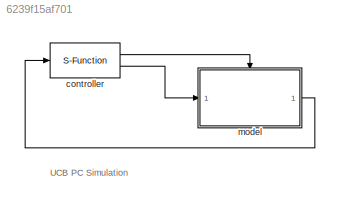
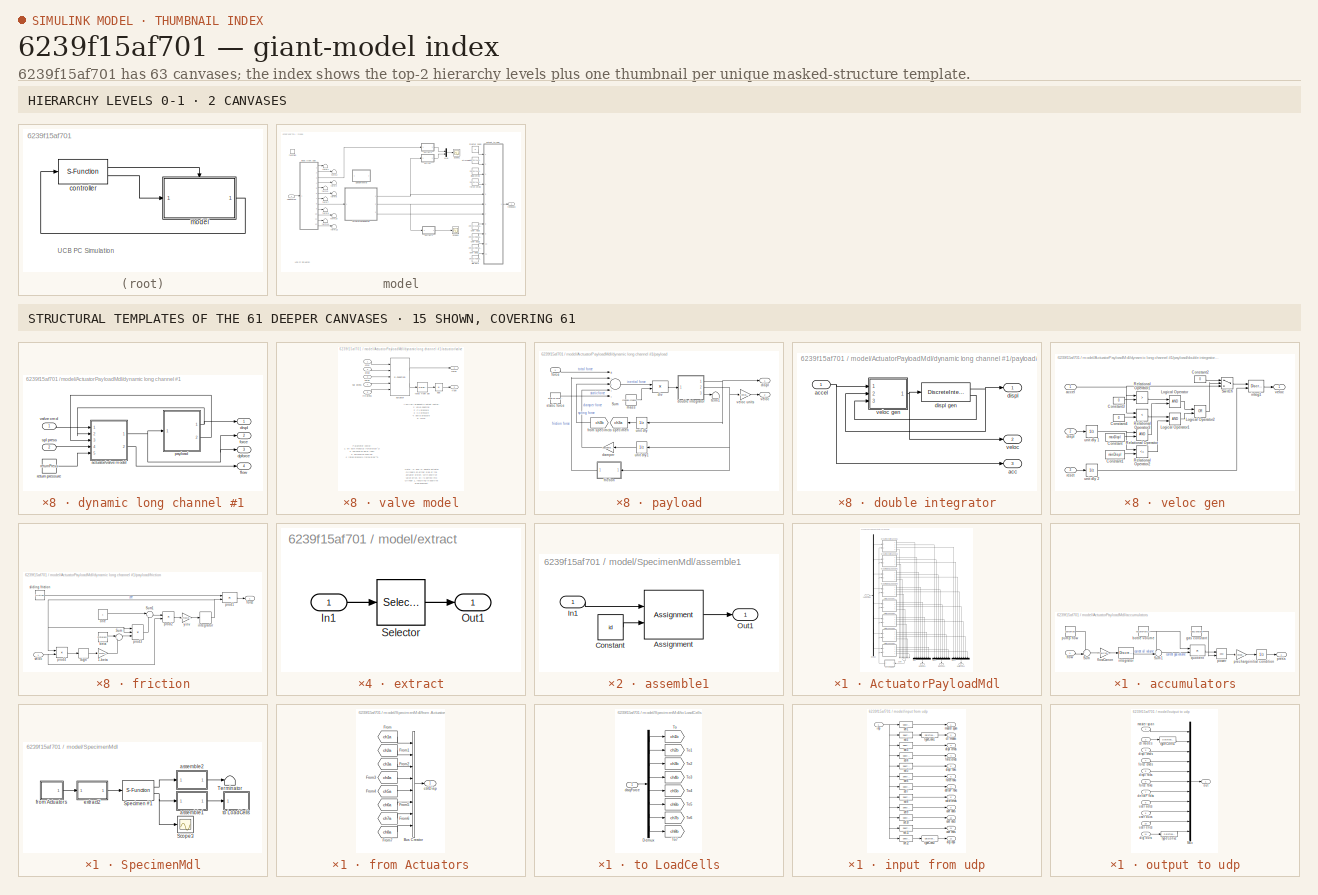
[diagram: thumbnail index - top-2 hierarchy levels (2 canvases) + 15 structural-template representatives of the remaining 61 canvases]
MODEL slx_6239f15af701
KIND model
CONFIG InitFcn = clear('all');\ninitializeSimulation;
CONFIG PreLoadFcn = initializeSimulation
BLOCK [S-Function] controller
  EnableBusSupport = off
  FunctionName = mtsConnect
  Parameters = '127.0.0.1',5002,nUDPInp,nUDPOut
  Ports = [1, 2]
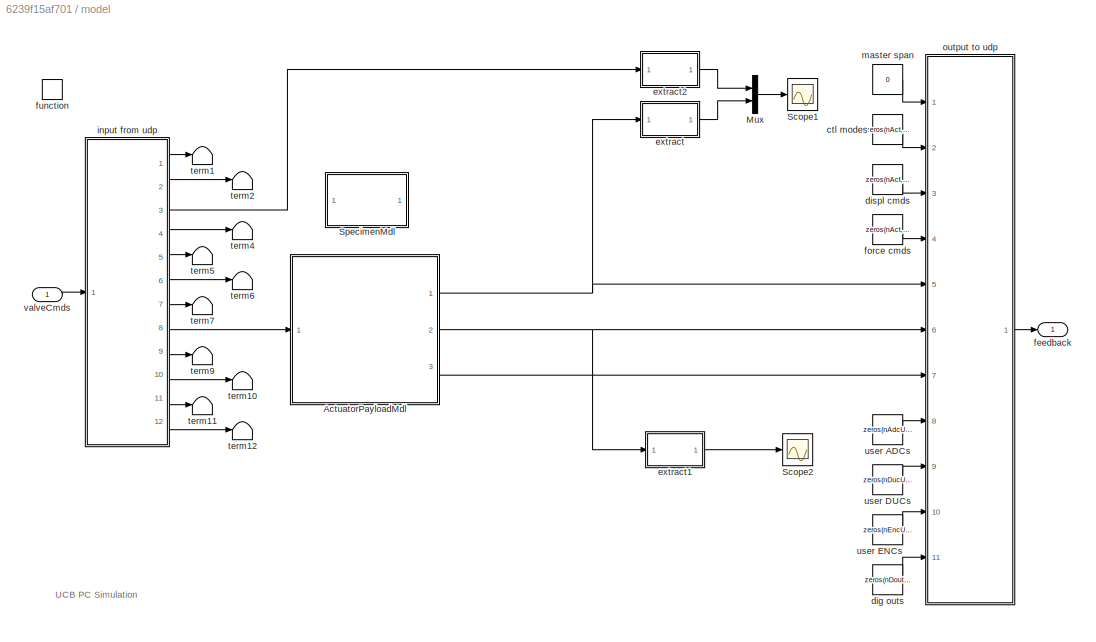
BLOCK [SubSystem] model
  Ports = [1, 1, 0, 1]
  RequestExecContextInheritance = off
  TreatAsAtomicUnit = on
BLOCK [SubSystem] model/ActuatorPayloadMdl
  Ports = [1, 3]
  RequestExecContextInheritance = off
BLOCK [Demux] model/ActuatorPayloadMdl/Demux
  Outputs = nAct
  Ports = [1, 8]
BLOCK [Mux] model/ActuatorPayloadMdl/Mux
  DisplayOption = bar
  Inputs = nAct
  Ports = [8, 1]
BLOCK [Mux] model/ActuatorPayloadMdl/Mux1
  DisplayOption = bar
  Inputs = nAct
  Ports = [8, 1]
BLOCK [Mux] model/ActuatorPayloadMdl/Mux2
  DisplayOption = bar
  Inputs = nAct
  Ports = [8, 1]
BLOCK [Sum] model/ActuatorPayloadMdl/Sum
  InputSameDT = off
  Inputs = ++++++++
  OutDataTypeStr = Inherit: Inherit via internal rule
  Ports = [8, 1]
BLOCK [SubSystem] model/ActuatorPayloadMdl/accumulators
  Ports = [1, 1]
  RequestExecContextInheritance = off
BLOCK [Sum] model/ActuatorPayloadMdl/accumulators/Sum
  IconShape = round
  Inputs = +-|
  Ports = [2, 1]
BLOCK [Sum] model/ActuatorPayloadMdl/accumulators/Sum1
  IconShape = round
  Inputs = +-|
  Ports = [2, 1]
BLOCK [Constant] model/ActuatorPayloadMdl/accumulators/bottle volume
  Value = volume*volumeCanon
BLOCK [Inport] model/ActuatorPayloadMdl/accumulators/flow
  IconDisplay = Port number
BLOCK [Gain] model/ActuatorPayloadMdl/accumulators/flowCanon
  Gain = flowCanon
BLOCK [Constant] model/ActuatorPayloadMdl/accumulators/gas constant
  Value = gasConstant
BLOCK [UnitDelay] model/ActuatorPayloadMdl/accumulators/initial condition
  InitialCondition = supplyPress
  SampleTime = -1
BLOCK [DiscreteIntegrator] model/ActuatorPayloadMdl/accumulators/integrator
  InitialCondition = maxOilVolume*volumeCanon
  LimitOutput = on
  LowerSaturationLimit = 0
  Ports = [1, 1]
  SampleTime = -1
  UpperSaturationLimit = maxOilVolume*volumeCanon
BLOCK [Math] model/ActuatorPayloadMdl/accumulators/power
  Operator = pow
  Ports = [2, 1]
BLOCK [Gain] model/ActuatorPayloadMdl/accumulators/precharge
  Gain = precharge
BLOCK [Outport] model/ActuatorPayloadMdl/accumulators/press
  IconDisplay = Port number
BLOCK [Constant] model/ActuatorPayloadMdl/accumulators/pump flow
  Value = pumpFlow
BLOCK [Product] model/ActuatorPayloadMdl/accumulators/quotient
  Inputs = */
  Ports = [2, 1]
  RndMeth = Floor
BLOCK [Outport] model/ActuatorPayloadMdl/deltaPFbks
  IconDisplay = Port number
  Port = 3
BLOCK [Outport] model/ActuatorPayloadMdl/displFbks
  IconDisplay = Port number
BLOCK [SubSystem] model/ActuatorPayloadMdl/dynamic long channel #1
  Ports = [2, 4]
  RequestExecContextInheritance = off
BLOCK [SubSystem] model/ActuatorPayloadMdl/dynamic long channel #1/actuator//valve model
  Ports = [5, 2]
  RequestExecContextInheritance = off
BLOCK [Abs] model/ActuatorPayloadMdl/dynamic long channel #1/actuator//valve model/abs
BLOCK [S-Function] model/ActuatorPayloadMdl/dynamic long channel #1/actuator//valve model/actuator
  EnableBusSupport = off
  FunctionName = actuator
  Parameters = actParamsB
  Ports = [5, 2]
BLOCK [Inport] model/ActuatorPayloadMdl/dynamic long channel #1/actuator//valve model/cmd
  IconDisplay = Port number
BLOCK [Inport] model/ActuatorPayloadMdl/dynamic long channel #1/actuator//valve model/displ
  IconDisplay = Port number
  Port = 2
BLOCK [Outport] model/ActuatorPayloadMdl/dynamic long channel #1/actuator//valve model/flow
  IconDisplay = Port number
  Port = 2
BLOCK [Outport] model/ActuatorPayloadMdl/dynamic long channel #1/actuator//valve model/force
  IconDisplay = Port number
BLOCK [Inport] model/ActuatorPayloadMdl/dynamic long channel #1/actuator//valve model/rtn press
  IconDisplay = Port number
  Port = 5
BLOCK [Inport] model/ActuatorPayloadMdl/dynamic long channel #1/actuator//valve model/spl press
  IconDisplay = Port number
  Port = 4
BLOCK [Selector] model/ActuatorPayloadMdl/dynamic long channel #1/actuator//valve model/total flow sel
  Indices = 9
  InputPortWidth = 12
  Ports = [1, 1]
BLOCK [Inport] model/ActuatorPayloadMdl/dynamic long channel #1/actuator//valve model/veloc
  IconDisplay = Port number
  Port = 3
BLOCK [Outport] model/ActuatorPayloadMdl/dynamic long channel #1/displ
  IconDisplay = Port number
BLOCK [Outport] model/ActuatorPayloadMdl/dynamic long channel #1/dpforce
  IconDisplay = Port number
  Port = 3
BLOCK [Outport] model/ActuatorPayloadMdl/dynamic long channel #1/flow
  IconDisplay = Port number
  Port = 4
BLOCK [Outport] model/ActuatorPayloadMdl/dynamic long channel #1/force
  IconDisplay = Port number
  Port = 2
BLOCK [SubSystem] model/ActuatorPayloadMdl/dynamic long channel #1/payload
  Ports = [1, 2]
  RequestExecContextInheritance = off
BLOCK [Sum] model/ActuatorPayloadMdl/dynamic long channel #1/payload/Sum
  Inputs = +----
  Ports = [5, 1]
BLOCK [Gain] model/ActuatorPayloadMdl/dynamic long channel #1/payload/damper
  Gain = damperB*damperCanon
BLOCK [Outport] model/ActuatorPayloadMdl/dynamic long channel #1/payload/displ
  IconDisplay = Port number
BLOCK [Product] model/ActuatorPayloadMdl/dynamic long channel #1/payload/div
  Inputs = */
  Ports = [2, 1]
  RndMeth = Floor
BLOCK [SubSystem] model/ActuatorPayloadMdl/dynamic long channel #1/payload/double integrator
  Ports = [1, 3]
  RequestExecContextInheritance = off
BLOCK [Outport] model/ActuatorPayloadMdl/dynamic long channel #1/payload/double integrator/acc
  IconDisplay = Port number
  Port = 3
BLOCK [Inport] model/ActuatorPayloadMdl/dynamic long channel #1/payload/double integrator/accel
  IconDisplay = Port number
BLOCK [Outport] model/ActuatorPayloadMdl/dynamic long channel #1/payload/double integrator/displ
  IconDisplay = Port number
BLOCK [DiscreteIntegrator] model/ActuatorPayloadMdl/dynamic long channel #1/payload/double integrator/displ gen
  IntegratorMethod = Integration: Backward Euler
  LimitOutput = on
  LowerSaturationLimit = minDisplB
  Ports = [1, 2]
  SampleTime = -1
  ShowSaturationPort = on
  UpperSaturationLimit = maxDisplB
BLOCK [Outport] model/ActuatorPayloadMdl/dynamic long channel #1/payload/double integrator/veloc
  IconDisplay = Port number
  Port = 2
BLOCK [SubSystem] model/ActuatorPayloadMdl/dynamic long channel #1/payload/double integrator/veloc gen
  Ports = [3, 1]
  RequestExecContextInheritance = off
BLOCK [Constant] model/ActuatorPayloadMdl/dynamic long channel #1/payload/double integrator/veloc gen/Constant
  Value = maxDispl
BLOCK [Constant] model/ActuatorPayloadMdl/dynamic long channel #1/payload/double integrator/veloc gen/Constant1
  Value = minDispl
BLOCK [Constant] model/ActuatorPayloadMdl/dynamic long channel #1/payload/double integrator/veloc gen/Constant2
  Value = 0
BLOCK [Constant] model/ActuatorPayloadMdl/dynamic long channel #1/payload/double integrator/veloc gen/Constant3
  Value = 0
BLOCK [Constant] model/ActuatorPayloadMdl/dynamic long channel #1/payload/double integrator/veloc gen/Constant4
  Value = 0
BLOCK [Logic] model/ActuatorPayloadMdl/dynamic long channel #1/payload/double integrator/veloc gen/Logical Operator
  Ports = [2, 1]
BLOCK [Logic] model/ActuatorPayloadMdl/dynamic long channel #1/payload/double integrator/veloc gen/Logical Operator1
  Ports = [2, 1]
BLOCK [Logic] model/ActuatorPayloadMdl/dynamic long channel #1/payload/double integrator/veloc gen/Logical Operator2
  Operator = OR
  Ports = [2, 1]
BLOCK [RelationalOperator] model/ActuatorPayloadMdl/dynamic long channel #1/payload/double integrator/veloc gen/Relational Operator
  Ports = [2, 1]
BLOCK [RelationalOperator] model/ActuatorPayloadMdl/dynamic long channel #1/payload/double integrator/veloc gen/Relational Operator1
  Operator = >
  Ports = [2, 1]
BLOCK [RelationalOperator] model/ActuatorPayloadMdl/dynamic long channel #1/payload/double integrator/veloc gen/Relational Operator2
  Operator = <=
  Ports = [2, 1]
BLOCK [RelationalOperator] model/ActuatorPayloadMdl/dynamic long channel #1/payload/double integrator/veloc gen/Relational Operator3
  Operator = <
  Ports = [2, 1]
BLOCK [Switch] model/ActuatorPayloadMdl/dynamic long channel #1/payload/double integrator/veloc gen/Switch
  Threshold = 0.5
BLOCK [Inport] model/ActuatorPayloadMdl/dynamic long channel #1/payload/double integrator/veloc gen/accel
  IconDisplay = Port number
BLOCK [Inport] model/ActuatorPayloadMdl/dynamic long channel #1/payload/double integrator/veloc gen/displ
  IconDisplay = Port number
  Port = 2
BLOCK [DiscreteIntegrator] model/ActuatorPayloadMdl/dynamic long channel #1/payload/double integrator/veloc gen/integ1
  ExternalReset = either
  IntegratorMethod = Integration: Backward Euler
  LimitOutput = on
  LowerSaturationLimit = minVeloc
  Ports = [2, 1]
  SampleTime = -1
  UpperSaturationLimit = maxVeloc
BLOCK [Inport] model/ActuatorPayloadMdl/dynamic long channel #1/payload/double integrator/veloc gen/reset
  IconDisplay = Port number
  Port = 3
BLOCK [UnitDelay] model/ActuatorPayloadMdl/dynamic long channel #1/payload/double integrator/veloc gen/unit dly 1
  SampleTime = -1
BLOCK [UnitDelay] model/ActuatorPayloadMdl/dynamic long channel #1/payload/double integrator/veloc gen/unit dly 2
  SampleTime = -1
BLOCK [Outport] model/ActuatorPayloadMdl/dynamic long channel #1/payload/double integrator/veloc gen/veloc
  IconDisplay = Port number
BLOCK [Inport] model/ActuatorPayloadMdl/dynamic long channel #1/payload/force
  IconDisplay = Port number
BLOCK [SubSystem] model/ActuatorPayloadMdl/dynamic long channel #1/payload/friction
  Ports = [1, 1]
  RequestExecContextInheritance = off
BLOCK [Gain] model/ActuatorPayloadMdl/dynamic long channel #1/payload/friction/1-beta
  Gain = 1-hysteresis
BLOCK [Signum] model/ActuatorPayloadMdl/dynamic long channel #1/payload/friction/Sign
BLOCK [Sum] model/ActuatorPayloadMdl/dynamic long channel #1/payload/friction/Sum
  IconShape = round
  InputSameDT = off
  Inputs = |++
  OutDataTypeStr = Inherit: Inherit via internal rule
  Ports = [2, 1]
BLOCK [Sum] model/ActuatorPayloadMdl/dynamic long channel #1/payload/friction/Sum1
  IconShape = round
  InputSameDT = off
  Inputs = |+-
  OutDataTypeStr = Inherit: Inherit via internal rule
  Ports = [2, 1]
BLOCK [Constant] model/ActuatorPayloadMdl/dynamic long channel #1/payload/friction/beta
  Value = hysteresis
BLOCK [Outport] model/ActuatorPayloadMdl/dynamic long channel #1/payload/friction/force
  IconDisplay = Port number
BLOCK [DiscreteIntegrator] model/ActuatorPayloadMdl/dynamic long channel #1/payload/friction/integrator
  LimitOutput = on
  LowerSaturationLimit = -1
  Ports = [1, 1]
  SampleTime = -1
  UpperSaturationLimit = 1
BLOCK [Constant] model/ActuatorPayloadMdl/dynamic long channel #1/payload/friction/one
BLOCK [Product] model/ActuatorPayloadMdl/dynamic long channel #1/payload/friction/prod1
  Ports = [2, 1]
  RndMeth = Floor
BLOCK [Product] model/ActuatorPayloadMdl/dynamic long channel #1/payload/friction/prod2
  Ports = [2, 1]
  RndMeth = Floor
BLOCK [Product] model/ActuatorPayloadMdl/dynamic long channel #1/payload/friction/prod3
  Inputs = 3
  Ports = [3, 1]
  RndMeth = Floor
BLOCK [Product] model/ActuatorPayloadMdl/dynamic long channel #1/payload/friction/prod4
  Ports = [2, 1]
  RndMeth = Floor
BLOCK [Constant] model/ActuatorPayloadMdl/dynamic long channel #1/payload/friction/sliding friction
  Value = friction
BLOCK [Inport] model/ActuatorPayloadMdl/dynamic long channel #1/payload/friction/veloc
  IconDisplay = Port number
BLOCK [Gain] model/ActuatorPayloadMdl/dynamic long channel #1/payload/friction/y inv
  Gain = 1/max(eps, yieldDispl)
BLOCK [From] model/ActuatorPayloadMdl/dynamic long channel #1/payload/from specimen
  GotoTag = ch3b
  TagVisibility = global
BLOCK [Constant] model/ActuatorPayloadMdl/dynamic long channel #1/payload/mass
  Value = massB*massCanon
BLOCK [Constant] model/ActuatorPayloadMdl/dynamic long channel #1/payload/static force
  Value = staticForceB*forceCanon
BLOCK [Terminator] model/ActuatorPayloadMdl/dynamic long channel #1/payload/term1
BLOCK [Goto] model/ActuatorPayloadMdl/dynamic long channel #1/payload/to specimen
  GotoTag = ch3a
  TagVisibility = global
BLOCK [UnitDelay] model/ActuatorPayloadMdl/dynamic long channel #1/payload/unit dly
  SampleTime = -1
BLOCK [UnitDelay] model/ActuatorPayloadMdl/dynamic long channel #1/payload/unit dly1
  SampleTime = -1
BLOCK [Outport] model/ActuatorPayloadMdl/dynamic long channel #1/payload/veloc
  IconDisplay = Port number
  Port = 2
BLOCK [Gain] model/ActuatorPayloadMdl/dynamic long channel #1/payload/veloc units
  Gain = 1/velocCanon
BLOCK [Constant] model/ActuatorPayloadMdl/dynamic long channel #1/return pressure
  Value = returnPress
BLOCK [Inport] model/ActuatorPayloadMdl/dynamic long channel #1/spl press
  IconDisplay = Port number
  Port = 2
BLOCK [Inport] model/ActuatorPayloadMdl/dynamic long channel #1/valve cmd
  IconDisplay = Port number
BLOCK [SubSystem] model/ActuatorPayloadMdl/dynamic long channel #2
  Ports = [2, 4]
  RequestExecContextInheritance = off
BLOCK [SubSystem] model/ActuatorPayloadMdl/dynamic long channel #2/actuator//valve model
  Ports = [5, 2]
  RequestExecContextInheritance = off
BLOCK [Abs] model/ActuatorPayloadMdl/dynamic long channel #2/actuator//valve model/abs
BLOCK [S-Function] model/ActuatorPayloadMdl/dynamic long channel #2/actuator//valve model/actuator
  EnableBusSupport = off
  FunctionName = actuator
  Parameters = actParamsB
  Ports = [5, 2]
BLOCK [Inport] model/ActuatorPayloadMdl/dynamic long channel #2/actuator//valve model/cmd
  IconDisplay = Port number
BLOCK [Inport] model/ActuatorPayloadMdl/dynamic long channel #2/actuator//valve model/displ
  IconDisplay = Port number
  Port = 2
BLOCK [Outport] model/ActuatorPayloadMdl/dynamic long channel #2/actuator//valve model/flow
  IconDisplay = Port number
  Port = 2
BLOCK [Outport] model/ActuatorPayloadMdl/dynamic long channel #2/actuator//valve model/force
  IconDisplay = Port number
BLOCK [Inport] model/ActuatorPayloadMdl/dynamic long channel #2/actuator//valve model/rtn press
  IconDisplay = Port number
  Port = 5
BLOCK [Inport] model/ActuatorPayloadMdl/dynamic long channel #2/actuator//valve model/spl press
  IconDisplay = Port number
  Port = 4
BLOCK [Selector] model/ActuatorPayloadMdl/dynamic long channel #2/actuator//valve model/total flow sel
  Indices = 9
  InputPortWidth = 12
  Ports = [1, 1]
BLOCK [Inport] model/ActuatorPayloadMdl/dynamic long channel #2/actuator//valve model/veloc
  IconDisplay = Port number
  Port = 3
BLOCK [Outport] model/ActuatorPayloadMdl/dynamic long channel #2/displ
  IconDisplay = Port number
BLOCK [Outport] model/ActuatorPayloadMdl/dynamic long channel #2/dpforce
  IconDisplay = Port number
  Port = 3
BLOCK [Outport] model/ActuatorPayloadMdl/dynamic long channel #2/flow
  IconDisplay = Port number
  Port = 4
BLOCK [Outport] model/ActuatorPayloadMdl/dynamic long channel #2/force
  IconDisplay = Port number
  Port = 2
BLOCK [SubSystem] model/ActuatorPayloadMdl/dynamic long channel #2/payload
  Ports = [1, 2]
  RequestExecContextInheritance = off
BLOCK [Sum] model/ActuatorPayloadMdl/dynamic long channel #2/payload/Sum
  Inputs = +----
  Ports = [5, 1]
BLOCK [Gain] model/ActuatorPayloadMdl/dynamic long channel #2/payload/damper
  Gain = damperB*damperCanon
BLOCK [Outport] model/ActuatorPayloadMdl/dynamic long channel #2/payload/displ
  IconDisplay = Port number
BLOCK [Product] model/ActuatorPayloadMdl/dynamic long channel #2/payload/div
  Inputs = */
  Ports = [2, 1]
  RndMeth = Floor
BLOCK [SubSystem] model/ActuatorPayloadMdl/dynamic long channel #2/payload/double integrator
  Ports = [1, 3]
  RequestExecContextInheritance = off
BLOCK [Outport] model/ActuatorPayloadMdl/dynamic long channel #2/payload/double integrator/acc
  IconDisplay = Port number
  Port = 3
BLOCK [Inport] model/ActuatorPayloadMdl/dynamic long channel #2/payload/double integrator/accel
  IconDisplay = Port number
BLOCK [Outport] model/ActuatorPayloadMdl/dynamic long channel #2/payload/double integrator/displ
  IconDisplay = Port number
BLOCK [DiscreteIntegrator] model/ActuatorPayloadMdl/dynamic long channel #2/payload/double integrator/displ gen
  IntegratorMethod = Integration: Backward Euler
  LimitOutput = on
  LowerSaturationLimit = minDisplB
  Ports = [1, 2]
  SampleTime = -1
  ShowSaturationPort = on
  UpperSaturationLimit = maxDisplB
BLOCK [Outport] model/ActuatorPayloadMdl/dynamic long channel #2/payload/double integrator/veloc
  IconDisplay = Port number
  Port = 2
BLOCK [SubSystem] model/ActuatorPayloadMdl/dynamic long channel #2/payload/double integrator/veloc gen
  Ports = [3, 1]
  RequestExecContextInheritance = off
BLOCK [Constant] model/ActuatorPayloadMdl/dynamic long channel #2/payload/double integrator/veloc gen/Constant
  Value = maxDispl
BLOCK [Constant] model/ActuatorPayloadMdl/dynamic long channel #2/payload/double integrator/veloc gen/Constant1
  Value = minDispl
BLOCK [Constant] model/ActuatorPayloadMdl/dynamic long channel #2/payload/double integrator/veloc gen/Constant2
  Value = 0
BLOCK [Constant] model/ActuatorPayloadMdl/dynamic long channel #2/payload/double integrator/veloc gen/Constant3
  Value = 0
BLOCK [Constant] model/ActuatorPayloadMdl/dynamic long channel #2/payload/double integrator/veloc gen/Constant4
  Value = 0
BLOCK [Logic] model/ActuatorPayloadMdl/dynamic long channel #2/payload/double integrator/veloc gen/Logical Operator
  Ports = [2, 1]
BLOCK [Logic] model/ActuatorPayloadMdl/dynamic long channel #2/payload/double integrator/veloc gen/Logical Operator1
  Ports = [2, 1]
BLOCK [Logic] model/ActuatorPayloadMdl/dynamic long channel #2/payload/double integrator/veloc gen/Logical Operator2
  Operator = OR
  Ports = [2, 1]
BLOCK [RelationalOperator] model/ActuatorPayloadMdl/dynamic long channel #2/payload/double integrator/veloc gen/Relational Operator
  Ports = [2, 1]
BLOCK [RelationalOperator] model/ActuatorPayloadMdl/dynamic long channel #2/payload/double integrator/veloc gen/Relational Operator1
  Operator = >
  Ports = [2, 1]
BLOCK [RelationalOperator] model/ActuatorPayloadMdl/dynamic long channel #2/payload/double integrator/veloc gen/Relational Operator2
  Operator = <=
  Ports = [2, 1]
BLOCK [RelationalOperator] model/ActuatorPayloadMdl/dynamic long channel #2/payload/double integrator/veloc gen/Relational Operator3
  Operator = <
  Ports = [2, 1]
BLOCK [Switch] model/ActuatorPayloadMdl/dynamic long channel #2/payload/double integrator/veloc gen/Switch
  Threshold = 0.5
BLOCK [Inport] model/ActuatorPayloadMdl/dynamic long channel #2/payload/double integrator/veloc gen/accel
  IconDisplay = Port number
BLOCK [Inport] model/ActuatorPayloadMdl/dynamic long channel #2/payload/double integrator/veloc gen/displ
  IconDisplay = Port number
  Port = 2
BLOCK [DiscreteIntegrator] model/ActuatorPayloadMdl/dynamic long channel #2/payload/double integrator/veloc gen/integ1
  ExternalReset = either
  IntegratorMethod = Integration: Backward Euler
  LimitOutput = on
  LowerSaturationLimit = minVeloc
  Ports = [2, 1]
  SampleTime = -1
  UpperSaturationLimit = maxVeloc
BLOCK [Inport] model/ActuatorPayloadMdl/dynamic long channel #2/payload/double integrator/veloc gen/reset
  IconDisplay = Port number
  Port = 3
BLOCK [UnitDelay] model/ActuatorPayloadMdl/dynamic long channel #2/payload/double integrator/veloc gen/unit dly 1
  SampleTime = -1
BLOCK [UnitDelay] model/ActuatorPayloadMdl/dynamic long channel #2/payload/double integrator/veloc gen/unit dly 2
  SampleTime = -1
BLOCK [Outport] model/ActuatorPayloadMdl/dynamic long channel #2/payload/double integrator/veloc gen/veloc
  IconDisplay = Port number
BLOCK [Inport] model/ActuatorPayloadMdl/dynamic long channel #2/payload/force
  IconDisplay = Port number
BLOCK [SubSystem] model/ActuatorPayloadMdl/dynamic long channel #2/payload/friction
  Ports = [1, 1]
  RequestExecContextInheritance = off
BLOCK [Gain] model/ActuatorPayloadMdl/dynamic long channel #2/payload/friction/1-beta
  Gain = 1-hysteresis
BLOCK [Signum] model/ActuatorPayloadMdl/dynamic long channel #2/payload/friction/Sign
BLOCK [Sum] model/ActuatorPayloadMdl/dynamic long channel #2/payload/friction/Sum
  IconShape = round
  InputSameDT = off
  Inputs = |++
  OutDataTypeStr = Inherit: Inherit via internal rule
  Ports = [2, 1]
BLOCK [Sum] model/ActuatorPayloadMdl/dynamic long channel #2/payload/friction/Sum1
  IconShape = round
  InputSameDT = off
  Inputs = |+-
  OutDataTypeStr = Inherit: Inherit via internal rule
  Ports = [2, 1]
BLOCK [Constant] model/ActuatorPayloadMdl/dynamic long channel #2/payload/friction/beta
  Value = hysteresis
BLOCK [Outport] model/ActuatorPayloadMdl/dynamic long channel #2/payload/friction/force
  IconDisplay = Port number
BLOCK [DiscreteIntegrator] model/ActuatorPayloadMdl/dynamic long channel #2/payload/friction/integrator
  LimitOutput = on
  LowerSaturationLimit = -1
  Ports = [1, 1]
  SampleTime = -1
  UpperSaturationLimit = 1
BLOCK [Constant] model/ActuatorPayloadMdl/dynamic long channel #2/payload/friction/one
BLOCK [Product] model/ActuatorPayloadMdl/dynamic long channel #2/payload/friction/prod1
  Ports = [2, 1]
  RndMeth = Floor
BLOCK [Product] model/ActuatorPayloadMdl/dynamic long channel #2/payload/friction/prod2
  Ports = [2, 1]
  RndMeth = Floor
BLOCK [Product] model/ActuatorPayloadMdl/dynamic long channel #2/payload/friction/prod3
  Inputs = 3
  Ports = [3, 1]
  RndMeth = Floor
BLOCK [Product] model/ActuatorPayloadMdl/dynamic long channel #2/payload/friction/prod4
  Ports = [2, 1]
  RndMeth = Floor
BLOCK [Constant] model/ActuatorPayloadMdl/dynamic long channel #2/payload/friction/sliding friction
  Value = friction
BLOCK [Inport] model/ActuatorPayloadMdl/dynamic long channel #2/payload/friction/veloc
  IconDisplay = Port number
BLOCK [Gain] model/ActuatorPayloadMdl/dynamic long channel #2/payload/friction/y inv
  Gain = 1/max(eps, yieldDispl)
BLOCK [From] model/ActuatorPayloadMdl/dynamic long channel #2/payload/from specimen
  GotoTag = ch4b
  TagVisibility = global
BLOCK [Constant] model/ActuatorPayloadMdl/dynamic long channel #2/payload/mass
  Value = massB*massCanon
BLOCK [Constant] model/ActuatorPayloadMdl/dynamic long channel #2/payload/static force
  Value = staticForceB*forceCanon
BLOCK [Terminator] model/ActuatorPayloadMdl/dynamic long channel #2/payload/term1
BLOCK [Goto] model/ActuatorPayloadMdl/dynamic long channel #2/payload/to specimen
  GotoTag = ch4a
  TagVisibility = global
BLOCK [UnitDelay] model/ActuatorPayloadMdl/dynamic long channel #2/payload/unit dly
  SampleTime = -1
BLOCK [UnitDelay] model/ActuatorPayloadMdl/dynamic long channel #2/payload/unit dly1
  SampleTime = -1
BLOCK [Outport] model/ActuatorPayloadMdl/dynamic long channel #2/payload/veloc
  IconDisplay = Port number
  Port = 2
BLOCK [Gain] model/ActuatorPayloadMdl/dynamic long channel #2/payload/veloc units
  Gain = 1/velocCanon
BLOCK [Constant] model/ActuatorPayloadMdl/dynamic long channel #2/return pressure
  Value = returnPress
BLOCK [Inport] model/ActuatorPayloadMdl/dynamic long channel #2/spl press
  IconDisplay = Port number
  Port = 2
BLOCK [Inport] model/ActuatorPayloadMdl/dynamic long channel #2/valve cmd
  IconDisplay = Port number
BLOCK [SubSystem] model/ActuatorPayloadMdl/dynamic short channel #1
  Ports = [2, 4]
  RequestExecContextInheritance = off
BLOCK [SubSystem] model/ActuatorPayloadMdl/dynamic short channel #1/actuator//valve model
  Ports = [5, 2]
  RequestExecContextInheritance = off
BLOCK [Abs] model/ActuatorPayloadMdl/dynamic short channel #1/actuator//valve model/abs
BLOCK [S-Function] model/ActuatorPayloadMdl/dynamic short channel #1/actuator//valve model/actuator
  EnableBusSupport = off
  FunctionName = actuator
  Parameters = actParamsA
  Ports = [5, 2]
BLOCK [Inport] model/ActuatorPayloadMdl/dynamic short channel #1/actuator//valve model/cmd
  IconDisplay = Port number
BLOCK [Inport] model/ActuatorPayloadMdl/dynamic short channel #1/actuator//valve model/displ
  IconDisplay = Port number
  Port = 2
BLOCK [Outport] model/ActuatorPayloadMdl/dynamic short channel #1/actuator//valve model/flow
  IconDisplay = Port number
  Port = 2
BLOCK [Outport] model/ActuatorPayloadMdl/dynamic short channel #1/actuator//valve model/force
  IconDisplay = Port number
BLOCK [Inport] model/ActuatorPayloadMdl/dynamic short channel #1/actuator//valve model/rtn press
  IconDisplay = Port number
  Port = 5
BLOCK [Inport] model/ActuatorPayloadMdl/dynamic short channel #1/actuator//valve model/spl press
  IconDisplay = Port number
  Port = 4
BLOCK [Selector] model/ActuatorPayloadMdl/dynamic short channel #1/actuator//valve model/total flow sel
  Indices = 9
  InputPortWidth = 12
  Ports = [1, 1]
BLOCK [Inport] model/ActuatorPayloadMdl/dynamic short channel #1/actuator//valve model/veloc
  IconDisplay = Port number
  Port = 3
BLOCK [Outport] model/ActuatorPayloadMdl/dynamic short channel #1/displ
  IconDisplay = Port number
BLOCK [Outport] model/ActuatorPayloadMdl/dynamic short channel #1/dpforce
  IconDisplay = Port number
  Port = 3
BLOCK [Outport] model/ActuatorPayloadMdl/dynamic short channel #1/flow
  IconDisplay = Port number
  Port = 4
BLOCK [Outport] model/ActuatorPayloadMdl/dynamic short channel #1/force
  IconDisplay = Port number
  Port = 2
BLOCK [SubSystem] model/ActuatorPayloadMdl/dynamic short channel #1/payload
  Ports = [1, 2]
  RequestExecContextInheritance = off
BLOCK [Sum] model/ActuatorPayloadMdl/dynamic short channel #1/payload/Sum
  Inputs = +----
  Ports = [5, 1]
BLOCK [Gain] model/ActuatorPayloadMdl/dynamic short channel #1/payload/damper
  Gain = damperA*damperCanon
BLOCK [Outport] model/ActuatorPayloadMdl/dynamic short channel #1/payload/displ
  IconDisplay = Port number
BLOCK [Product] model/ActuatorPayloadMdl/dynamic short channel #1/payload/div
  Inputs = */
  Ports = [2, 1]
  RndMeth = Floor
BLOCK [SubSystem] model/ActuatorPayloadMdl/dynamic short channel #1/payload/double integrator
  Ports = [1, 3]
  RequestExecContextInheritance = off
BLOCK [Outport] model/ActuatorPayloadMdl/dynamic short channel #1/payload/double integrator/acc
  IconDisplay = Port number
  Port = 3
BLOCK [Inport] model/ActuatorPayloadMdl/dynamic short channel #1/payload/double integrator/accel
  IconDisplay = Port number
BLOCK [Outport] model/ActuatorPayloadMdl/dynamic short channel #1/payload/double integrator/displ
  IconDisplay = Port number
BLOCK [DiscreteIntegrator] model/ActuatorPayloadMdl/dynamic short channel #1/payload/double integrator/displ gen
  IntegratorMethod = Integration: Backward Euler
  LimitOutput = on
  LowerSaturationLimit = minDisplA
  Ports = [1, 2]
  SampleTime = -1
  ShowSaturationPort = on
  UpperSaturationLimit = maxDisplA
BLOCK [Outport] model/ActuatorPayloadMdl/dynamic short channel #1/payload/double integrator/veloc
  IconDisplay = Port number
  Port = 2
BLOCK [SubSystem] model/ActuatorPayloadMdl/dynamic short channel #1/payload/double integrator/veloc gen
  Ports = [3, 1]
  RequestExecContextInheritance = off
BLOCK [Constant] model/ActuatorPayloadMdl/dynamic short channel #1/payload/double integrator/veloc gen/Constant
  Value = maxDispl
BLOCK [Constant] model/ActuatorPayloadMdl/dynamic short channel #1/payload/double integrator/veloc gen/Constant1
  Value = minDispl
BLOCK [Constant] model/ActuatorPayloadMdl/dynamic short channel #1/payload/double integrator/veloc gen/Constant2
  Value = 0
BLOCK [Constant] model/ActuatorPayloadMdl/dynamic short channel #1/payload/double integrator/veloc gen/Constant3
  Value = 0
BLOCK [Constant] model/ActuatorPayloadMdl/dynamic short channel #1/payload/double integrator/veloc gen/Constant4
  Value = 0
BLOCK [Logic] model/ActuatorPayloadMdl/dynamic short channel #1/payload/double integrator/veloc gen/Logical Operator
  Ports = [2, 1]
BLOCK [Logic] model/ActuatorPayloadMdl/dynamic short channel #1/payload/double integrator/veloc gen/Logical Operator1
  Ports = [2, 1]
BLOCK [Logic] model/ActuatorPayloadMdl/dynamic short channel #1/payload/double integrator/veloc gen/Logical Operator2
  Operator = OR
  Ports = [2, 1]
BLOCK [RelationalOperator] model/ActuatorPayloadMdl/dynamic short channel #1/payload/double integrator/veloc gen/Relational Operator
  Ports = [2, 1]
BLOCK [RelationalOperator] model/ActuatorPayloadMdl/dynamic short channel #1/payload/double integrator/veloc gen/Relational Operator1
  Operator = >
  Ports = [2, 1]
BLOCK [RelationalOperator] model/ActuatorPayloadMdl/dynamic short channel #1/payload/double integrator/veloc gen/Relational Operator2
  Operator = <=
  Ports = [2, 1]
BLOCK [RelationalOperator] model/ActuatorPayloadMdl/dynamic short channel #1/payload/double integrator/veloc gen/Relational Operator3
  Operator = <
  Ports = [2, 1]
BLOCK [Switch] model/ActuatorPayloadMdl/dynamic short channel #1/payload/double integrator/veloc gen/Switch
  Threshold = 0.5
BLOCK [Inport] model/ActuatorPayloadMdl/dynamic short channel #1/payload/double integrator/veloc gen/accel
  IconDisplay = Port number
BLOCK [Inport] model/ActuatorPayloadMdl/dynamic short channel #1/payload/double integrator/veloc gen/displ
  IconDisplay = Port number
  Port = 2
BLOCK [DiscreteIntegrator] model/ActuatorPayloadMdl/dynamic short channel #1/payload/double integrator/veloc gen/integ1
  ExternalReset = either
  IntegratorMethod = Integration: Backward Euler
  LimitOutput = on
  LowerSaturationLimit = minVeloc
  Ports = [2, 1]
  SampleTime = -1
  UpperSaturationLimit = maxVeloc
BLOCK [Inport] model/ActuatorPayloadMdl/dynamic short channel #1/payload/double integrator/veloc gen/reset
  IconDisplay = Port number
  Port = 3
BLOCK [UnitDelay] model/ActuatorPayloadMdl/dynamic short channel #1/payload/double integrator/veloc gen/unit dly 1
  SampleTime = -1
BLOCK [UnitDelay] model/ActuatorPayloadMdl/dynamic short channel #1/payload/double integrator/veloc gen/unit dly 2
  SampleTime = -1
BLOCK [Outport] model/ActuatorPayloadMdl/dynamic short channel #1/payload/double integrator/veloc gen/veloc
  IconDisplay = Port number
BLOCK [Inport] model/ActuatorPayloadMdl/dynamic short channel #1/payload/force
  IconDisplay = Port number
BLOCK [SubSystem] model/ActuatorPayloadMdl/dynamic short channel #1/payload/friction
  Ports = [1, 1]
  RequestExecContextInheritance = off
BLOCK [Gain] model/ActuatorPayloadMdl/dynamic short channel #1/payload/friction/1-beta
  Gain = 1-hysteresis
BLOCK [Signum] model/ActuatorPayloadMdl/dynamic short channel #1/payload/friction/Sign
BLOCK [Sum] model/ActuatorPayloadMdl/dynamic short channel #1/payload/friction/Sum
  IconShape = round
  InputSameDT = off
  Inputs = |++
  OutDataTypeStr = Inherit: Inherit via internal rule
  Ports = [2, 1]
BLOCK [Sum] model/ActuatorPayloadMdl/dynamic short channel #1/payload/friction/Sum1
  IconShape = round
  InputSameDT = off
  Inputs = |+-
  OutDataTypeStr = Inherit: Inherit via internal rule
  Ports = [2, 1]
BLOCK [Constant] model/ActuatorPayloadMdl/dynamic short channel #1/payload/friction/beta
  Value = hysteresis
BLOCK [Outport] model/ActuatorPayloadMdl/dynamic short channel #1/payload/friction/force
  IconDisplay = Port number
BLOCK [DiscreteIntegrator] model/ActuatorPayloadMdl/dynamic short channel #1/payload/friction/integrator
  LimitOutput = on
  LowerSaturationLimit = -1
  Ports = [1, 1]
  SampleTime = -1
  UpperSaturationLimit = 1
BLOCK [Constant] model/ActuatorPayloadMdl/dynamic short channel #1/payload/friction/one
BLOCK [Product] model/ActuatorPayloadMdl/dynamic short channel #1/payload/friction/prod1
  Ports = [2, 1]
  RndMeth = Floor
BLOCK [Product] model/ActuatorPayloadMdl/dynamic short channel #1/payload/friction/prod2
  Ports = [2, 1]
  RndMeth = Floor
BLOCK [Product] model/ActuatorPayloadMdl/dynamic short channel #1/payload/friction/prod3
  Inputs = 3
  Ports = [3, 1]
  RndMeth = Floor
BLOCK [Product] model/ActuatorPayloadMdl/dynamic short channel #1/payload/friction/prod4
  Ports = [2, 1]
  RndMeth = Floor
BLOCK [Constant] model/ActuatorPayloadMdl/dynamic short channel #1/payload/friction/sliding friction
  Value = friction
BLOCK [Inport] model/ActuatorPayloadMdl/dynamic short channel #1/payload/friction/veloc
  IconDisplay = Port number
BLOCK [Gain] model/ActuatorPayloadMdl/dynamic short channel #1/payload/friction/y inv
  Gain = 1/max(eps, yieldDispl)
BLOCK [From] model/ActuatorPayloadMdl/dynamic short channel #1/payload/from specimen
  GotoTag = ch1b
  TagVisibility = global
BLOCK [Constant] model/ActuatorPayloadMdl/dynamic short channel #1/payload/mass
  Value = massA*massCanon
BLOCK [Constant] model/ActuatorPayloadMdl/dynamic short channel #1/payload/static force
  Value = staticForceA*forceCanon
BLOCK [Terminator] model/ActuatorPayloadMdl/dynamic short channel #1/payload/term1
BLOCK [Goto] model/ActuatorPayloadMdl/dynamic short channel #1/payload/to specimen
  GotoTag = ch1a
  TagVisibility = global
BLOCK [UnitDelay] model/ActuatorPayloadMdl/dynamic short channel #1/payload/unit dly
  SampleTime = -1
BLOCK [UnitDelay] model/ActuatorPayloadMdl/dynamic short channel #1/payload/unit dly1
  SampleTime = -1
BLOCK [Outport] model/ActuatorPayloadMdl/dynamic short channel #1/payload/veloc
  IconDisplay = Port number
  Port = 2
BLOCK [Gain] model/ActuatorPayloadMdl/dynamic short channel #1/payload/veloc units
  Gain = 1/velocCanon
BLOCK [Constant] model/ActuatorPayloadMdl/dynamic short channel #1/return pressure
  Value = returnPress
BLOCK [Inport] model/ActuatorPayloadMdl/dynamic short channel #1/spl press
  IconDisplay = Port number
  Port = 2
BLOCK [Inport] model/ActuatorPayloadMdl/dynamic short channel #1/valve cmd
  IconDisplay = Port number
BLOCK [SubSystem] model/ActuatorPayloadMdl/dynamic short channel #2
  Ports = [2, 4]
  RequestExecContextInheritance = off
BLOCK [SubSystem] model/ActuatorPayloadMdl/dynamic short channel #2/actuator//valve model
  Ports = [5, 2]
  RequestExecContextInheritance = off
BLOCK [Abs] model/ActuatorPayloadMdl/dynamic short channel #2/actuator//valve model/abs
BLOCK [S-Function] model/ActuatorPayloadMdl/dynamic short channel #2/actuator//valve model/actuator
  EnableBusSupport = off
  FunctionName = actuator
  Parameters = actParamsA
  Ports = [5, 2]
BLOCK [Inport] model/ActuatorPayloadMdl/dynamic short channel #2/actuator//valve model/cmd
  IconDisplay = Port number
BLOCK [Inport] model/ActuatorPayloadMdl/dynamic short channel #2/actuator//valve model/displ
  IconDisplay = Port number
  Port = 2
BLOCK [Outport] model/ActuatorPayloadMdl/dynamic short channel #2/actuator//valve model/flow
  IconDisplay = Port number
  Port = 2
BLOCK [Outport] model/ActuatorPayloadMdl/dynamic short channel #2/actuator//valve model/force
  IconDisplay = Port number
BLOCK [Inport] model/ActuatorPayloadMdl/dynamic short channel #2/actuator//valve model/rtn press
  IconDisplay = Port number
  Port = 5
BLOCK [Inport] model/ActuatorPayloadMdl/dynamic short channel #2/actuator//valve model/spl press
  IconDisplay = Port number
  Port = 4
BLOCK [Selector] model/ActuatorPayloadMdl/dynamic short channel #2/actuator//valve model/total flow sel
  Indices = 9
  InputPortWidth = 12
  Ports = [1, 1]
BLOCK [Inport] model/ActuatorPayloadMdl/dynamic short channel #2/actuator//valve model/veloc
  IconDisplay = Port number
  Port = 3
BLOCK [Outport] model/ActuatorPayloadMdl/dynamic short channel #2/displ
  IconDisplay = Port number
BLOCK [Outport] model/ActuatorPayloadMdl/dynamic short channel #2/dpforce
  IconDisplay = Port number
  Port = 3
BLOCK [Outport] model/ActuatorPayloadMdl/dynamic short channel #2/flow
  IconDisplay = Port number
  Port = 4
BLOCK [Outport] model/ActuatorPayloadMdl/dynamic short channel #2/force
  IconDisplay = Port number
  Port = 2
BLOCK [SubSystem] model/ActuatorPayloadMdl/dynamic short channel #2/payload
  Ports = [1, 2]
  RequestExecContextInheritance = off
BLOCK [Sum] model/ActuatorPayloadMdl/dynamic short channel #2/payload/Sum
  Inputs = +----
  Ports = [5, 1]
BLOCK [Gain] model/ActuatorPayloadMdl/dynamic short channel #2/payload/damper
  Gain = damperA*damperCanon
BLOCK [Outport] model/ActuatorPayloadMdl/dynamic short channel #2/payload/displ
  IconDisplay = Port number
BLOCK [Product] model/ActuatorPayloadMdl/dynamic short channel #2/payload/div
  Inputs = */
  Ports = [2, 1]
  RndMeth = Floor
BLOCK [SubSystem] model/ActuatorPayloadMdl/dynamic short channel #2/payload/double integrator
  Ports = [1, 3]
  RequestExecContextInheritance = off
BLOCK [Outport] model/ActuatorPayloadMdl/dynamic short channel #2/payload/double integrator/acc
  IconDisplay = Port number
  Port = 3
BLOCK [Inport] model/ActuatorPayloadMdl/dynamic short channel #2/payload/double integrator/accel
  IconDisplay = Port number
BLOCK [Outport] model/ActuatorPayloadMdl/dynamic short channel #2/payload/double integrator/displ
  IconDisplay = Port number
BLOCK [DiscreteIntegrator] model/ActuatorPayloadMdl/dynamic short channel #2/payload/double integrator/displ gen
  IntegratorMethod = Integration: Backward Euler
  LimitOutput = on
  LowerSaturationLimit = minDisplA
  Ports = [1, 2]
  SampleTime = -1
  ShowSaturationPort = on
  UpperSaturationLimit = maxDisplA
BLOCK [Outport] model/ActuatorPayloadMdl/dynamic short channel #2/payload/double integrator/veloc
  IconDisplay = Port number
  Port = 2
BLOCK [SubSystem] model/ActuatorPayloadMdl/dynamic short channel #2/payload/double integrator/veloc gen
  Ports = [3, 1]
  RequestExecContextInheritance = off
BLOCK [Constant] model/ActuatorPayloadMdl/dynamic short channel #2/payload/double integrator/veloc gen/Constant
  Value = maxDispl
BLOCK [Constant] model/ActuatorPayloadMdl/dynamic short channel #2/payload/double integrator/veloc gen/Constant1
  Value = minDispl
BLOCK [Constant] model/ActuatorPayloadMdl/dynamic short channel #2/payload/double integrator/veloc gen/Constant2
  Value = 0
BLOCK [Constant] model/ActuatorPayloadMdl/dynamic short channel #2/payload/double integrator/veloc gen/Constant3
  Value = 0
BLOCK [Constant] model/ActuatorPayloadMdl/dynamic short channel #2/payload/double integrator/veloc gen/Constant4
  Value = 0
BLOCK [Logic] model/ActuatorPayloadMdl/dynamic short channel #2/payload/double integrator/veloc gen/Logical Operator
  Ports = [2, 1]
BLOCK [Logic] model/ActuatorPayloadMdl/dynamic short channel #2/payload/double integrator/veloc gen/Logical Operator1
  Ports = [2, 1]
BLOCK [Logic] model/ActuatorPayloadMdl/dynamic short channel #2/payload/double integrator/veloc gen/Logical Operator2
  Operator = OR
  Ports = [2, 1]
BLOCK [RelationalOperator] model/ActuatorPayloadMdl/dynamic short channel #2/payload/double integrator/veloc gen/Relational Operator
  Ports = [2, 1]
BLOCK [RelationalOperator] model/ActuatorPayloadMdl/dynamic short channel #2/payload/double integrator/veloc gen/Relational Operator1
  Operator = >
  Ports = [2, 1]
BLOCK [RelationalOperator] model/ActuatorPayloadMdl/dynamic short channel #2/payload/double integrator/veloc gen/Relational Operator2
  Operator = <=
  Ports = [2, 1]
BLOCK [RelationalOperator] model/ActuatorPayloadMdl/dynamic short channel #2/payload/double integrator/veloc gen/Relational Operator3
  Operator = <
  Ports = [2, 1]
BLOCK [Switch] model/ActuatorPayloadMdl/dynamic short channel #2/payload/double integrator/veloc gen/Switch
  Threshold = 0.5
BLOCK [Inport] model/ActuatorPayloadMdl/dynamic short channel #2/payload/double integrator/veloc gen/accel
  IconDisplay = Port number
BLOCK [Inport] model/ActuatorPayloadMdl/dynamic short channel #2/payload/double integrator/veloc gen/displ
  IconDisplay = Port number
  Port = 2
BLOCK [DiscreteIntegrator] model/ActuatorPayloadMdl/dynamic short channel #2/payload/double integrator/veloc gen/integ1
  ExternalReset = either
  IntegratorMethod = Integration: Backward Euler
  LimitOutput = on
  LowerSaturationLimit = minVeloc
  Ports = [2, 1]
  SampleTime = -1
  UpperSaturationLimit = maxVeloc
BLOCK [Inport] model/ActuatorPayloadMdl/dynamic short channel #2/payload/double integrator/veloc gen/reset
  IconDisplay = Port number
  Port = 3
BLOCK [UnitDelay] model/ActuatorPayloadMdl/dynamic short channel #2/payload/double integrator/veloc gen/unit dly 1
  SampleTime = -1
BLOCK [UnitDelay] model/ActuatorPayloadMdl/dynamic short channel #2/payload/double integrator/veloc gen/unit dly 2
  SampleTime = -1
BLOCK [Outport] model/ActuatorPayloadMdl/dynamic short channel #2/payload/double integrator/veloc gen/veloc
  IconDisplay = Port number
BLOCK [Inport] model/ActuatorPayloadMdl/dynamic short channel #2/payload/force
  IconDisplay = Port number
BLOCK [SubSystem] model/ActuatorPayloadMdl/dynamic short channel #2/payload/friction
  Ports = [1, 1]
  RequestExecContextInheritance = off
BLOCK [Gain] model/ActuatorPayloadMdl/dynamic short channel #2/payload/friction/1-beta
  Gain = 1-hysteresis
BLOCK [Signum] model/ActuatorPayloadMdl/dynamic short channel #2/payload/friction/Sign
BLOCK [Sum] model/ActuatorPayloadMdl/dynamic short channel #2/payload/friction/Sum
  IconShape = round
  InputSameDT = off
  Inputs = |++
  OutDataTypeStr = Inherit: Inherit via internal rule
  Ports = [2, 1]
BLOCK [Sum] model/ActuatorPayloadMdl/dynamic short channel #2/payload/friction/Sum1
  IconShape = round
  InputSameDT = off
  Inputs = |+-
  OutDataTypeStr = Inherit: Inherit via internal rule
  Ports = [2, 1]
BLOCK [Constant] model/ActuatorPayloadMdl/dynamic short channel #2/payload/friction/beta
  Value = hysteresis
BLOCK [Outport] model/ActuatorPayloadMdl/dynamic short channel #2/payload/friction/force
  IconDisplay = Port number
BLOCK [DiscreteIntegrator] model/ActuatorPayloadMdl/dynamic short channel #2/payload/friction/integrator
  LimitOutput = on
  LowerSaturationLimit = -1
  Ports = [1, 1]
  SampleTime = -1
  UpperSaturationLimit = 1
BLOCK [Constant] model/ActuatorPayloadMdl/dynamic short channel #2/payload/friction/one
BLOCK [Product] model/ActuatorPayloadMdl/dynamic short channel #2/payload/friction/prod1
  Ports = [2, 1]
  RndMeth = Floor
BLOCK [Product] model/ActuatorPayloadMdl/dynamic short channel #2/payload/friction/prod2
  Ports = [2, 1]
  RndMeth = Floor
BLOCK [Product] model/ActuatorPayloadMdl/dynamic short channel #2/payload/friction/prod3
  Inputs = 3
  Ports = [3, 1]
  RndMeth = Floor
BLOCK [Product] model/ActuatorPayloadMdl/dynamic short channel #2/payload/friction/prod4
  Ports = [2, 1]
  RndMeth = Floor
BLOCK [Constant] model/ActuatorPayloadMdl/dynamic short channel #2/payload/friction/sliding friction
  Value = friction
BLOCK [Inport] model/ActuatorPayloadMdl/dynamic short channel #2/payload/friction/veloc
  IconDisplay = Port number
BLOCK [Gain] model/ActuatorPayloadMdl/dynamic short channel #2/payload/friction/y inv
  Gain = 1/max(eps, yieldDispl)
BLOCK [From] model/ActuatorPayloadMdl/dynamic short channel #2/payload/from specimen
  GotoTag = ch2b
  TagVisibility = global
BLOCK [Constant] model/ActuatorPayloadMdl/dynamic short channel #2/payload/mass
  Value = massA*massCanon
BLOCK [Constant] model/ActuatorPayloadMdl/dynamic short channel #2/payload/static force
  Value = staticForceA*forceCanon
BLOCK [Terminator] model/ActuatorPayloadMdl/dynamic short channel #2/payload/term1
BLOCK [Goto] model/ActuatorPayloadMdl/dynamic short channel #2/payload/to specimen
  GotoTag = ch2a
  TagVisibility = global
BLOCK [UnitDelay] model/ActuatorPayloadMdl/dynamic short channel #2/payload/unit dly
  SampleTime = -1
BLOCK [UnitDelay] model/ActuatorPayloadMdl/dynamic short channel #2/payload/unit dly1
  SampleTime = -1
BLOCK [Outport] model/ActuatorPayloadMdl/dynamic short channel #2/payload/veloc
  IconDisplay = Port number
  Port = 2
BLOCK [Gain] model/ActuatorPayloadMdl/dynamic short channel #2/payload/veloc units
  Gain = 1/velocCanon
BLOCK [Constant] model/ActuatorPayloadMdl/dynamic short channel #2/return pressure
  Value = returnPress
BLOCK [Inport] model/ActuatorPayloadMdl/dynamic short channel #2/spl press
  IconDisplay = Port number
  Port = 2
BLOCK [Inport] model/ActuatorPayloadMdl/dynamic short channel #2/valve cmd
  IconDisplay = Port number
BLOCK [Outport] model/ActuatorPayloadMdl/forceFbks
  IconDisplay = Port number
  Port = 2
BLOCK [SubSystem] model/ActuatorPayloadMdl/static channel #1
  Ports = [2, 4]
  RequestExecContextInheritance = off
BLOCK [SubSystem] model/ActuatorPayloadMdl/static channel #1/actuator//valve model
  Ports = [5, 2]
  RequestExecContextInheritance = off
BLOCK [Abs] model/ActuatorPayloadMdl/static channel #1/actuator//valve model/abs
BLOCK [S-Function] model/ActuatorPayloadMdl/static channel #1/actuator//valve model/actuator
  EnableBusSupport = off
  FunctionName = actuator
  Parameters = actParamsC
  Ports = [5, 2]
BLOCK [Inport] model/ActuatorPayloadMdl/static channel #1/actuator//valve model/cmd
  IconDisplay = Port number
BLOCK [Inport] model/ActuatorPayloadMdl/static channel #1/actuator//valve model/displ
  IconDisplay = Port number
  Port = 2
BLOCK [Outport] model/ActuatorPayloadMdl/static channel #1/actuator//valve model/flow
  IconDisplay = Port number
  Port = 2
BLOCK [Outport] model/ActuatorPayloadMdl/static channel #1/actuator//valve model/force
  IconDisplay = Port number
BLOCK [Inport] model/ActuatorPayloadMdl/static channel #1/actuator//valve model/rtn press
  IconDisplay = Port number
  Port = 5
BLOCK [Inport] model/ActuatorPayloadMdl/static channel #1/actuator//valve model/spl press
  IconDisplay = Port number
  Port = 4
BLOCK [Selector] model/ActuatorPayloadMdl/static channel #1/actuator//valve model/total flow sel
  Indices = 9
  InputPortWidth = 12
  Ports = [1, 1]
BLOCK [Inport] model/ActuatorPayloadMdl/static channel #1/actuator//valve model/veloc
  IconDisplay = Port number
  Port = 3
BLOCK [Outport] model/ActuatorPayloadMdl/static channel #1/displ
  IconDisplay = Port number
BLOCK [Outport] model/ActuatorPayloadMdl/static channel #1/dpforce
  IconDisplay = Port number
  Port = 3
BLOCK [Outport] model/ActuatorPayloadMdl/static channel #1/flow
  IconDisplay = Port number
  Port = 4
BLOCK [Outport] model/ActuatorPayloadMdl/static channel #1/force
  IconDisplay = Port number
  Port = 2
BLOCK [SubSystem] model/ActuatorPayloadMdl/static channel #1/payload
  Ports = [1, 2]
  RequestExecContextInheritance = off
BLOCK [Sum] model/ActuatorPayloadMdl/static channel #1/payload/Sum
  Inputs = +----
  Ports = [5, 1]
BLOCK [Gain] model/ActuatorPayloadMdl/static channel #1/payload/damper
  Gain = damperC*damperCanon
BLOCK [Outport] model/ActuatorPayloadMdl/static channel #1/payload/displ
  IconDisplay = Port number
BLOCK [Product] model/ActuatorPayloadMdl/static channel #1/payload/div
  Inputs = */
  Ports = [2, 1]
  RndMeth = Floor
BLOCK [SubSystem] model/ActuatorPayloadMdl/static channel #1/payload/double integrator
  Ports = [1, 3]
  RequestExecContextInheritance = off
BLOCK [Outport] model/ActuatorPayloadMdl/static channel #1/payload/double integrator/acc
  IconDisplay = Port number
  Port = 3
BLOCK [Inport] model/ActuatorPayloadMdl/static channel #1/payload/double integrator/accel
  IconDisplay = Port number
BLOCK [Outport] model/ActuatorPayloadMdl/static channel #1/payload/double integrator/displ
  IconDisplay = Port number
BLOCK [DiscreteIntegrator] model/ActuatorPayloadMdl/static channel #1/payload/double integrator/displ gen
  IntegratorMethod = Integration: Backward Euler
  LimitOutput = on
  LowerSaturationLimit = minDisplC
  Ports = [1, 2]
  SampleTime = -1
  ShowSaturationPort = on
  UpperSaturationLimit = maxDisplC
BLOCK [Outport] model/ActuatorPayloadMdl/static channel #1/payload/double integrator/veloc
  IconDisplay = Port number
  Port = 2
BLOCK [SubSystem] model/ActuatorPayloadMdl/static channel #1/payload/double integrator/veloc gen
  Ports = [3, 1]
  RequestExecContextInheritance = off
BLOCK [Constant] model/ActuatorPayloadMdl/static channel #1/payload/double integrator/veloc gen/Constant
  Value = maxDispl
BLOCK [Constant] model/ActuatorPayloadMdl/static channel #1/payload/double integrator/veloc gen/Constant1
  Value = minDispl
BLOCK [Constant] model/ActuatorPayloadMdl/static channel #1/payload/double integrator/veloc gen/Constant2
  Value = 0
BLOCK [Constant] model/ActuatorPayloadMdl/static channel #1/payload/double integrator/veloc gen/Constant3
  Value = 0
BLOCK [Constant] model/ActuatorPayloadMdl/static channel #1/payload/double integrator/veloc gen/Constant4
  Value = 0
BLOCK [Logic] model/ActuatorPayloadMdl/static channel #1/payload/double integrator/veloc gen/Logical Operator
  Ports = [2, 1]
BLOCK [Logic] model/ActuatorPayloadMdl/static channel #1/payload/double integrator/veloc gen/Logical Operator1
  Ports = [2, 1]
BLOCK [Logic] model/ActuatorPayloadMdl/static channel #1/payload/double integrator/veloc gen/Logical Operator2
  Operator = OR
  Ports = [2, 1]
BLOCK [RelationalOperator] model/ActuatorPayloadMdl/static channel #1/payload/double integrator/veloc gen/Relational Operator
  Ports = [2, 1]
BLOCK [RelationalOperator] model/ActuatorPayloadMdl/static channel #1/payload/double integrator/veloc gen/Relational Operator1
  Operator = >
  Ports = [2, 1]
BLOCK [RelationalOperator] model/ActuatorPayloadMdl/static channel #1/payload/double integrator/veloc gen/Relational Operator2
  Operator = <=
  Ports = [2, 1]
BLOCK [RelationalOperator] model/ActuatorPayloadMdl/static channel #1/payload/double integrator/veloc gen/Relational Operator3
  Operator = <
  Ports = [2, 1]
BLOCK [Switch] model/ActuatorPayloadMdl/static channel #1/payload/double integrator/veloc gen/Switch
  Threshold = 0.5
BLOCK [Inport] model/ActuatorPayloadMdl/static channel #1/payload/double integrator/veloc gen/accel
  IconDisplay = Port number
BLOCK [Inport] model/ActuatorPayloadMdl/static channel #1/payload/double integrator/veloc gen/displ
  IconDisplay = Port number
  Port = 2
BLOCK [DiscreteIntegrator] model/ActuatorPayloadMdl/static channel #1/payload/double integrator/veloc gen/integ1
  ExternalReset = either
  IntegratorMethod = Integration: Backward Euler
  LimitOutput = on
  LowerSaturationLimit = minVeloc
  Ports = [2, 1]
  SampleTime = -1
  UpperSaturationLimit = maxVeloc
BLOCK [Inport] model/ActuatorPayloadMdl/static channel #1/payload/double integrator/veloc gen/reset
  IconDisplay = Port number
  Port = 3
BLOCK [UnitDelay] model/ActuatorPayloadMdl/static channel #1/payload/double integrator/veloc gen/unit dly 1
  SampleTime = -1
BLOCK [UnitDelay] model/ActuatorPayloadMdl/static channel #1/payload/double integrator/veloc gen/unit dly 2
  SampleTime = -1
BLOCK [Outport] model/ActuatorPayloadMdl/static channel #1/payload/double integrator/veloc gen/veloc
  IconDisplay = Port number
BLOCK [Inport] model/ActuatorPayloadMdl/static channel #1/payload/force
  IconDisplay = Port number
BLOCK [SubSystem] model/ActuatorPayloadMdl/static channel #1/payload/friction
  Ports = [1, 1]
  RequestExecContextInheritance = off
BLOCK [Gain] model/ActuatorPayloadMdl/static channel #1/payload/friction/1-beta
  Gain = 1-hysteresis
BLOCK [Signum] model/ActuatorPayloadMdl/static channel #1/payload/friction/Sign
BLOCK [Sum] model/ActuatorPayloadMdl/static channel #1/payload/friction/Sum
  IconShape = round
  InputSameDT = off
  Inputs = |++
  OutDataTypeStr = Inherit: Inherit via internal rule
  Ports = [2, 1]
BLOCK [Sum] model/ActuatorPayloadMdl/static channel #1/payload/friction/Sum1
  IconShape = round
  InputSameDT = off
  Inputs = |+-
  OutDataTypeStr = Inherit: Inherit via internal rule
  Ports = [2, 1]
BLOCK [Constant] model/ActuatorPayloadMdl/static channel #1/payload/friction/beta
  Value = hysteresis
BLOCK [Outport] model/ActuatorPayloadMdl/static channel #1/payload/friction/force
  IconDisplay = Port number
BLOCK [DiscreteIntegrator] model/ActuatorPayloadMdl/static channel #1/payload/friction/integrator
  LimitOutput = on
  LowerSaturationLimit = -1
  Ports = [1, 1]
  SampleTime = -1
  UpperSaturationLimit = 1
BLOCK [Constant] model/ActuatorPayloadMdl/static channel #1/payload/friction/one
BLOCK [Product] model/ActuatorPayloadMdl/static channel #1/payload/friction/prod1
  Ports = [2, 1]
  RndMeth = Floor
BLOCK [Product] model/ActuatorPayloadMdl/static channel #1/payload/friction/prod2
  Ports = [2, 1]
  RndMeth = Floor
BLOCK [Product] model/ActuatorPayloadMdl/static channel #1/payload/friction/prod3
  Inputs = 3
  Ports = [3, 1]
  RndMeth = Floor
BLOCK [Product] model/ActuatorPayloadMdl/static channel #1/payload/friction/prod4
  Ports = [2, 1]
  RndMeth = Floor
BLOCK [Constant] model/ActuatorPayloadMdl/static channel #1/payload/friction/sliding friction
  Value = friction
BLOCK [Inport] model/ActuatorPayloadMdl/static channel #1/payload/friction/veloc
  IconDisplay = Port number
BLOCK [Gain] model/ActuatorPayloadMdl/static channel #1/payload/friction/y inv
  Gain = 1/max(eps, yieldDispl)
BLOCK [From] model/ActuatorPayloadMdl/static channel #1/payload/from specimen
  GotoTag = ch5b
  TagVisibility = global
BLOCK [Constant] model/ActuatorPayloadMdl/static channel #1/payload/mass
  Value = massC*massCanon
BLOCK [Constant] model/ActuatorPayloadMdl/static channel #1/payload/static force
  Value = staticForceC*forceCanon
BLOCK [Terminator] model/ActuatorPayloadMdl/static channel #1/payload/term1
BLOCK [Goto] model/ActuatorPayloadMdl/static channel #1/payload/to specimen
  GotoTag = ch5a
  TagVisibility = global
BLOCK [UnitDelay] model/ActuatorPayloadMdl/static channel #1/payload/unit dly
  SampleTime = -1
BLOCK [UnitDelay] model/ActuatorPayloadMdl/static channel #1/payload/unit dly1
  SampleTime = -1
BLOCK [Outport] model/ActuatorPayloadMdl/static channel #1/payload/veloc
  IconDisplay = Port number
  Port = 2
BLOCK [Gain] model/ActuatorPayloadMdl/static channel #1/payload/veloc units
  Gain = 1/velocCanon
BLOCK [Constant] model/ActuatorPayloadMdl/static channel #1/return pressure
  Value = returnPress
BLOCK [Inport] model/ActuatorPayloadMdl/static channel #1/spl press
  IconDisplay = Port number
  Port = 2
BLOCK [Inport] model/ActuatorPayloadMdl/static channel #1/valve cmd
  IconDisplay = Port number
BLOCK [SubSystem] model/ActuatorPayloadMdl/static channel #2
  Ports = [2, 4]
  RequestExecContextInheritance = off
BLOCK [SubSystem] model/ActuatorPayloadMdl/static channel #2/actuator//valve model
  Ports = [5, 2]
  RequestExecContextInheritance = off
BLOCK [Abs] model/ActuatorPayloadMdl/static channel #2/actuator//valve model/abs
BLOCK [S-Function] model/ActuatorPayloadMdl/static channel #2/actuator//valve model/actuator
  EnableBusSupport = off
  FunctionName = actuator
  Parameters = actParamsC
  Ports = [5, 2]
BLOCK [Inport] model/ActuatorPayloadMdl/static channel #2/actuator//valve model/cmd
  IconDisplay = Port number
BLOCK [Inport] model/ActuatorPayloadMdl/static channel #2/actuator//valve model/displ
  IconDisplay = Port number
  Port = 2
BLOCK [Outport] model/ActuatorPayloadMdl/static channel #2/actuator//valve model/flow
  IconDisplay = Port number
  Port = 2
BLOCK [Outport] model/ActuatorPayloadMdl/static channel #2/actuator//valve model/force
  IconDisplay = Port number
BLOCK [Inport] model/ActuatorPayloadMdl/static channel #2/actuator//valve model/rtn press
  IconDisplay = Port number
  Port = 5
BLOCK [Inport] model/ActuatorPayloadMdl/static channel #2/actuator//valve model/spl press
  IconDisplay = Port number
  Port = 4
BLOCK [Selector] model/ActuatorPayloadMdl/static channel #2/actuator//valve model/total flow sel
  Indices = 9
  InputPortWidth = 12
  Ports = [1, 1]
BLOCK [Inport] model/ActuatorPayloadMdl/static channel #2/actuator//valve model/veloc
  IconDisplay = Port number
  Port = 3
BLOCK [Outport] model/ActuatorPayloadMdl/static channel #2/displ
  IconDisplay = Port number
BLOCK [Outport] model/ActuatorPayloadMdl/static channel #2/dpforce
  IconDisplay = Port number
  Port = 3
BLOCK [Outport] model/ActuatorPayloadMdl/static channel #2/flow
  IconDisplay = Port number
  Port = 4
BLOCK [Outport] model/ActuatorPayloadMdl/static channel #2/force
  IconDisplay = Port number
  Port = 2
BLOCK [SubSystem] model/ActuatorPayloadMdl/static channel #2/payload
  Ports = [1, 2]
  RequestExecContextInheritance = off
BLOCK [Sum] model/ActuatorPayloadMdl/static channel #2/payload/Sum
  Inputs = +----
  Ports = [5, 1]
BLOCK [Gain] model/ActuatorPayloadMdl/static channel #2/payload/damper
  Gain = damperC*damperCanon
BLOCK [Outport] model/ActuatorPayloadMdl/static channel #2/payload/displ
  IconDisplay = Port number
BLOCK [Product] model/ActuatorPayloadMdl/static channel #2/payload/div
  Inputs = */
  Ports = [2, 1]
  RndMeth = Floor
BLOCK [SubSystem] model/ActuatorPayloadMdl/static channel #2/payload/double integrator
  Ports = [1, 3]
  RequestExecContextInheritance = off
BLOCK [Outport] model/ActuatorPayloadMdl/static channel #2/payload/double integrator/acc
  IconDisplay = Port number
  Port = 3
BLOCK [Inport] model/ActuatorPayloadMdl/static channel #2/payload/double integrator/accel
  IconDisplay = Port number
BLOCK [Outport] model/ActuatorPayloadMdl/static channel #2/payload/double integrator/displ
  IconDisplay = Port number
BLOCK [DiscreteIntegrator] model/ActuatorPayloadMdl/static channel #2/payload/double integrator/displ gen
  IntegratorMethod = Integration: Backward Euler
  LimitOutput = on
  LowerSaturationLimit = minDisplC
  Ports = [1, 2]
  SampleTime = -1
  ShowSaturationPort = on
  UpperSaturationLimit = maxDisplC
BLOCK [Outport] model/ActuatorPayloadMdl/static channel #2/payload/double integrator/veloc
  IconDisplay = Port number
  Port = 2
BLOCK [SubSystem] model/ActuatorPayloadMdl/static channel #2/payload/double integrator/veloc gen
  Ports = [3, 1]
  RequestExecContextInheritance = off
BLOCK [Constant] model/ActuatorPayloadMdl/static channel #2/payload/double integrator/veloc gen/Constant
  Value = maxDispl
BLOCK [Constant] model/ActuatorPayloadMdl/static channel #2/payload/double integrator/veloc gen/Constant1
  Value = minDispl
BLOCK [Constant] model/ActuatorPayloadMdl/static channel #2/payload/double integrator/veloc gen/Constant2
  Value = 0
BLOCK [Constant] model/ActuatorPayloadMdl/static channel #2/payload/double integrator/veloc gen/Constant3
  Value = 0
BLOCK [Constant] model/ActuatorPayloadMdl/static channel #2/payload/double integrator/veloc gen/Constant4
  Value = 0
BLOCK [Logic] model/ActuatorPayloadMdl/static channel #2/payload/double integrator/veloc gen/Logical Operator
  Ports = [2, 1]
BLOCK [Logic] model/ActuatorPayloadMdl/static channel #2/payload/double integrator/veloc gen/Logical Operator1
  Ports = [2, 1]
BLOCK [Logic] model/ActuatorPayloadMdl/static channel #2/payload/double integrator/veloc gen/Logical Operator2
  Operator = OR
  Ports = [2, 1]
BLOCK [RelationalOperator] model/ActuatorPayloadMdl/static channel #2/payload/double integrator/veloc gen/Relational Operator
  Ports = [2, 1]
BLOCK [RelationalOperator] model/ActuatorPayloadMdl/static channel #2/payload/double integrator/veloc gen/Relational Operator1
  Operator = >
  Ports = [2, 1]
BLOCK [RelationalOperator] model/ActuatorPayloadMdl/static channel #2/payload/double integrator/veloc gen/Relational Operator2
  Operator = <=
  Ports = [2, 1]
BLOCK [RelationalOperator] model/ActuatorPayloadMdl/static channel #2/payload/double integrator/veloc gen/Relational Operator3
  Operator = <
  Ports = [2, 1]
BLOCK [Switch] model/ActuatorPayloadMdl/static channel #2/payload/double integrator/veloc gen/Switch
  Threshold = 0.5
BLOCK [Inport] model/ActuatorPayloadMdl/static channel #2/payload/double integrator/veloc gen/accel
  IconDisplay = Port number
BLOCK [Inport] model/ActuatorPayloadMdl/static channel #2/payload/double integrator/veloc gen/displ
  IconDisplay = Port number
  Port = 2
BLOCK [DiscreteIntegrator] model/ActuatorPayloadMdl/static channel #2/payload/double integrator/veloc gen/integ1
  ExternalReset = either
  IntegratorMethod = Integration: Backward Euler
  LimitOutput = on
  LowerSaturationLimit = minVeloc
  Ports = [2, 1]
  SampleTime = -1
  UpperSaturationLimit = maxVeloc
BLOCK [Inport] model/ActuatorPayloadMdl/static channel #2/payload/double integrator/veloc gen/reset
  IconDisplay = Port number
  Port = 3
BLOCK [UnitDelay] model/ActuatorPayloadMdl/static channel #2/payload/double integrator/veloc gen/unit dly 1
  SampleTime = -1
BLOCK [UnitDelay] model/ActuatorPayloadMdl/static channel #2/payload/double integrator/veloc gen/unit dly 2
  SampleTime = -1
BLOCK [Outport] model/ActuatorPayloadMdl/static channel #2/payload/double integrator/veloc gen/veloc
  IconDisplay = Port number
BLOCK [Inport] model/ActuatorPayloadMdl/static channel #2/payload/force
  IconDisplay = Port number
BLOCK [SubSystem] model/ActuatorPayloadMdl/static channel #2/payload/friction
  Ports = [1, 1]
  RequestExecContextInheritance = off
BLOCK [Gain] model/ActuatorPayloadMdl/static channel #2/payload/friction/1-beta
  Gain = 1-hysteresis
BLOCK [Signum] model/ActuatorPayloadMdl/static channel #2/payload/friction/Sign
BLOCK [Sum] model/ActuatorPayloadMdl/static channel #2/payload/friction/Sum
  IconShape = round
  InputSameDT = off
  Inputs = |++
  OutDataTypeStr = Inherit: Inherit via internal rule
  Ports = [2, 1]
BLOCK [Sum] model/ActuatorPayloadMdl/static channel #2/payload/friction/Sum1
  IconShape = round
  InputSameDT = off
  Inputs = |+-
  OutDataTypeStr = Inherit: Inherit via internal rule
  Ports = [2, 1]
BLOCK [Constant] model/ActuatorPayloadMdl/static channel #2/payload/friction/beta
  Value = hysteresis
BLOCK [Outport] model/ActuatorPayloadMdl/static channel #2/payload/friction/force
  IconDisplay = Port number
BLOCK [DiscreteIntegrator] model/ActuatorPayloadMdl/static channel #2/payload/friction/integrator
  LimitOutput = on
  LowerSaturationLimit = -1
  Ports = [1, 1]
  SampleTime = -1
  UpperSaturationLimit = 1
BLOCK [Constant] model/ActuatorPayloadMdl/static channel #2/payload/friction/one
BLOCK [Product] model/ActuatorPayloadMdl/static channel #2/payload/friction/prod1
  Ports = [2, 1]
  RndMeth = Floor
BLOCK [Product] model/ActuatorPayloadMdl/static channel #2/payload/friction/prod2
  Ports = [2, 1]
  RndMeth = Floor
BLOCK [Product] model/ActuatorPayloadMdl/static channel #2/payload/friction/prod3
  Inputs = 3
  Ports = [3, 1]
  RndMeth = Floor
BLOCK [Product] model/ActuatorPayloadMdl/static channel #2/payload/friction/prod4
  Ports = [2, 1]
  RndMeth = Floor
BLOCK [Constant] model/ActuatorPayloadMdl/static channel #2/payload/friction/sliding friction
  Value = friction
BLOCK [Inport] model/ActuatorPayloadMdl/static channel #2/payload/friction/veloc
  IconDisplay = Port number
BLOCK [Gain] model/ActuatorPayloadMdl/static channel #2/payload/friction/y inv
  Gain = 1/max(eps, yieldDispl)
BLOCK [From] model/ActuatorPayloadMdl/static channel #2/payload/from specimen
  GotoTag = ch6b
  TagVisibility = global
BLOCK [Constant] model/ActuatorPayloadMdl/static channel #2/payload/mass
  Value = massC*massCanon
BLOCK [Constant] model/ActuatorPayloadMdl/static channel #2/payload/static force
  Value = staticForceC*forceCanon
BLOCK [Terminator] model/ActuatorPayloadMdl/static channel #2/payload/term1
BLOCK [Goto] model/ActuatorPayloadMdl/static channel #2/payload/to specimen
  GotoTag = ch6a
  TagVisibility = global
BLOCK [UnitDelay] model/ActuatorPayloadMdl/static channel #2/payload/unit dly
  SampleTime = -1
BLOCK [UnitDelay] model/ActuatorPayloadMdl/static channel #2/payload/unit dly1
  SampleTime = -1
BLOCK [Outport] model/ActuatorPayloadMdl/static channel #2/payload/veloc
  IconDisplay = Port number
  Port = 2
BLOCK [Gain] model/ActuatorPayloadMdl/static channel #2/payload/veloc units
  Gain = 1/velocCanon
BLOCK [Constant] model/ActuatorPayloadMdl/static channel #2/return pressure
  Value = returnPress
BLOCK [Inport] model/ActuatorPayloadMdl/static channel #2/spl press
  IconDisplay = Port number
  Port = 2
BLOCK [Inport] model/ActuatorPayloadMdl/static channel #2/valve cmd
  IconDisplay = Port number
BLOCK [SubSystem] model/ActuatorPayloadMdl/static channel #3
  Ports = [2, 4]
  RequestExecContextInheritance = off
BLOCK [SubSystem] model/ActuatorPayloadMdl/static channel #3/actuator//valve model
  Ports = [5, 2]
  RequestExecContextInheritance = off
BLOCK [Abs] model/ActuatorPayloadMdl/static channel #3/actuator//valve model/abs
BLOCK [S-Function] model/ActuatorPayloadMdl/static channel #3/actuator//valve model/actuator
  EnableBusSupport = off
  FunctionName = actuator
  Parameters = actParamsC
  Ports = [5, 2]
BLOCK [Inport] model/ActuatorPayloadMdl/static channel #3/actuator//valve model/cmd
  IconDisplay = Port number
BLOCK [Inport] model/ActuatorPayloadMdl/static channel #3/actuator//valve model/displ
  IconDisplay = Port number
  Port = 2
BLOCK [Outport] model/ActuatorPayloadMdl/static channel #3/actuator//valve model/flow
  IconDisplay = Port number
  Port = 2
BLOCK [Outport] model/ActuatorPayloadMdl/static channel #3/actuator//valve model/force
  IconDisplay = Port number
BLOCK [Inport] model/ActuatorPayloadMdl/static channel #3/actuator//valve model/rtn press
  IconDisplay = Port number
  Port = 5
BLOCK [Inport] model/ActuatorPayloadMdl/static channel #3/actuator//valve model/spl press
  IconDisplay = Port number
  Port = 4
BLOCK [Selector] model/ActuatorPayloadMdl/static channel #3/actuator//valve model/total flow sel
  Indices = 9
  InputPortWidth = 12
  Ports = [1, 1]
BLOCK [Inport] model/ActuatorPayloadMdl/static channel #3/actuator//valve model/veloc
  IconDisplay = Port number
  Port = 3
BLOCK [Outport] model/ActuatorPayloadMdl/static channel #3/displ
  IconDisplay = Port number
BLOCK [Outport] model/ActuatorPayloadMdl/static channel #3/dpforce
  IconDisplay = Port number
  Port = 3
BLOCK [Outport] model/ActuatorPayloadMdl/static channel #3/flow
  IconDisplay = Port number
  Port = 4
BLOCK [Outport] model/ActuatorPayloadMdl/static channel #3/force
  IconDisplay = Port number
  Port = 2
BLOCK [SubSystem] model/ActuatorPayloadMdl/static channel #3/payload
  Ports = [1, 2]
  RequestExecContextInheritance = off
BLOCK [Sum] model/ActuatorPayloadMdl/static channel #3/payload/Sum
  Inputs = +----
  Ports = [5, 1]
BLOCK [Gain] model/ActuatorPayloadMdl/static channel #3/payload/damper
  Gain = damperC*damperCanon
BLOCK [Outport] model/ActuatorPayloadMdl/static channel #3/payload/displ
  IconDisplay = Port number
BLOCK [Product] model/ActuatorPayloadMdl/static channel #3/payload/div
  Inputs = */
  Ports = [2, 1]
  RndMeth = Floor
BLOCK [SubSystem] model/ActuatorPayloadMdl/static channel #3/payload/double integrator
  Ports = [1, 3]
  RequestExecContextInheritance = off
BLOCK [Outport] model/ActuatorPayloadMdl/static channel #3/payload/double integrator/acc
  IconDisplay = Port number
  Port = 3
BLOCK [Inport] model/ActuatorPayloadMdl/static channel #3/payload/double integrator/accel
  IconDisplay = Port number
BLOCK [Outport] model/ActuatorPayloadMdl/static channel #3/payload/double integrator/displ
  IconDisplay = Port number
BLOCK [DiscreteIntegrator] model/ActuatorPayloadMdl/static channel #3/payload/double integrator/displ gen
  IntegratorMethod = Integration: Backward Euler
  LimitOutput = on
  LowerSaturationLimit = minDisplC
  Ports = [1, 2]
  SampleTime = -1
  ShowSaturationPort = on
  UpperSaturationLimit = maxDisplC
BLOCK [Outport] model/ActuatorPayloadMdl/static channel #3/payload/double integrator/veloc
  IconDisplay = Port number
  Port = 2
BLOCK [SubSystem] model/ActuatorPayloadMdl/static channel #3/payload/double integrator/veloc gen
  Ports = [3, 1]
  RequestExecContextInheritance = off
BLOCK [Constant] model/ActuatorPayloadMdl/static channel #3/payload/double integrator/veloc gen/Constant
  Value = maxDispl
BLOCK [Constant] model/ActuatorPayloadMdl/static channel #3/payload/double integrator/veloc gen/Constant1
  Value = minDispl
BLOCK [Constant] model/ActuatorPayloadMdl/static channel #3/payload/double integrator/veloc gen/Constant2
  Value = 0
BLOCK [Constant] model/ActuatorPayloadMdl/static channel #3/payload/double integrator/veloc gen/Constant3
  Value = 0
BLOCK [Constant] model/ActuatorPayloadMdl/static channel #3/payload/double integrator/veloc gen/Constant4
  Value = 0
BLOCK [Logic] model/ActuatorPayloadMdl/static channel #3/payload/double integrator/veloc gen/Logical Operator
  Ports = [2, 1]
BLOCK [Logic] model/ActuatorPayloadMdl/static channel #3/payload/double integrator/veloc gen/Logical Operator1
  Ports = [2, 1]
BLOCK [Logic] model/ActuatorPayloadMdl/static channel #3/payload/double integrator/veloc gen/Logical Operator2
  Operator = OR
  Ports = [2, 1]
BLOCK [RelationalOperator] model/ActuatorPayloadMdl/static channel #3/payload/double integrator/veloc gen/Relational Operator
  Ports = [2, 1]
BLOCK [RelationalOperator] model/ActuatorPayloadMdl/static channel #3/payload/double integrator/veloc gen/Relational Operator1
  Operator = >
  Ports = [2, 1]
BLOCK [RelationalOperator] model/ActuatorPayloadMdl/static channel #3/payload/double integrator/veloc gen/Relational Operator2
  Operator = <=
  Ports = [2, 1]
BLOCK [RelationalOperator] model/ActuatorPayloadMdl/static channel #3/payload/double integrator/veloc gen/Relational Operator3
  Operator = <
  Ports = [2, 1]
BLOCK [Switch] model/ActuatorPayloadMdl/static channel #3/payload/double integrator/veloc gen/Switch
  Threshold = 0.5
BLOCK [Inport] model/ActuatorPayloadMdl/static channel #3/payload/double integrator/veloc gen/accel
  IconDisplay = Port number
BLOCK [Inport] model/ActuatorPayloadMdl/static channel #3/payload/double integrator/veloc gen/displ
  IconDisplay = Port number
  Port = 2
BLOCK [DiscreteIntegrator] model/ActuatorPayloadMdl/static channel #3/payload/double integrator/veloc gen/integ1
  ExternalReset = either
  IntegratorMethod = Integration: Backward Euler
  LimitOutput = on
  LowerSaturationLimit = minVeloc
  Ports = [2, 1]
  SampleTime = -1
  UpperSaturationLimit = maxVeloc
BLOCK [Inport] model/ActuatorPayloadMdl/static channel #3/payload/double integrator/veloc gen/reset
  IconDisplay = Port number
  Port = 3
BLOCK [UnitDelay] model/ActuatorPayloadMdl/static channel #3/payload/double integrator/veloc gen/unit dly 1
  SampleTime = -1
BLOCK [UnitDelay] model/ActuatorPayloadMdl/static channel #3/payload/double integrator/veloc gen/unit dly 2
  SampleTime = -1
BLOCK [Outport] model/ActuatorPayloadMdl/static channel #3/payload/double integrator/veloc gen/veloc
  IconDisplay = Port number
BLOCK [Inport] model/ActuatorPayloadMdl/static channel #3/payload/force
  IconDisplay = Port number
BLOCK [SubSystem] model/ActuatorPayloadMdl/static channel #3/payload/friction
  Ports = [1, 1]
  RequestExecContextInheritance = off
BLOCK [Gain] model/ActuatorPayloadMdl/static channel #3/payload/friction/1-beta
  Gain = 1-hysteresis
BLOCK [Signum] model/ActuatorPayloadMdl/static channel #3/payload/friction/Sign
BLOCK [Sum] model/ActuatorPayloadMdl/static channel #3/payload/friction/Sum
  IconShape = round
  InputSameDT = off
  Inputs = |++
  OutDataTypeStr = Inherit: Inherit via internal rule
  Ports = [2, 1]
BLOCK [Sum] model/ActuatorPayloadMdl/static channel #3/payload/friction/Sum1
  IconShape = round
  InputSameDT = off
  Inputs = |+-
  OutDataTypeStr = Inherit: Inherit via internal rule
  Ports = [2, 1]
BLOCK [Constant] model/ActuatorPayloadMdl/static channel #3/payload/friction/beta
  Value = hysteresis
BLOCK [Outport] model/ActuatorPayloadMdl/static channel #3/payload/friction/force
  IconDisplay = Port number
BLOCK [DiscreteIntegrator] model/ActuatorPayloadMdl/static channel #3/payload/friction/integrator
  LimitOutput = on
  LowerSaturationLimit = -1
  Ports = [1, 1]
  SampleTime = -1
  UpperSaturationLimit = 1
BLOCK [Constant] model/ActuatorPayloadMdl/static channel #3/payload/friction/one
BLOCK [Product] model/ActuatorPayloadMdl/static channel #3/payload/friction/prod1
  Ports = [2, 1]
  RndMeth = Floor
BLOCK [Product] model/ActuatorPayloadMdl/static channel #3/payload/friction/prod2
  Ports = [2, 1]
  RndMeth = Floor
BLOCK [Product] model/ActuatorPayloadMdl/static channel #3/payload/friction/prod3
  Inputs = 3
  Ports = [3, 1]
  RndMeth = Floor
BLOCK [Product] model/ActuatorPayloadMdl/static channel #3/payload/friction/prod4
  Ports = [2, 1]
  RndMeth = Floor
BLOCK [Constant] model/ActuatorPayloadMdl/static channel #3/payload/friction/sliding friction
  Value = friction
BLOCK [Inport] model/ActuatorPayloadMdl/static channel #3/payload/friction/veloc
  IconDisplay = Port number
BLOCK [Gain] model/ActuatorPayloadMdl/static channel #3/payload/friction/y inv
  Gain = 1/max(eps, yieldDispl)
BLOCK [From] model/ActuatorPayloadMdl/static channel #3/payload/from specimen
  GotoTag = ch7b
  TagVisibility = global
BLOCK [Constant] model/ActuatorPayloadMdl/static channel #3/payload/mass
  Value = massC*massCanon
BLOCK [Constant] model/ActuatorPayloadMdl/static channel #3/payload/static force
  Value = staticForceC*forceCanon
BLOCK [Terminator] model/ActuatorPayloadMdl/static channel #3/payload/term1
BLOCK [Goto] model/ActuatorPayloadMdl/static channel #3/payload/to specimen
  GotoTag = ch7a
  TagVisibility = global
BLOCK [UnitDelay] model/ActuatorPayloadMdl/static channel #3/payload/unit dly
  SampleTime = -1
BLOCK [UnitDelay] model/ActuatorPayloadMdl/static channel #3/payload/unit dly1
  SampleTime = -1
BLOCK [Outport] model/ActuatorPayloadMdl/static channel #3/payload/veloc
  IconDisplay = Port number
  Port = 2
BLOCK [Gain] model/ActuatorPayloadMdl/static channel #3/payload/veloc units
  Gain = 1/velocCanon
BLOCK [Constant] model/ActuatorPayloadMdl/static channel #3/return pressure
  Value = returnPress
BLOCK [Inport] model/ActuatorPayloadMdl/static channel #3/spl press
  IconDisplay = Port number
  Port = 2
BLOCK [Inport] model/ActuatorPayloadMdl/static channel #3/valve cmd
  IconDisplay = Port number
BLOCK [SubSystem] model/ActuatorPayloadMdl/static channel #4
  Ports = [2, 4]
  RequestExecContextInheritance = off
BLOCK [SubSystem] model/ActuatorPayloadMdl/static channel #4/actuator//valve model
  Ports = [5, 2]
  RequestExecContextInheritance = off
BLOCK [Abs] model/ActuatorPayloadMdl/static channel #4/actuator//valve model/abs
BLOCK [S-Function] model/ActuatorPayloadMdl/static channel #4/actuator//valve model/actuator
  EnableBusSupport = off
  FunctionName = actuator
  Parameters = actParamsC
  Ports = [5, 2]
BLOCK [Inport] model/ActuatorPayloadMdl/static channel #4/actuator//valve model/cmd
  IconDisplay = Port number
BLOCK [Inport] model/ActuatorPayloadMdl/static channel #4/actuator//valve model/displ
  IconDisplay = Port number
  Port = 2
BLOCK [Outport] model/ActuatorPayloadMdl/static channel #4/actuator//valve model/flow
  IconDisplay = Port number
  Port = 2
BLOCK [Outport] model/ActuatorPayloadMdl/static channel #4/actuator//valve model/force
  IconDisplay = Port number
BLOCK [Inport] model/ActuatorPayloadMdl/static channel #4/actuator//valve model/rtn press
  IconDisplay = Port number
  Port = 5
BLOCK [Inport] model/ActuatorPayloadMdl/static channel #4/actuator//valve model/spl press
  IconDisplay = Port number
  Port = 4
BLOCK [Selector] model/ActuatorPayloadMdl/static channel #4/actuator//valve model/total flow sel
  Indices = 9
  InputPortWidth = 12
  Ports = [1, 1]
BLOCK [Inport] model/ActuatorPayloadMdl/static channel #4/actuator//valve model/veloc
  IconDisplay = Port number
  Port = 3
BLOCK [Outport] model/ActuatorPayloadMdl/static channel #4/displ
  IconDisplay = Port number
BLOCK [Outport] model/ActuatorPayloadMdl/static channel #4/dpforce
  IconDisplay = Port number
  Port = 3
BLOCK [Outport] model/ActuatorPayloadMdl/static channel #4/flow
  IconDisplay = Port number
  Port = 4
BLOCK [Outport] model/ActuatorPayloadMdl/static channel #4/force
  IconDisplay = Port number
  Port = 2
BLOCK [SubSystem] model/ActuatorPayloadMdl/static channel #4/payload
  Ports = [1, 2]
  RequestExecContextInheritance = off
BLOCK [Sum] model/ActuatorPayloadMdl/static channel #4/payload/Sum
  Inputs = +----
  Ports = [5, 1]
BLOCK [Gain] model/ActuatorPayloadMdl/static channel #4/payload/damper
  Gain = damperC*damperCanon
BLOCK [Outport] model/ActuatorPayloadMdl/static channel #4/payload/displ
  IconDisplay = Port number
BLOCK [Product] model/ActuatorPayloadMdl/static channel #4/payload/div
  Inputs = */
  Ports = [2, 1]
  RndMeth = Floor
BLOCK [SubSystem] model/ActuatorPayloadMdl/static channel #4/payload/double integrator
  Ports = [1, 3]
  RequestExecContextInheritance = off
BLOCK [Outport] model/ActuatorPayloadMdl/static channel #4/payload/double integrator/acc
  IconDisplay = Port number
  Port = 3
BLOCK [Inport] model/ActuatorPayloadMdl/static channel #4/payload/double integrator/accel
  IconDisplay = Port number
BLOCK [Outport] model/ActuatorPayloadMdl/static channel #4/payload/double integrator/displ
  IconDisplay = Port number
BLOCK [DiscreteIntegrator] model/ActuatorPayloadMdl/static channel #4/payload/double integrator/displ gen
  IntegratorMethod = Integration: Backward Euler
  LimitOutput = on
  LowerSaturationLimit = minDisplC
  Ports = [1, 2]
  SampleTime = -1
  ShowSaturationPort = on
  UpperSaturationLimit = maxDisplC
BLOCK [Outport] model/ActuatorPayloadMdl/static channel #4/payload/double integrator/veloc
  IconDisplay = Port number
  Port = 2
BLOCK [SubSystem] model/ActuatorPayloadMdl/static channel #4/payload/double integrator/veloc gen
  Ports = [3, 1]
  RequestExecContextInheritance = off
BLOCK [Constant] model/ActuatorPayloadMdl/static channel #4/payload/double integrator/veloc gen/Constant
  Value = maxDispl
BLOCK [Constant] model/ActuatorPayloadMdl/static channel #4/payload/double integrator/veloc gen/Constant1
  Value = minDispl
BLOCK [Constant] model/ActuatorPayloadMdl/static channel #4/payload/double integrator/veloc gen/Constant2
  Value = 0
BLOCK [Constant] model/ActuatorPayloadMdl/static channel #4/payload/double integrator/veloc gen/Constant3
  Value = 0
BLOCK [Constant] model/ActuatorPayloadMdl/static channel #4/payload/double integrator/veloc gen/Constant4
  Value = 0
BLOCK [Logic] model/ActuatorPayloadMdl/static channel #4/payload/double integrator/veloc gen/Logical Operator
  Ports = [2, 1]
BLOCK [Logic] model/ActuatorPayloadMdl/static channel #4/payload/double integrator/veloc gen/Logical Operator1
  Ports = [2, 1]
BLOCK [Logic] model/ActuatorPayloadMdl/static channel #4/payload/double integrator/veloc gen/Logical Operator2
  Operator = OR
  Ports = [2, 1]
BLOCK [RelationalOperator] model/ActuatorPayloadMdl/static channel #4/payload/double integrator/veloc gen/Relational Operator
  Ports = [2, 1]
BLOCK [RelationalOperator] model/ActuatorPayloadMdl/static channel #4/payload/double integrator/veloc gen/Relational Operator1
  Operator = >
  Ports = [2, 1]
BLOCK [RelationalOperator] model/ActuatorPayloadMdl/static channel #4/payload/double integrator/veloc gen/Relational Operator2
  Operator = <=
  Ports = [2, 1]
BLOCK [RelationalOperator] model/ActuatorPayloadMdl/static channel #4/payload/double integrator/veloc gen/Relational Operator3
  Operator = <
  Ports = [2, 1]
BLOCK [Switch] model/ActuatorPayloadMdl/static channel #4/payload/double integrator/veloc gen/Switch
  Threshold = 0.5
BLOCK [Inport] model/ActuatorPayloadMdl/static channel #4/payload/double integrator/veloc gen/accel
  IconDisplay = Port number
BLOCK [Inport] model/ActuatorPayloadMdl/static channel #4/payload/double integrator/veloc gen/displ
  IconDisplay = Port number
  Port = 2
BLOCK [DiscreteIntegrator] model/ActuatorPayloadMdl/static channel #4/payload/double integrator/veloc gen/integ1
  ExternalReset = either
  IntegratorMethod = Integration: Backward Euler
  LimitOutput = on
  LowerSaturationLimit = minVeloc
  Ports = [2, 1]
  SampleTime = -1
  UpperSaturationLimit = maxVeloc
BLOCK [Inport] model/ActuatorPayloadMdl/static channel #4/payload/double integrator/veloc gen/reset
  IconDisplay = Port number
  Port = 3
BLOCK [UnitDelay] model/ActuatorPayloadMdl/static channel #4/payload/double integrator/veloc gen/unit dly 1
  SampleTime = -1
BLOCK [UnitDelay] model/ActuatorPayloadMdl/static channel #4/payload/double integrator/veloc gen/unit dly 2
  SampleTime = -1
BLOCK [Outport] model/ActuatorPayloadMdl/static channel #4/payload/double integrator/veloc gen/veloc
  IconDisplay = Port number
BLOCK [Inport] model/ActuatorPayloadMdl/static channel #4/payload/force
  IconDisplay = Port number
BLOCK [SubSystem] model/ActuatorPayloadMdl/static channel #4/payload/friction
  Ports = [1, 1]
  RequestExecContextInheritance = off
BLOCK [Gain] model/ActuatorPayloadMdl/static channel #4/payload/friction/1-beta
  Gain = 1-hysteresis
BLOCK [Signum] model/ActuatorPayloadMdl/static channel #4/payload/friction/Sign
BLOCK [Sum] model/ActuatorPayloadMdl/static channel #4/payload/friction/Sum
  IconShape = round
  InputSameDT = off
  Inputs = |++
  OutDataTypeStr = Inherit: Inherit via internal rule
  Ports = [2, 1]
BLOCK [Sum] model/ActuatorPayloadMdl/static channel #4/payload/friction/Sum1
  IconShape = round
  InputSameDT = off
  Inputs = |+-
  OutDataTypeStr = Inherit: Inherit via internal rule
  Ports = [2, 1]
BLOCK [Constant] model/ActuatorPayloadMdl/static channel #4/payload/friction/beta
  Value = hysteresis
BLOCK [Outport] model/ActuatorPayloadMdl/static channel #4/payload/friction/force
  IconDisplay = Port number
BLOCK [DiscreteIntegrator] model/ActuatorPayloadMdl/static channel #4/payload/friction/integrator
  LimitOutput = on
  LowerSaturationLimit = -1
  Ports = [1, 1]
  SampleTime = -1
  UpperSaturationLimit = 1
BLOCK [Constant] model/ActuatorPayloadMdl/static channel #4/payload/friction/one
BLOCK [Product] model/ActuatorPayloadMdl/static channel #4/payload/friction/prod1
  Ports = [2, 1]
  RndMeth = Floor
BLOCK [Product] model/ActuatorPayloadMdl/static channel #4/payload/friction/prod2
  Ports = [2, 1]
  RndMeth = Floor
BLOCK [Product] model/ActuatorPayloadMdl/static channel #4/payload/friction/prod3
  Inputs = 3
  Ports = [3, 1]
  RndMeth = Floor
BLOCK [Product] model/ActuatorPayloadMdl/static channel #4/payload/friction/prod4
  Ports = [2, 1]
  RndMeth = Floor
BLOCK [Constant] model/ActuatorPayloadMdl/static channel #4/payload/friction/sliding friction
  Value = friction
BLOCK [Inport] model/ActuatorPayloadMdl/static channel #4/payload/friction/veloc
  IconDisplay = Port number
BLOCK [Gain] model/ActuatorPayloadMdl/static channel #4/payload/friction/y inv
  Gain = 1/max(eps, yieldDispl)
BLOCK [From] model/ActuatorPayloadMdl/static channel #4/payload/from specimen
  GotoTag = ch8b
  TagVisibility = global
BLOCK [Constant] model/ActuatorPayloadMdl/static channel #4/payload/mass
  Value = massC*massCanon
BLOCK [Constant] model/ActuatorPayloadMdl/static channel #4/payload/static force
  Value = staticForceC*forceCanon
BLOCK [Terminator] model/ActuatorPayloadMdl/static channel #4/payload/term1
BLOCK [Goto] model/ActuatorPayloadMdl/static channel #4/payload/to specimen
  GotoTag = ch8a
  TagVisibility = global
BLOCK [UnitDelay] model/ActuatorPayloadMdl/static channel #4/payload/unit dly
  SampleTime = -1
BLOCK [UnitDelay] model/ActuatorPayloadMdl/static channel #4/payload/unit dly1
  SampleTime = -1
BLOCK [Outport] model/ActuatorPayloadMdl/static channel #4/payload/veloc
  IconDisplay = Port number
  Port = 2
BLOCK [Gain] model/ActuatorPayloadMdl/static channel #4/payload/veloc units
  Gain = 1/velocCanon
BLOCK [Constant] model/ActuatorPayloadMdl/static channel #4/return pressure
  Value = returnPress
BLOCK [Inport] model/ActuatorPayloadMdl/static channel #4/spl press
  IconDisplay = Port number
  Port = 2
BLOCK [Inport] model/ActuatorPayloadMdl/static channel #4/valve cmd
  IconDisplay = Port number
BLOCK [Inport] model/ActuatorPayloadMdl/valveCmds
  IconDisplay = Port number
BLOCK [Mux] model/Mux
  DisplayOption = bar
  Inputs = 2
  Ports = [2, 1]
BLOCK [Scope] model/Scope1
  DataFormat = StructureWithTime
  Floating = off
  LimitDataPoints = off
  NumInputPorts = 1
  Ports = [1]
  SampleTime = 0
  ShowLegends = off
  TimeRange = 15
  YMax = 1.5
  YMin = -1.5
BLOCK [Scope] model/Scope2
  DataFormat = StructureWithTime
  Floating = off
  LimitDataPoints = off
  NumInputPorts = 1
  Ports = [1]
  SampleTime = 0
  SaveName = ScopeData1
  ShowLegends = off
  TimeRange = 15
  YMax = 8
  YMin = -6
BLOCK [SubSystem] model/SpecimenMdl
  Ports = []
  RequestExecContextInheritance = off
BLOCK [Scope] model/SpecimenMdl/Scope3
  DataFormat = StructureWithTime
  Floating = off
  LimitDataPoints = off
  NumInputPorts = 1
  Ports = [1]
  SampleTime = 0
  SaveName = ScopeData2
  ShowLegends = off
  TimeRange = 14
  YMax = 2
  YMin = -2
BLOCK [S-Function] model/SpecimenMdl/Specimen #1
  EnableBusSupport = off
  FunctionName = SFun_SimFEAdapter
  Parameters = ipAddr,ipPort,dataSize
  Ports = [1, 2]
BLOCK [Terminator] model/SpecimenMdl/Terminator
BLOCK [SubSystem] model/SpecimenMdl/assemble1
  Ports = [1, 1]
  RequestExecContextInheritance = off
BLOCK [Assignment] model/SpecimenMdl/assemble1/Assignment
  IndexOptions = Index vector (port)
  OutputInitialize = Specify size for each dimension in table
  OutputSizes = nAct
  Ports = [2, 1]
BLOCK [Constant] model/SpecimenMdl/assemble1/Constant
  Value = id
BLOCK [Inport] model/SpecimenMdl/assemble1/In1
  IconDisplay = Port number
BLOCK [Outport] model/SpecimenMdl/assemble1/Out1
  IconDisplay = Port number
BLOCK [SubSystem] model/SpecimenMdl/assemble2
  Ports = [1, 1]
  RequestExecContextInheritance = off
BLOCK [Assignment] model/SpecimenMdl/assemble2/Assignment
  IndexOptions = Index vector (port)
  OutputInitialize = Specify size for each dimension in table
  OutputSizes = nAct
  Ports = [2, 1]
BLOCK [Constant] model/SpecimenMdl/assemble2/Constant
  Value = id
BLOCK [Inport] model/SpecimenMdl/assemble2/In1
  IconDisplay = Port number
BLOCK [Outport] model/SpecimenMdl/assemble2/Out1
  IconDisplay = Port number
BLOCK [SubSystem] model/SpecimenMdl/extract2
  Ports = [1, 1]
  RequestExecContextInheritance = off
BLOCK [Inport] model/SpecimenMdl/extract2/In1
  IconDisplay = Port number
BLOCK [Outport] model/SpecimenMdl/extract2/Out1
  IconDisplay = Port number
BLOCK [Selector] model/SpecimenMdl/extract2/Selector
  Indices = id
  InputPortWidth = size
  Ports = [1, 1]
BLOCK [SubSystem] model/SpecimenMdl/from Actuators
  Ports = [0, 1]
  RequestExecContextInheritance = off
BLOCK [BusCreator] model/SpecimenMdl/from Actuators/Bus Creator
  DisplayOption = bar
  Inputs = 8
  Ports = [8, 1]
BLOCK [From] model/SpecimenMdl/from Actuators/From
  GotoTag = ch1a
  TagVisibility = global
BLOCK [From] model/SpecimenMdl/from Actuators/From1
  GotoTag = ch2a
  TagVisibility = global
BLOCK [From] model/SpecimenMdl/from Actuators/From2
  GotoTag = ch3a
  TagVisibility = global
BLOCK [From] model/SpecimenMdl/from Actuators/From3
  GotoTag = ch4a
  TagVisibility = global
BLOCK [From] model/SpecimenMdl/from Actuators/From4
  GotoTag = ch5a
  TagVisibility = global
BLOCK [From] model/SpecimenMdl/from Actuators/From5
  GotoTag = ch6a
  TagVisibility = global
BLOCK [From] model/SpecimenMdl/from Actuators/From6
  GotoTag = ch7a
  TagVisibility = global
BLOCK [From] model/SpecimenMdl/from Actuators/From7
  GotoTag = ch8a
  TagVisibility = global
BLOCK [Outport] model/SpecimenMdl/from Actuators/ctrlDisp
  IconDisplay = Port number
BLOCK [SubSystem] model/SpecimenMdl/to LoadCells
  Ports = [1]
  RequestExecContextInheritance = off
BLOCK [Demux] model/SpecimenMdl/to LoadCells/Demux
  DisplayOption = bar
  Outputs = 8
  Ports = [1, 8]
BLOCK [Goto] model/SpecimenMdl/to LoadCells/To
  GotoTag = ch1b
  TagVisibility = global
BLOCK [Goto] model/SpecimenMdl/to LoadCells/To1
  GotoTag = ch2b
  TagVisibility = global
BLOCK [Goto] model/SpecimenMdl/to LoadCells/To2
  GotoTag = ch3b
  TagVisibility = global
BLOCK [Goto] model/SpecimenMdl/to LoadCells/To3
  GotoTag = ch4b
  TagVisibility = global
BLOCK [Goto] model/SpecimenMdl/to LoadCells/To4
  GotoTag = ch5b
  TagVisibility = global
BLOCK [Goto] model/SpecimenMdl/to LoadCells/To5
  GotoTag = ch6b
  TagVisibility = global
BLOCK [Goto] model/SpecimenMdl/to LoadCells/To6
  GotoTag = ch7b
  TagVisibility = global
BLOCK [Goto] model/SpecimenMdl/to LoadCells/To7
  GotoTag = ch8b
  TagVisibility = global
BLOCK [Inport] model/SpecimenMdl/to LoadCells/daqForce
  IconDisplay = Port number
BLOCK [Constant] model/ctl modes
  Value = zeros(nAct, 1)
BLOCK [Constant] model/dig outs
  OutDataTypeStr = uint32
  Value = zeros(nDout, 1)
BLOCK [Constant] model/displ cmds
  Value = zeros(nAct, 1)
BLOCK [SubSystem] model/extract
  Ports = [1, 1]
  RequestExecContextInheritance = off
BLOCK [Inport] model/extract/In1
  IconDisplay = Port number
BLOCK [Outport] model/extract/Out1
  IconDisplay = Port number
BLOCK [Selector] model/extract/Selector
  Indices = id
  InputPortWidth = size
  Ports = [1, 1]
BLOCK [SubSystem] model/extract1
  Ports = [1, 1]
  RequestExecContextInheritance = off
BLOCK [Inport] model/extract1/In1
  IconDisplay = Port number
BLOCK [Outport] model/extract1/Out1
  IconDisplay = Port number
BLOCK [Selector] model/extract1/Selector
  Indices = id
  InputPortWidth = size
  Ports = [1, 1]
BLOCK [SubSystem] model/extract2
  Ports = [1, 1]
  RequestExecContextInheritance = off
BLOCK [Inport] model/extract2/In1
  IconDisplay = Port number
BLOCK [Outport] model/extract2/Out1
  IconDisplay = Port number
BLOCK [Selector] model/extract2/Selector
  Indices = id
  InputPortWidth = size
  Ports = [1, 1]
BLOCK [Outport] model/feedback
  IconDisplay = Port number
BLOCK [Constant] model/force cmds
  Value = zeros(nAct, 1)
BLOCK [TriggerPort] model/function
  Ports = []
  TriggerType = function-call
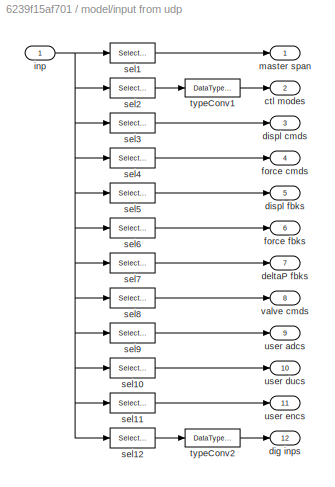
BLOCK [SubSystem] model/input from udp
  Ports = [1, 12]
  RequestExecContextInheritance = off
BLOCK [Outport] model/input from udp/ctl modes
  IconDisplay = Port number
  Port = 2
BLOCK [Outport] model/input from udp/deltaP fbks
  IconDisplay = Port number
  Port = 7
BLOCK [Outport] model/input from udp/dig inps
  IconDisplay = Port number
  Port = 12
BLOCK [Outport] model/input from udp/displ cmds
  IconDisplay = Port number
  Port = 3
BLOCK [Outport] model/input from udp/displ fbks
  IconDisplay = Port number
  Port = 5
BLOCK [Outport] model/input from udp/force cmds
  IconDisplay = Port number
  Port = 4
BLOCK [Outport] model/input from udp/force fbks
  IconDisplay = Port number
  Port = 6
BLOCK [Inport] model/input from udp/inp
  IconDisplay = Port number
BLOCK [Outport] model/input from udp/master span
  IconDisplay = Port number
BLOCK [Selector] model/input from udp/sel1
  Indices = [0]+1
  InputPortWidth = nUDPOut
  Ports = [1, 1]
BLOCK [Selector] model/input from udp/sel10
  Indices = [1:nDucU]+1+7*nAct+nAdcU
  InputPortWidth = nUDPOut
  Ports = [1, 1]
BLOCK [Selector] model/input from udp/sel11
  Indices = [1:nEncU]+1+7*nAct+nAdcU+nDucU
  InputPortWidth = nUDPOut
  Ports = [1, 1]
BLOCK [Selector] model/input from udp/sel12
  Indices = [1:nDinp]+1+7*nAct+nAdcU+nDucU+nEncU
  InputPortWidth = nUDPOut
  Ports = [1, 1]
BLOCK [Selector] model/input from udp/sel2
  Indices = [1:nAct]+1+0*nAct
  InputPortWidth = nUDPOut
  Ports = [1, 1]
BLOCK [Selector] model/input from udp/sel3
  Indices = [1:nAct]+1+1*nAct
  InputPortWidth = nUDPOut
  Ports = [1, 1]
BLOCK [Selector] model/input from udp/sel4
  Indices = [1:nAct]+1+2*nAct
  InputPortWidth = nUDPOut
  Ports = [1, 1]
BLOCK [Selector] model/input from udp/sel5
  Indices = [1:nAct]+1+3*nAct
  InputPortWidth = nUDPOut
  Ports = [1, 1]
BLOCK [Selector] model/input from udp/sel6
  Indices = [1:nAct]+1+4*nAct
  InputPortWidth = nUDPOut
  Ports = [1, 1]
BLOCK [Selector] model/input from udp/sel7
  Indices = [1:nAct]+1+5*nAct
  InputPortWidth = nUDPOut
  Ports = [1, 1]
BLOCK [Selector] model/input from udp/sel8
  Indices = [1:nAct]+1+6*nAct
  InputPortWidth = nUDPOut
  Ports = [1, 1]
BLOCK [Selector] model/input from udp/sel9
  Indices = [1:nAdcU]+1+7*nAct
  InputPortWidth = nUDPOut
  Ports = [1, 1]
BLOCK [DataTypeConversion] model/input from udp/typeConv1
  OutDataTypeStr = uint32
BLOCK [DataTypeConversion] model/input from udp/typeConv2
  OutDataTypeStr = uint32
BLOCK [Outport] model/input from udp/user adcs
  IconDisplay = Port number
  Port = 9
BLOCK [Outport] model/input from udp/user ducs
  IconDisplay = Port number
  Port = 10
BLOCK [Outport] model/input from udp/user encs
  IconDisplay = Port number
  Port = 11
BLOCK [Outport] model/input from udp/valve cmds
  IconDisplay = Port number
  Port = 8
BLOCK [Constant] model/master span
  Value = 0
BLOCK [SubSystem] model/output to udp
  Ports = [11, 1]
  RequestExecContextInheritance = off
BLOCK [Mux] model/output to udp/Mux
  DisplayOption = bar
  Inputs = 11
  Ports = [11, 1]
BLOCK [Inport] model/output to udp/ctl modes
  IconDisplay = Port number
  Port = 2
BLOCK [Inport] model/output to udp/deltaP fbks
  IconDisplay = Port number
  Port = 7
BLOCK [Inport] model/output to udp/dig outs
  IconDisplay = Port number
  Port = 11
BLOCK [Inport] model/output to udp/displ cmds
  IconDisplay = Port number
  Port = 3
BLOCK [Inport] model/output to udp/displ fbks
  IconDisplay = Port number
  Port = 5
BLOCK [Inport] model/output to udp/force cmds
  IconDisplay = Port number
  Port = 4
BLOCK [Inport] model/output to udp/force fbks
  IconDisplay = Port number
  Port = 6
BLOCK [Inport] model/output to udp/master span
  IconDisplay = Port number
BLOCK [Outport] model/output to udp/out
  IconDisplay = Port number
BLOCK [DataTypeConversion] model/output to udp/typeConv1
  OutDataTypeStr = double
BLOCK [DataTypeConversion] model/output to udp/typeConv2
  OutDataTypeStr = double
BLOCK [Inport] model/output to udp/user adcs
  IconDisplay = Port number
  Port = 8
BLOCK [Inport] model/output to udp/user ducs
  IconDisplay = Port number
  Port = 9
BLOCK [Inport] model/output to udp/user encs
  IconDisplay = Port number
  Port = 10
BLOCK [Terminator] model/term1
BLOCK [Terminator] model/term10
BLOCK [Terminator] model/term11
BLOCK [Terminator] model/term12
BLOCK [Terminator] model/term2
BLOCK [Terminator] model/term4
BLOCK [Terminator] model/term5
BLOCK [Terminator] model/term6
BLOCK [Terminator] model/term7
BLOCK [Terminator] model/term9
BLOCK [Constant] model/user ADCs
  Value = zeros(nAdcU, 1)
BLOCK [Constant] model/user DUCs
  Value = zeros(nDucU, 1)
BLOCK [Constant] model/user ENCs
  Value = zeros(nEncU, 1)
BLOCK [Inport] model/valveCmds
  IconDisplay = Port number
ANNOTATION (root): UCB PC Simulation
ANNOTATION model: UCB PC Simulation
ANNOTATION model/ActuatorPayloadMdl/dynamic long channel #1/actuator//valve model: Parameter vector: 1: oil bulk modulus (force/displ^2) 2: servovalve delay (sec) 3: servovalve overlap 4: rated pressure (force/displ^2) 5: rated flow at rated pressure (displ^3/sec) 6: nominal flow at rated pressure (displ^3/sec) 7: actuator piston area 1 (displ^2) 8: actuator piston area 2 (displ^2) 9: actuator usable stroke 1 (displ) 10: actuator usable stroke 2 (displ) 11: actuator end cushion ...<+369ch>
ANNOTATION model/ActuatorPayloadMdl/dynamic long channel #1/actuator//valve model: Auxiliary diagnostic output vector: 1: valve opening 2: C1 pressure 3: C2 pressure 4: delta pressure 5: force 6: velocity 7: C1 flow 8: C2 flow 9: total flow 10: kinematic flow 11: compressibility flow 12: leakage flow
ANNOTATION model/ActuatorPayloadMdl/dynamic long channel #1/actuator//valve model: Note: "1" and "2" denote actuator cylinders on either side of the actuator piston. With positive valve drive, oil is ported into cylinder 1, resulting in positive displacement.
ANNOTATION model/ActuatorPayloadMdl/dynamic long channel #2/actuator//valve model: Parameter vector: 1: oil bulk modulus (force/displ^2) 2: servovalve delay (sec) 3: servovalve overlap 4: rated pressure (force/displ^2) 5: rated flow at rated pressure (displ^3/sec) 6: nominal flow at rated pressure (displ^3/sec) 7: actuator piston area 1 (displ^2) 8: actuator piston area 2 (displ^2) 9: actuator usable stroke 1 (displ) 10: actuator usable stroke 2 (displ) 11: actuator end cushion ...<+369ch>
ANNOTATION model/ActuatorPayloadMdl/dynamic long channel #2/actuator//valve model: Auxiliary diagnostic output vector: 1: valve opening 2: C1 pressure 3: C2 pressure 4: delta pressure 5: force 6: velocity 7: C1 flow 8: C2 flow 9: total flow 10: kinematic flow 11: compressibility flow 12: leakage flow
ANNOTATION model/ActuatorPayloadMdl/dynamic long channel #2/actuator//valve model: Note: "1" and "2" denote actuator cylinders on either side of the actuator piston. With positive valve drive, oil is ported into cylinder 1, resulting in positive displacement.
ANNOTATION model/ActuatorPayloadMdl/dynamic short channel #1/actuator//valve model: Parameter vector: 1: oil bulk modulus (force/displ^2) 2: servovalve delay (sec) 3: servovalve overlap 4: rated pressure (force/displ^2) 5: rated flow at rated pressure (displ^3/sec) 6: nominal flow at rated pressure (displ^3/sec) 7: actuator piston area 1 (displ^2) 8: actuator piston area 2 (displ^2) 9: actuator usable stroke 1 (displ) 10: actuator usable stroke 2 (displ) 11: actuator end cushion ...<+369ch>
ANNOTATION model/ActuatorPayloadMdl/dynamic short channel #1/actuator//valve model: Auxiliary diagnostic output vector: 1: valve opening 2: C1 pressure 3: C2 pressure 4: delta pressure 5: force 6: velocity 7: C1 flow 8: C2 flow 9: total flow 10: kinematic flow 11: compressibility flow 12: leakage flow
ANNOTATION model/ActuatorPayloadMdl/dynamic short channel #1/actuator//valve model: Note: "1" and "2" denote actuator cylinders on either side of the actuator piston. With positive valve drive, oil is ported into cylinder 1, resulting in positive displacement.
ANNOTATION model/ActuatorPayloadMdl/dynamic short channel #2/actuator//valve model: Parameter vector: 1: oil bulk modulus (force/displ^2) 2: servovalve delay (sec) 3: servovalve overlap 4: rated pressure (force/displ^2) 5: rated flow at rated pressure (displ^3/sec) 6: nominal flow at rated pressure (displ^3/sec) 7: actuator piston area 1 (displ^2) 8: actuator piston area 2 (displ^2) 9: actuator usable stroke 1 (displ) 10: actuator usable stroke 2 (displ) 11: actuator end cushion ...<+369ch>
ANNOTATION model/ActuatorPayloadMdl/dynamic short channel #2/actuator//valve model: Auxiliary diagnostic output vector: 1: valve opening 2: C1 pressure 3: C2 pressure 4: delta pressure 5: force 6: velocity 7: C1 flow 8: C2 flow 9: total flow 10: kinematic flow 11: compressibility flow 12: leakage flow
ANNOTATION model/ActuatorPayloadMdl/dynamic short channel #2/actuator//valve model: Note: "1" and "2" denote actuator cylinders on either side of the actuator piston. With positive valve drive, oil is ported into cylinder 1, resulting in positive displacement.
ANNOTATION model/ActuatorPayloadMdl/static channel #1/actuator//valve model: Parameter vector: 1: oil bulk modulus (force/displ^2) 2: servovalve delay (sec) 3: servovalve overlap 4: rated pressure (force/displ^2) 5: rated flow at rated pressure (displ^3/sec) 6: nominal flow at rated pressure (displ^3/sec) 7: actuator piston area 1 (displ^2) 8: actuator piston area 2 (displ^2) 9: actuator usable stroke 1 (displ) 10: actuator usable stroke 2 (displ) 11: actuator end cushion ...<+369ch>
ANNOTATION model/ActuatorPayloadMdl/static channel #1/actuator//valve model: Auxiliary diagnostic output vector: 1: valve opening 2: C1 pressure 3: C2 pressure 4: delta pressure 5: force 6: velocity 7: C1 flow 8: C2 flow 9: total flow 10: kinematic flow 11: compressibility flow 12: leakage flow
ANNOTATION model/ActuatorPayloadMdl/static channel #1/actuator//valve model: Note: "1" and "2" denote actuator cylinders on either side of the actuator piston. With positive valve drive, oil is ported into cylinder 1, resulting in positive displacement.
ANNOTATION model/ActuatorPayloadMdl/static channel #2/actuator//valve model: Parameter vector: 1: oil bulk modulus (force/displ^2) 2: servovalve delay (sec) 3: servovalve overlap 4: rated pressure (force/displ^2) 5: rated flow at rated pressure (displ^3/sec) 6: nominal flow at rated pressure (displ^3/sec) 7: actuator piston area 1 (displ^2) 8: actuator piston area 2 (displ^2) 9: actuator usable stroke 1 (displ) 10: actuator usable stroke 2 (displ) 11: actuator end cushion ...<+369ch>
ANNOTATION model/ActuatorPayloadMdl/static channel #2/actuator//valve model: Auxiliary diagnostic output vector: 1: valve opening 2: C1 pressure 3: C2 pressure 4: delta pressure 5: force 6: velocity 7: C1 flow 8: C2 flow 9: total flow 10: kinematic flow 11: compressibility flow 12: leakage flow
ANNOTATION model/ActuatorPayloadMdl/static channel #2/actuator//valve model: Note: "1" and "2" denote actuator cylinders on either side of the actuator piston. With positive valve drive, oil is ported into cylinder 1, resulting in positive displacement.
ANNOTATION model/ActuatorPayloadMdl/static channel #3/actuator//valve model: Parameter vector: 1: oil bulk modulus (force/displ^2) 2: servovalve delay (sec) 3: servovalve overlap 4: rated pressure (force/displ^2) 5: rated flow at rated pressure (displ^3/sec) 6: nominal flow at rated pressure (displ^3/sec) 7: actuator piston area 1 (displ^2) 8: actuator piston area 2 (displ^2) 9: actuator usable stroke 1 (displ) 10: actuator usable stroke 2 (displ) 11: actuator end cushion ...<+369ch>
ANNOTATION model/ActuatorPayloadMdl/static channel #3/actuator//valve model: Auxiliary diagnostic output vector: 1: valve opening 2: C1 pressure 3: C2 pressure 4: delta pressure 5: force 6: velocity 7: C1 flow 8: C2 flow 9: total flow 10: kinematic flow 11: compressibility flow 12: leakage flow
ANNOTATION model/ActuatorPayloadMdl/static channel #3/actuator//valve model: Note: "1" and "2" denote actuator cylinders on either side of the actuator piston. With positive valve drive, oil is ported into cylinder 1, resulting in positive displacement.
ANNOTATION model/ActuatorPayloadMdl/static channel #4/actuator//valve model: Parameter vector: 1: oil bulk modulus (force/displ^2) 2: servovalve delay (sec) 3: servovalve overlap 4: rated pressure (force/displ^2) 5: rated flow at rated pressure (displ^3/sec) 6: nominal flow at rated pressure (displ^3/sec) 7: actuator piston area 1 (displ^2) 8: actuator piston area 2 (displ^2) 9: actuator usable stroke 1 (displ) 10: actuator usable stroke 2 (displ) 11: actuator end cushion ...<+369ch>
ANNOTATION model/ActuatorPayloadMdl/static channel #4/actuator//valve model: Auxiliary diagnostic output vector: 1: valve opening 2: C1 pressure 3: C2 pressure 4: delta pressure 5: force 6: velocity 7: C1 flow 8: C2 flow 9: total flow 10: kinematic flow 11: compressibility flow 12: leakage flow
ANNOTATION model/ActuatorPayloadMdl/static channel #4/actuator//valve model: Note: "1" and "2" denote actuator cylinders on either side of the actuator piston. With positive valve drive, oil is ported into cylinder 1, resulting in positive displacement.
LINE controller:1 -> model:trigger
LINE controller:2 -> model:1
LINE model/ActuatorPayloadMdl/Demux:1 -> model/ActuatorPayloadMdl/dynamic short channel #1:1
LINE model/ActuatorPayloadMdl/Demux:2 -> model/ActuatorPayloadMdl/dynamic short channel #2:1
LINE model/ActuatorPayloadMdl/Demux:3 -> model/ActuatorPayloadMdl/dynamic long channel #1:1
LINE model/ActuatorPayloadMdl/Demux:4 -> model/ActuatorPayloadMdl/dynamic long channel #2:1
LINE model/ActuatorPayloadMdl/Demux:5 -> model/ActuatorPayloadMdl/static channel #1:1
LINE model/ActuatorPayloadMdl/Demux:6 -> model/ActuatorPayloadMdl/static channel #2:1
LINE model/ActuatorPayloadMdl/Demux:7 -> model/ActuatorPayloadMdl/static channel #3:1
LINE model/ActuatorPayloadMdl/Demux:8 -> model/ActuatorPayloadMdl/static channel #4:1
LINE model/ActuatorPayloadMdl/Mux1:1 -> model/ActuatorPayloadMdl/forceFbks:1
LINE model/ActuatorPayloadMdl/Mux2:1 -> model/ActuatorPayloadMdl/deltaPFbks:1
LINE model/ActuatorPayloadMdl/Mux:1 -> model/ActuatorPayloadMdl/displFbks:1
LINE model/ActuatorPayloadMdl/Sum:1 -> model/ActuatorPayloadMdl/accumulators:1
LINE model/ActuatorPayloadMdl/accumulators/Sum1:1 -> model/ActuatorPayloadMdl/accumulators/quotient:2
LINE model/ActuatorPayloadMdl/accumulators/Sum:1 -> model/ActuatorPayloadMdl/accumulators/flowCanon:1
NET model/ActuatorPayloadMdl/accumulators/bottle volume:1 -> model/ActuatorPayloadMdl/accumulators/Sum1:1, model/ActuatorPayloadMdl/accumulators/quotient:1
LINE model/ActuatorPayloadMdl/accumulators/flow:1 -> model/ActuatorPayloadMdl/accumulators/Sum:2
LINE model/ActuatorPayloadMdl/accumulators/flowCanon:1 -> model/ActuatorPayloadMdl/accumulators/integrator:1
LINE model/ActuatorPayloadMdl/accumulators/gas constant:1 -> model/ActuatorPayloadMdl/accumulators/power:2
LINE model/ActuatorPayloadMdl/accumulators/initial condition:1 -> model/ActuatorPayloadMdl/accumulators/press:1
LINE model/ActuatorPayloadMdl/accumulators/integrator:1 -> model/ActuatorPayloadMdl/accumulators/Sum1:2
LINE model/ActuatorPayloadMdl/accumulators/power:1 -> model/ActuatorPayloadMdl/accumulators/precharge:1
LINE model/ActuatorPayloadMdl/accumulators/precharge:1 -> model/ActuatorPayloadMdl/accumulators/initial condition:1
LINE model/ActuatorPayloadMdl/accumulators/pump flow:1 -> model/ActuatorPayloadMdl/accumulators/Sum:1
LINE model/ActuatorPayloadMdl/accumulators/quotient:1 -> model/ActuatorPayloadMdl/accumulators/power:1
NET model/ActuatorPayloadMdl/accumulators:1 -> model/ActuatorPayloadMdl/dynamic long channel #1:2, model/ActuatorPayloadMdl/dynamic long channel #2:2, model/ActuatorPayloadMdl/dynamic short channel #1:2, model/ActuatorPayloadMdl/dynamic short channel #2:2, model/ActuatorPayloadMdl/static channel #1:2, model/ActuatorPayloadMdl/static channel #2:2, model/ActuatorPayloadMdl/static channel #3:2, model/ActuatorPayloadMdl/static channel #4:2
LINE model/ActuatorPayloadMdl/dynamic long channel #1/actuator//valve model/abs:1 -> model/ActuatorPayloadMdl/dynamic long channel #1/actuator//valve model/flow:1
LINE model/ActuatorPayloadMdl/dynamic long channel #1/actuator//valve model/actuator:1 -> model/ActuatorPayloadMdl/dynamic long channel #1/actuator//valve model/force:1
LINE model/ActuatorPayloadMdl/dynamic long channel #1/actuator//valve model/actuator:2 -> model/ActuatorPayloadMdl/dynamic long channel #1/actuator//valve model/total flow sel:1
LINE model/ActuatorPayloadMdl/dynamic long channel #1/actuator//valve model/cmd:1 -> model/ActuatorPayloadMdl/dynamic long channel #1/actuator//valve model/actuator:1
LINE model/ActuatorPayloadMdl/dynamic long channel #1/actuator//valve model/displ:1 -> model/ActuatorPayloadMdl/dynamic long channel #1/actuator//valve model/actuator:2
LINE model/ActuatorPayloadMdl/dynamic long channel #1/actuator//valve model/rtn press:1 -> model/ActuatorPayloadMdl/dynamic long channel #1/actuator//valve model/actuator:5
LINE model/ActuatorPayloadMdl/dynamic long channel #1/actuator//valve model/spl press:1 -> model/ActuatorPayloadMdl/dynamic long channel #1/actuator//valve model/actuator:4
LINE model/ActuatorPayloadMdl/dynamic long channel #1/actuator//valve model/total flow sel:1 -> model/ActuatorPayloadMdl/dynamic long channel #1/actuator//valve model/abs:1
LINE model/ActuatorPayloadMdl/dynamic long channel #1/actuator//valve model/veloc:1 -> model/ActuatorPayloadMdl/dynamic long channel #1/actuator//valve model/actuator:3
NET model/ActuatorPayloadMdl/dynamic long channel #1/actuator//valve model:1 -> model/ActuatorPayloadMdl/dynamic long channel #1/dpforce:1, model/ActuatorPayloadMdl/dynamic long channel #1/force:1, model/ActuatorPayloadMdl/dynamic long channel #1/payload:1
LINE model/ActuatorPayloadMdl/dynamic long channel #1/actuator//valve model:2 -> model/ActuatorPayloadMdl/dynamic long channel #1/flow:1
LINE model/ActuatorPayloadMdl/dynamic long channel #1/payload/Sum:1 -> model/ActuatorPayloadMdl/dynamic long channel #1/payload/div:1
LINE model/ActuatorPayloadMdl/dynamic long channel #1/payload/damper:1 -> model/ActuatorPayloadMdl/dynamic long channel #1/payload/Sum:4
LINE model/ActuatorPayloadMdl/dynamic long channel #1/payload/div:1 -> model/ActuatorPayloadMdl/dynamic long channel #1/payload/double integrator:1
NET model/ActuatorPayloadMdl/dynamic long channel #1/payload/double integrator/accel:1 -> model/ActuatorPayloadMdl/dynamic long channel #1/payload/double integrator/acc:1, model/ActuatorPayloadMdl/dynamic long channel #1/payload/double integrator/veloc gen:1
NET model/ActuatorPayloadMdl/dynamic long channel #1/payload/double integrator/displ gen:1 -> model/ActuatorPayloadMdl/dynamic long channel #1/payload/double integrator/displ:1, model/ActuatorPayloadMdl/dynamic long channel #1/payload/double integrator/veloc gen:2
LINE model/ActuatorPayloadMdl/dynamic long channel #1/payload/double integrator/displ gen:2 -> model/ActuatorPayloadMdl/dynamic long channel #1/payload/double integrator/veloc gen:3
LINE model/ActuatorPayloadMdl/dynamic long channel #1/payload/double integrator/veloc gen/Constant1:1 -> model/ActuatorPayloadMdl/dynamic long channel #1/payload/double integrator/veloc gen/Relational Operator2:2
LINE model/ActuatorPayloadMdl/dynamic long channel #1/payload/double integrator/veloc gen/Constant2:1 -> model/ActuatorPayloadMdl/dynamic long channel #1/payload/double integrator/veloc gen/Switch:1
LINE model/ActuatorPayloadMdl/dynamic long channel #1/payload/double integrator/veloc gen/Constant3:1 -> model/ActuatorPayloadMdl/dynamic long channel #1/payload/double integrator/veloc gen/Relational Operator1:2
LINE model/ActuatorPayloadMdl/dynamic long channel #1/payload/double integrator/veloc gen/Constant4:1 -> model/ActuatorPayloadMdl/dynamic long channel #1/payload/double integrator/veloc gen/Relational Operator3:2
LINE model/ActuatorPayloadMdl/dynamic long channel #1/payload/double integrator/veloc gen/Constant:1 -> model/ActuatorPayloadMdl/dynamic long channel #1/payload/double integrator/veloc gen/Relational Operator:2
LINE model/ActuatorPayloadMdl/dynamic long channel #1/payload/double integrator/veloc gen/Logical Operator1:1 -> model/ActuatorPayloadMdl/dynamic long channel #1/payload/double integrator/veloc gen/Logical Operator2:2
LINE model/ActuatorPayloadMdl/dynamic long channel #1/payload/double integrator/veloc gen/Logical Operator2:1 -> model/ActuatorPayloadMdl/dynamic long channel #1/payload/double integrator/veloc gen/Switch:2
LINE model/ActuatorPayloadMdl/dynamic long channel #1/payload/double integrator/veloc gen/Logical Operator:1 -> model/ActuatorPayloadMdl/dynamic long channel #1/payload/double integrator/veloc gen/Logical Operator2:1
LINE model/ActuatorPayloadMdl/dynamic long channel #1/payload/double integrator/veloc gen/Relational Operator1:1 -> model/ActuatorPayloadMdl/dynamic long channel #1/payload/double integrator/veloc gen/Logical Operator:1
LINE model/ActuatorPayloadMdl/dynamic long channel #1/payload/double integrator/veloc gen/Relational Operator2:1 -> model/ActuatorPayloadMdl/dynamic long channel #1/payload/double integrator/veloc gen/Logical Operator1:2
LINE model/ActuatorPayloadMdl/dynamic long channel #1/payload/double integrator/veloc gen/Relational Operator3:1 -> model/ActuatorPayloadMdl/dynamic long channel #1/payload/double integrator/veloc gen/Logical Operator1:1
LINE model/ActuatorPayloadMdl/dynamic long channel #1/payload/double integrator/veloc gen/Relational Operator:1 -> model/ActuatorPayloadMdl/dynamic long channel #1/payload/double integrator/veloc gen/Logical Operator:2
LINE model/ActuatorPayloadMdl/dynamic long channel #1/payload/double integrator/veloc gen/Switch:1 -> model/ActuatorPayloadMdl/dynamic long channel #1/payload/double integrator/veloc gen/integ1:1
NET model/ActuatorPayloadMdl/dynamic long channel #1/payload/double integrator/veloc gen/accel:1 -> model/ActuatorPayloadMdl/dynamic long channel #1/payload/double integrator/veloc gen/Relational Operator1:1, model/ActuatorPayloadMdl/dynamic long channel #1/payload/double integrator/veloc gen/Relational Operator3:1, model/ActuatorPayloadMdl/dynamic long channel #1/payload/double integrator/veloc gen/Switch:3
LINE model/ActuatorPayloadMdl/dynamic long channel #1/payload/double integrator/veloc gen/displ:1 -> model/ActuatorPayloadMdl/dynamic long channel #1/payload/double integrator/veloc gen/unit dly 1:1
LINE model/ActuatorPayloadMdl/dynamic long channel #1/payload/double integrator/veloc gen/integ1:1 -> model/ActuatorPayloadMdl/dynamic long channel #1/payload/double integrator/veloc gen/veloc:1
LINE model/ActuatorPayloadMdl/dynamic long channel #1/payload/double integrator/veloc gen/reset:1 -> model/ActuatorPayloadMdl/dynamic long channel #1/payload/double integrator/veloc gen/unit dly 2:1
NET model/ActuatorPayloadMdl/dynamic long channel #1/payload/double integrator/veloc gen/unit dly 1:1 -> model/ActuatorPayloadMdl/dynamic long channel #1/payload/double integrator/veloc gen/Relational Operator2:1, model/ActuatorPayloadMdl/dynamic long channel #1/payload/double integrator/veloc gen/Relational Operator:1
LINE model/ActuatorPayloadMdl/dynamic long channel #1/payload/double integrator/veloc gen/unit dly 2:1 -> model/ActuatorPayloadMdl/dynamic long channel #1/payload/double integrator/veloc gen/integ1:2
NET model/ActuatorPayloadMdl/dynamic long channel #1/payload/double integrator/veloc gen:1 -> model/ActuatorPayloadMdl/dynamic long channel #1/payload/double integrator/displ gen:1, model/ActuatorPayloadMdl/dynamic long channel #1/payload/double integrator/veloc:1
NET model/ActuatorPayloadMdl/dynamic long channel #1/payload/double integrator:1 -> model/ActuatorPayloadMdl/dynamic long channel #1/payload/displ:1, model/ActuatorPayloadMdl/dynamic long channel #1/payload/unit dly:1
NET model/ActuatorPayloadMdl/dynamic long channel #1/payload/double integrator:2 -> model/ActuatorPayloadMdl/dynamic long channel #1/payload/friction:1, model/ActuatorPayloadMdl/dynamic long channel #1/payload/unit dly1:1, model/ActuatorPayloadMdl/dynamic long channel #1/payload/veloc units:1
LINE model/ActuatorPayloadMdl/dynamic long channel #1/payload/double integrator:3 -> model/ActuatorPayloadMdl/dynamic long channel #1/payload/term1:1
LINE model/ActuatorPayloadMdl/dynamic long channel #1/payload/force:1 -> model/ActuatorPayloadMdl/dynamic long channel #1/payload/Sum:1
LINE model/ActuatorPayloadMdl/dynamic long channel #1/payload/friction/1-beta:1 -> model/ActuatorPayloadMdl/dynamic long channel #1/payload/friction/Sum:2
LINE model/ActuatorPayloadMdl/dynamic long channel #1/payload/friction/Sign:1 -> model/ActuatorPayloadMdl/dynamic long channel #1/payload/friction/1-beta:1
LINE model/ActuatorPayloadMdl/dynamic long channel #1/payload/friction/Sum1:1 -> model/ActuatorPayloadMdl/dynamic long channel #1/payload/friction/prod2:1
LINE model/ActuatorPayloadMdl/dynamic long channel #1/payload/friction/Sum:1 -> model/ActuatorPayloadMdl/dynamic long channel #1/payload/friction/prod3:3
LINE model/ActuatorPayloadMdl/dynamic long channel #1/payload/friction/beta:1 -> model/ActuatorPayloadMdl/dynamic long channel #1/payload/friction/Sum:1
NET model/ActuatorPayloadMdl/dynamic long channel #1/payload/friction/integrator:1 -> model/ActuatorPayloadMdl/dynamic long channel #1/payload/friction/prod1:2, model/ActuatorPayloadMdl/dynamic long channel #1/payload/friction/prod3:1, model/ActuatorPayloadMdl/dynamic long channel #1/payload/friction/prod3:2, model/ActuatorPayloadMdl/dynamic long channel #1/payload/friction/prod4:1
LINE model/ActuatorPayloadMdl/dynamic long channel #1/payload/friction/one:1 -> model/ActuatorPayloadMdl/dynamic long channel #1/payload/friction/Sum1:1
LINE model/ActuatorPayloadMdl/dynamic long channel #1/payload/friction/prod1:1 -> model/ActuatorPayloadMdl/dynamic long channel #1/payload/friction/force:1
LINE model/ActuatorPayloadMdl/dynamic long channel #1/payload/friction/prod2:1 -> model/ActuatorPayloadMdl/dynamic long channel #1/payload/friction/y inv:1
LINE model/ActuatorPayloadMdl/dynamic long channel #1/payload/friction/prod3:1 -> model/ActuatorPayloadMdl/dynamic long channel #1/payload/friction/Sum1:2
LINE model/ActuatorPayloadMdl/dynamic long channel #1/payload/friction/prod4:1 -> model/ActuatorPayloadMdl/dynamic long channel #1/payload/friction/Sign:1
LINE model/ActuatorPayloadMdl/dynamic long channel #1/payload/friction/sliding friction:1 -> model/ActuatorPayloadMdl/dynamic long channel #1/payload/friction/prod1:1
NET model/ActuatorPayloadMdl/dynamic long channel #1/payload/friction/veloc:1 -> model/ActuatorPayloadMdl/dynamic long channel #1/payload/friction/prod2:2, model/ActuatorPayloadMdl/dynamic long channel #1/payload/friction/prod4:2
LINE model/ActuatorPayloadMdl/dynamic long channel #1/payload/friction/y inv:1 -> model/ActuatorPayloadMdl/dynamic long channel #1/payload/friction/integrator:1
LINE model/ActuatorPayloadMdl/dynamic long channel #1/payload/friction:1 -> model/ActuatorPayloadMdl/dynamic long channel #1/payload/Sum:2
LINE model/ActuatorPayloadMdl/dynamic long channel #1/payload/from specimen:1 -> model/ActuatorPayloadMdl/dynamic long channel #1/payload/Sum:3
LINE model/ActuatorPayloadMdl/dynamic long channel #1/payload/mass:1 -> model/ActuatorPayloadMdl/dynamic long channel #1/payload/div:2
LINE model/ActuatorPayloadMdl/dynamic long channel #1/payload/static force:1 -> model/ActuatorPayloadMdl/dynamic long channel #1/payload/Sum:5
LINE model/ActuatorPayloadMdl/dynamic long channel #1/payload/unit dly1:1 -> model/ActuatorPayloadMdl/dynamic long channel #1/payload/damper:1
LINE model/ActuatorPayloadMdl/dynamic long channel #1/payload/unit dly:1 -> model/ActuatorPayloadMdl/dynamic long channel #1/payload/to specimen:1
LINE model/ActuatorPayloadMdl/dynamic long channel #1/payload/veloc units:1 -> model/ActuatorPayloadMdl/dynamic long channel #1/payload/veloc:1
NET model/ActuatorPayloadMdl/dynamic long channel #1/payload:1 -> model/ActuatorPayloadMdl/dynamic long channel #1/actuator//valve model:2, model/ActuatorPayloadMdl/dynamic long channel #1/displ:1
LINE model/ActuatorPayloadMdl/dynamic long channel #1/payload:2 -> model/ActuatorPayloadMdl/dynamic long channel #1/actuator//valve model:3
LINE model/ActuatorPayloadMdl/dynamic long channel #1/return pressure:1 -> model/ActuatorPayloadMdl/dynamic long channel #1/actuator//valve model:5
LINE model/ActuatorPayloadMdl/dynamic long channel #1/spl press:1 -> model/ActuatorPayloadMdl/dynamic long channel #1/actuator//valve model:4
LINE model/ActuatorPayloadMdl/dynamic long channel #1/valve cmd:1 -> model/ActuatorPayloadMdl/dynamic long channel #1/actuator//valve model:1
LINE model/ActuatorPayloadMdl/dynamic long channel #1:1 -> model/ActuatorPayloadMdl/Mux:3
LINE model/ActuatorPayloadMdl/dynamic long channel #1:2 -> model/ActuatorPayloadMdl/Mux1:3
LINE model/ActuatorPayloadMdl/dynamic long channel #1:3 -> model/ActuatorPayloadMdl/Mux2:3
LINE model/ActuatorPayloadMdl/dynamic long channel #1:4 -> model/ActuatorPayloadMdl/Sum:3
LINE model/ActuatorPayloadMdl/dynamic long channel #2/actuator//valve model/abs:1 -> model/ActuatorPayloadMdl/dynamic long channel #2/actuator//valve model/flow:1
LINE model/ActuatorPayloadMdl/dynamic long channel #2/actuator//valve model/actuator:1 -> model/ActuatorPayloadMdl/dynamic long channel #2/actuator//valve model/force:1
LINE model/ActuatorPayloadMdl/dynamic long channel #2/actuator//valve model/actuator:2 -> model/ActuatorPayloadMdl/dynamic long channel #2/actuator//valve model/total flow sel:1
LINE model/ActuatorPayloadMdl/dynamic long channel #2/actuator//valve model/cmd:1 -> model/ActuatorPayloadMdl/dynamic long channel #2/actuator//valve model/actuator:1
LINE model/ActuatorPayloadMdl/dynamic long channel #2/actuator//valve model/displ:1 -> model/ActuatorPayloadMdl/dynamic long channel #2/actuator//valve model/actuator:2
LINE model/ActuatorPayloadMdl/dynamic long channel #2/actuator//valve model/rtn press:1 -> model/ActuatorPayloadMdl/dynamic long channel #2/actuator//valve model/actuator:5
LINE model/ActuatorPayloadMdl/dynamic long channel #2/actuator//valve model/spl press:1 -> model/ActuatorPayloadMdl/dynamic long channel #2/actuator//valve model/actuator:4
LINE model/ActuatorPayloadMdl/dynamic long channel #2/actuator//valve model/total flow sel:1 -> model/ActuatorPayloadMdl/dynamic long channel #2/actuator//valve model/abs:1
LINE model/ActuatorPayloadMdl/dynamic long channel #2/actuator//valve model/veloc:1 -> model/ActuatorPayloadMdl/dynamic long channel #2/actuator//valve model/actuator:3
NET model/ActuatorPayloadMdl/dynamic long channel #2/actuator//valve model:1 -> model/ActuatorPayloadMdl/dynamic long channel #2/dpforce:1, model/ActuatorPayloadMdl/dynamic long channel #2/force:1, model/ActuatorPayloadMdl/dynamic long channel #2/payload:1
LINE model/ActuatorPayloadMdl/dynamic long channel #2/actuator//valve model:2 -> model/ActuatorPayloadMdl/dynamic long channel #2/flow:1
LINE model/ActuatorPayloadMdl/dynamic long channel #2/payload/Sum:1 -> model/ActuatorPayloadMdl/dynamic long channel #2/payload/div:1
LINE model/ActuatorPayloadMdl/dynamic long channel #2/payload/damper:1 -> model/ActuatorPayloadMdl/dynamic long channel #2/payload/Sum:4
LINE model/ActuatorPayloadMdl/dynamic long channel #2/payload/div:1 -> model/ActuatorPayloadMdl/dynamic long channel #2/payload/double integrator:1
NET model/ActuatorPayloadMdl/dynamic long channel #2/payload/double integrator/accel:1 -> model/ActuatorPayloadMdl/dynamic long channel #2/payload/double integrator/acc:1, model/ActuatorPayloadMdl/dynamic long channel #2/payload/double integrator/veloc gen:1
NET model/ActuatorPayloadMdl/dynamic long channel #2/payload/double integrator/displ gen:1 -> model/ActuatorPayloadMdl/dynamic long channel #2/payload/double integrator/displ:1, model/ActuatorPayloadMdl/dynamic long channel #2/payload/double integrator/veloc gen:2
LINE model/ActuatorPayloadMdl/dynamic long channel #2/payload/double integrator/displ gen:2 -> model/ActuatorPayloadMdl/dynamic long channel #2/payload/double integrator/veloc gen:3
LINE model/ActuatorPayloadMdl/dynamic long channel #2/payload/double integrator/veloc gen/Constant1:1 -> model/ActuatorPayloadMdl/dynamic long channel #2/payload/double integrator/veloc gen/Relational Operator2:2
LINE model/ActuatorPayloadMdl/dynamic long channel #2/payload/double integrator/veloc gen/Constant2:1 -> model/ActuatorPayloadMdl/dynamic long channel #2/payload/double integrator/veloc gen/Switch:1
LINE model/ActuatorPayloadMdl/dynamic long channel #2/payload/double integrator/veloc gen/Constant3:1 -> model/ActuatorPayloadMdl/dynamic long channel #2/payload/double integrator/veloc gen/Relational Operator1:2
LINE model/ActuatorPayloadMdl/dynamic long channel #2/payload/double integrator/veloc gen/Constant4:1 -> model/ActuatorPayloadMdl/dynamic long channel #2/payload/double integrator/veloc gen/Relational Operator3:2
LINE model/ActuatorPayloadMdl/dynamic long channel #2/payload/double integrator/veloc gen/Constant:1 -> model/ActuatorPayloadMdl/dynamic long channel #2/payload/double integrator/veloc gen/Relational Operator:2
LINE model/ActuatorPayloadMdl/dynamic long channel #2/payload/double integrator/veloc gen/Logical Operator1:1 -> model/ActuatorPayloadMdl/dynamic long channel #2/payload/double integrator/veloc gen/Logical Operator2:2
LINE model/ActuatorPayloadMdl/dynamic long channel #2/payload/double integrator/veloc gen/Logical Operator2:1 -> model/ActuatorPayloadMdl/dynamic long channel #2/payload/double integrator/veloc gen/Switch:2
LINE model/ActuatorPayloadMdl/dynamic long channel #2/payload/double integrator/veloc gen/Logical Operator:1 -> model/ActuatorPayloadMdl/dynamic long channel #2/payload/double integrator/veloc gen/Logical Operator2:1
LINE model/ActuatorPayloadMdl/dynamic long channel #2/payload/double integrator/veloc gen/Relational Operator1:1 -> model/ActuatorPayloadMdl/dynamic long channel #2/payload/double integrator/veloc gen/Logical Operator:1
LINE model/ActuatorPayloadMdl/dynamic long channel #2/payload/double integrator/veloc gen/Relational Operator2:1 -> model/ActuatorPayloadMdl/dynamic long channel #2/payload/double integrator/veloc gen/Logical Operator1:2
LINE model/ActuatorPayloadMdl/dynamic long channel #2/payload/double integrator/veloc gen/Relational Operator3:1 -> model/ActuatorPayloadMdl/dynamic long channel #2/payload/double integrator/veloc gen/Logical Operator1:1
LINE model/ActuatorPayloadMdl/dynamic long channel #2/payload/double integrator/veloc gen/Relational Operator:1 -> model/ActuatorPayloadMdl/dynamic long channel #2/payload/double integrator/veloc gen/Logical Operator:2
LINE model/ActuatorPayloadMdl/dynamic long channel #2/payload/double integrator/veloc gen/Switch:1 -> model/ActuatorPayloadMdl/dynamic long channel #2/payload/double integrator/veloc gen/integ1:1
NET model/ActuatorPayloadMdl/dynamic long channel #2/payload/double integrator/veloc gen/accel:1 -> model/ActuatorPayloadMdl/dynamic long channel #2/payload/double integrator/veloc gen/Relational Operator1:1, model/ActuatorPayloadMdl/dynamic long channel #2/payload/double integrator/veloc gen/Relational Operator3:1, model/ActuatorPayloadMdl/dynamic long channel #2/payload/double integrator/veloc gen/Switch:3
LINE model/ActuatorPayloadMdl/dynamic long channel #2/payload/double integrator/veloc gen/displ:1 -> model/ActuatorPayloadMdl/dynamic long channel #2/payload/double integrator/veloc gen/unit dly 1:1
LINE model/ActuatorPayloadMdl/dynamic long channel #2/payload/double integrator/veloc gen/integ1:1 -> model/ActuatorPayloadMdl/dynamic long channel #2/payload/double integrator/veloc gen/veloc:1
LINE model/ActuatorPayloadMdl/dynamic long channel #2/payload/double integrator/veloc gen/reset:1 -> model/ActuatorPayloadMdl/dynamic long channel #2/payload/double integrator/veloc gen/unit dly 2:1
NET model/ActuatorPayloadMdl/dynamic long channel #2/payload/double integrator/veloc gen/unit dly 1:1 -> model/ActuatorPayloadMdl/dynamic long channel #2/payload/double integrator/veloc gen/Relational Operator2:1, model/ActuatorPayloadMdl/dynamic long channel #2/payload/double integrator/veloc gen/Relational Operator:1
LINE model/ActuatorPayloadMdl/dynamic long channel #2/payload/double integrator/veloc gen/unit dly 2:1 -> model/ActuatorPayloadMdl/dynamic long channel #2/payload/double integrator/veloc gen/integ1:2
NET model/ActuatorPayloadMdl/dynamic long channel #2/payload/double integrator/veloc gen:1 -> model/ActuatorPayloadMdl/dynamic long channel #2/payload/double integrator/displ gen:1, model/ActuatorPayloadMdl/dynamic long channel #2/payload/double integrator/veloc:1
NET model/ActuatorPayloadMdl/dynamic long channel #2/payload/double integrator:1 -> model/ActuatorPayloadMdl/dynamic long channel #2/payload/displ:1, model/ActuatorPayloadMdl/dynamic long channel #2/payload/unit dly:1
NET model/ActuatorPayloadMdl/dynamic long channel #2/payload/double integrator:2 -> model/ActuatorPayloadMdl/dynamic long channel #2/payload/friction:1, model/ActuatorPayloadMdl/dynamic long channel #2/payload/unit dly1:1, model/ActuatorPayloadMdl/dynamic long channel #2/payload/veloc units:1
LINE model/ActuatorPayloadMdl/dynamic long channel #2/payload/double integrator:3 -> model/ActuatorPayloadMdl/dynamic long channel #2/payload/term1:1
LINE model/ActuatorPayloadMdl/dynamic long channel #2/payload/force:1 -> model/ActuatorPayloadMdl/dynamic long channel #2/payload/Sum:1
LINE model/ActuatorPayloadMdl/dynamic long channel #2/payload/friction/1-beta:1 -> model/ActuatorPayloadMdl/dynamic long channel #2/payload/friction/Sum:2
LINE model/ActuatorPayloadMdl/dynamic long channel #2/payload/friction/Sign:1 -> model/ActuatorPayloadMdl/dynamic long channel #2/payload/friction/1-beta:1
LINE model/ActuatorPayloadMdl/dynamic long channel #2/payload/friction/Sum1:1 -> model/ActuatorPayloadMdl/dynamic long channel #2/payload/friction/prod2:1
LINE model/ActuatorPayloadMdl/dynamic long channel #2/payload/friction/Sum:1 -> model/ActuatorPayloadMdl/dynamic long channel #2/payload/friction/prod3:3
LINE model/ActuatorPayloadMdl/dynamic long channel #2/payload/friction/beta:1 -> model/ActuatorPayloadMdl/dynamic long channel #2/payload/friction/Sum:1
NET model/ActuatorPayloadMdl/dynamic long channel #2/payload/friction/integrator:1 -> model/ActuatorPayloadMdl/dynamic long channel #2/payload/friction/prod1:2, model/ActuatorPayloadMdl/dynamic long channel #2/payload/friction/prod3:1, model/ActuatorPayloadMdl/dynamic long channel #2/payload/friction/prod3:2, model/ActuatorPayloadMdl/dynamic long channel #2/payload/friction/prod4:1
LINE model/ActuatorPayloadMdl/dynamic long channel #2/payload/friction/one:1 -> model/ActuatorPayloadMdl/dynamic long channel #2/payload/friction/Sum1:1
LINE model/ActuatorPayloadMdl/dynamic long channel #2/payload/friction/prod1:1 -> model/ActuatorPayloadMdl/dynamic long channel #2/payload/friction/force:1
LINE model/ActuatorPayloadMdl/dynamic long channel #2/payload/friction/prod2:1 -> model/ActuatorPayloadMdl/dynamic long channel #2/payload/friction/y inv:1
LINE model/ActuatorPayloadMdl/dynamic long channel #2/payload/friction/prod3:1 -> model/ActuatorPayloadMdl/dynamic long channel #2/payload/friction/Sum1:2
LINE model/ActuatorPayloadMdl/dynamic long channel #2/payload/friction/prod4:1 -> model/ActuatorPayloadMdl/dynamic long channel #2/payload/friction/Sign:1
LINE model/ActuatorPayloadMdl/dynamic long channel #2/payload/friction/sliding friction:1 -> model/ActuatorPayloadMdl/dynamic long channel #2/payload/friction/prod1:1
NET model/ActuatorPayloadMdl/dynamic long channel #2/payload/friction/veloc:1 -> model/ActuatorPayloadMdl/dynamic long channel #2/payload/friction/prod2:2, model/ActuatorPayloadMdl/dynamic long channel #2/payload/friction/prod4:2
LINE model/ActuatorPayloadMdl/dynamic long channel #2/payload/friction/y inv:1 -> model/ActuatorPayloadMdl/dynamic long channel #2/payload/friction/integrator:1
LINE model/ActuatorPayloadMdl/dynamic long channel #2/payload/friction:1 -> model/ActuatorPayloadMdl/dynamic long channel #2/payload/Sum:2
LINE model/ActuatorPayloadMdl/dynamic long channel #2/payload/from specimen:1 -> model/ActuatorPayloadMdl/dynamic long channel #2/payload/Sum:3
LINE model/ActuatorPayloadMdl/dynamic long channel #2/payload/mass:1 -> model/ActuatorPayloadMdl/dynamic long channel #2/payload/div:2
LINE model/ActuatorPayloadMdl/dynamic long channel #2/payload/static force:1 -> model/ActuatorPayloadMdl/dynamic long channel #2/payload/Sum:5
LINE model/ActuatorPayloadMdl/dynamic long channel #2/payload/unit dly1:1 -> model/ActuatorPayloadMdl/dynamic long channel #2/payload/damper:1
LINE model/ActuatorPayloadMdl/dynamic long channel #2/payload/unit dly:1 -> model/ActuatorPayloadMdl/dynamic long channel #2/payload/to specimen:1
LINE model/ActuatorPayloadMdl/dynamic long channel #2/payload/veloc units:1 -> model/ActuatorPayloadMdl/dynamic long channel #2/payload/veloc:1
NET model/ActuatorPayloadMdl/dynamic long channel #2/payload:1 -> model/ActuatorPayloadMdl/dynamic long channel #2/actuator//valve model:2, model/ActuatorPayloadMdl/dynamic long channel #2/displ:1
LINE model/ActuatorPayloadMdl/dynamic long channel #2/payload:2 -> model/ActuatorPayloadMdl/dynamic long channel #2/actuator//valve model:3
LINE model/ActuatorPayloadMdl/dynamic long channel #2/return pressure:1 -> model/ActuatorPayloadMdl/dynamic long channel #2/actuator//valve model:5
LINE model/ActuatorPayloadMdl/dynamic long channel #2/spl press:1 -> model/ActuatorPayloadMdl/dynamic long channel #2/actuator//valve model:4
LINE model/ActuatorPayloadMdl/dynamic long channel #2/valve cmd:1 -> model/ActuatorPayloadMdl/dynamic long channel #2/actuator//valve model:1
LINE model/ActuatorPayloadMdl/dynamic long channel #2:1 -> model/ActuatorPayloadMdl/Mux:4
LINE model/ActuatorPayloadMdl/dynamic long channel #2:2 -> model/ActuatorPayloadMdl/Mux1:4
LINE model/ActuatorPayloadMdl/dynamic long channel #2:3 -> model/ActuatorPayloadMdl/Mux2:4
LINE model/ActuatorPayloadMdl/dynamic long channel #2:4 -> model/ActuatorPayloadMdl/Sum:4
LINE model/ActuatorPayloadMdl/dynamic short channel #1/actuator//valve model/abs:1 -> model/ActuatorPayloadMdl/dynamic short channel #1/actuator//valve model/flow:1
LINE model/ActuatorPayloadMdl/dynamic short channel #1/actuator//valve model/actuator:1 -> model/ActuatorPayloadMdl/dynamic short channel #1/actuator//valve model/force:1
LINE model/ActuatorPayloadMdl/dynamic short channel #1/actuator//valve model/actuator:2 -> model/ActuatorPayloadMdl/dynamic short channel #1/actuator//valve model/total flow sel:1
LINE model/ActuatorPayloadMdl/dynamic short channel #1/actuator//valve model/cmd:1 -> model/ActuatorPayloadMdl/dynamic short channel #1/actuator//valve model/actuator:1
LINE model/ActuatorPayloadMdl/dynamic short channel #1/actuator//valve model/displ:1 -> model/ActuatorPayloadMdl/dynamic short channel #1/actuator//valve model/actuator:2
LINE model/ActuatorPayloadMdl/dynamic short channel #1/actuator//valve model/rtn press:1 -> model/ActuatorPayloadMdl/dynamic short channel #1/actuator//valve model/actuator:5
LINE model/ActuatorPayloadMdl/dynamic short channel #1/actuator//valve model/spl press:1 -> model/ActuatorPayloadMdl/dynamic short channel #1/actuator//valve model/actuator:4
LINE model/ActuatorPayloadMdl/dynamic short channel #1/actuator//valve model/total flow sel:1 -> model/ActuatorPayloadMdl/dynamic short channel #1/actuator//valve model/abs:1
LINE model/ActuatorPayloadMdl/dynamic short channel #1/actuator//valve model/veloc:1 -> model/ActuatorPayloadMdl/dynamic short channel #1/actuator//valve model/actuator:3
NET model/ActuatorPayloadMdl/dynamic short channel #1/actuator//valve model:1 -> model/ActuatorPayloadMdl/dynamic short channel #1/dpforce:1, model/ActuatorPayloadMdl/dynamic short channel #1/force:1, model/ActuatorPayloadMdl/dynamic short channel #1/payload:1
LINE model/ActuatorPayloadMdl/dynamic short channel #1/actuator//valve model:2 -> model/ActuatorPayloadMdl/dynamic short channel #1/flow:1
LINE model/ActuatorPayloadMdl/dynamic short channel #1/payload/Sum:1 -> model/ActuatorPayloadMdl/dynamic short channel #1/payload/div:1
LINE model/ActuatorPayloadMdl/dynamic short channel #1/payload/damper:1 -> model/ActuatorPayloadMdl/dynamic short channel #1/payload/Sum:4
LINE model/ActuatorPayloadMdl/dynamic short channel #1/payload/div:1 -> model/ActuatorPayloadMdl/dynamic short channel #1/payload/double integrator:1
NET model/ActuatorPayloadMdl/dynamic short channel #1/payload/double integrator/accel:1 -> model/ActuatorPayloadMdl/dynamic short channel #1/payload/double integrator/acc:1, model/ActuatorPayloadMdl/dynamic short channel #1/payload/double integrator/veloc gen:1
NET model/ActuatorPayloadMdl/dynamic short channel #1/payload/double integrator/displ gen:1 -> model/ActuatorPayloadMdl/dynamic short channel #1/payload/double integrator/displ:1, model/ActuatorPayloadMdl/dynamic short channel #1/payload/double integrator/veloc gen:2
LINE model/ActuatorPayloadMdl/dynamic short channel #1/payload/double integrator/displ gen:2 -> model/ActuatorPayloadMdl/dynamic short channel #1/payload/double integrator/veloc gen:3
LINE model/ActuatorPayloadMdl/dynamic short channel #1/payload/double integrator/veloc gen/Constant1:1 -> model/ActuatorPayloadMdl/dynamic short channel #1/payload/double integrator/veloc gen/Relational Operator2:2
LINE model/ActuatorPayloadMdl/dynamic short channel #1/payload/double integrator/veloc gen/Constant2:1 -> model/ActuatorPayloadMdl/dynamic short channel #1/payload/double integrator/veloc gen/Switch:1
LINE model/ActuatorPayloadMdl/dynamic short channel #1/payload/double integrator/veloc gen/Constant3:1 -> model/ActuatorPayloadMdl/dynamic short channel #1/payload/double integrator/veloc gen/Relational Operator1:2
LINE model/ActuatorPayloadMdl/dynamic short channel #1/payload/double integrator/veloc gen/Constant4:1 -> model/ActuatorPayloadMdl/dynamic short channel #1/payload/double integrator/veloc gen/Relational Operator3:2
LINE model/ActuatorPayloadMdl/dynamic short channel #1/payload/double integrator/veloc gen/Constant:1 -> model/ActuatorPayloadMdl/dynamic short channel #1/payload/double integrator/veloc gen/Relational Operator:2
LINE model/ActuatorPayloadMdl/dynamic short channel #1/payload/double integrator/veloc gen/Logical Operator1:1 -> model/ActuatorPayloadMdl/dynamic short channel #1/payload/double integrator/veloc gen/Logical Operator2:2
LINE model/ActuatorPayloadMdl/dynamic short channel #1/payload/double integrator/veloc gen/Logical Operator2:1 -> model/ActuatorPayloadMdl/dynamic short channel #1/payload/double integrator/veloc gen/Switch:2
LINE model/ActuatorPayloadMdl/dynamic short channel #1/payload/double integrator/veloc gen/Logical Operator:1 -> model/ActuatorPayloadMdl/dynamic short channel #1/payload/double integrator/veloc gen/Logical Operator2:1
LINE model/ActuatorPayloadMdl/dynamic short channel #1/payload/double integrator/veloc gen/Relational Operator1:1 -> model/ActuatorPayloadMdl/dynamic short channel #1/payload/double integrator/veloc gen/Logical Operator:1
LINE model/ActuatorPayloadMdl/dynamic short channel #1/payload/double integrator/veloc gen/Relational Operator2:1 -> model/ActuatorPayloadMdl/dynamic short channel #1/payload/double integrator/veloc gen/Logical Operator1:2
LINE model/ActuatorPayloadMdl/dynamic short channel #1/payload/double integrator/veloc gen/Relational Operator3:1 -> model/ActuatorPayloadMdl/dynamic short channel #1/payload/double integrator/veloc gen/Logical Operator1:1
LINE model/ActuatorPayloadMdl/dynamic short channel #1/payload/double integrator/veloc gen/Relational Operator:1 -> model/ActuatorPayloadMdl/dynamic short channel #1/payload/double integrator/veloc gen/Logical Operator:2
LINE model/ActuatorPayloadMdl/dynamic short channel #1/payload/double integrator/veloc gen/Switch:1 -> model/ActuatorPayloadMdl/dynamic short channel #1/payload/double integrator/veloc gen/integ1:1
NET model/ActuatorPayloadMdl/dynamic short channel #1/payload/double integrator/veloc gen/accel:1 -> model/ActuatorPayloadMdl/dynamic short channel #1/payload/double integrator/veloc gen/Relational Operator1:1, model/ActuatorPayloadMdl/dynamic short channel #1/payload/double integrator/veloc gen/Relational Operator3:1, model/ActuatorPayloadMdl/dynamic short channel #1/payload/double integrator/veloc gen/Switch:3
LINE model/ActuatorPayloadMdl/dynamic short channel #1/payload/double integrator/veloc gen/displ:1 -> model/ActuatorPayloadMdl/dynamic short channel #1/payload/double integrator/veloc gen/unit dly 1:1
LINE model/ActuatorPayloadMdl/dynamic short channel #1/payload/double integrator/veloc gen/integ1:1 -> model/ActuatorPayloadMdl/dynamic short channel #1/payload/double integrator/veloc gen/veloc:1
LINE model/ActuatorPayloadMdl/dynamic short channel #1/payload/double integrator/veloc gen/reset:1 -> model/ActuatorPayloadMdl/dynamic short channel #1/payload/double integrator/veloc gen/unit dly 2:1
NET model/ActuatorPayloadMdl/dynamic short channel #1/payload/double integrator/veloc gen/unit dly 1:1 -> model/ActuatorPayloadMdl/dynamic short channel #1/payload/double integrator/veloc gen/Relational Operator2:1, model/ActuatorPayloadMdl/dynamic short channel #1/payload/double integrator/veloc gen/Relational Operator:1
LINE model/ActuatorPayloadMdl/dynamic short channel #1/payload/double integrator/veloc gen/unit dly 2:1 -> model/ActuatorPayloadMdl/dynamic short channel #1/payload/double integrator/veloc gen/integ1:2
NET model/ActuatorPayloadMdl/dynamic short channel #1/payload/double integrator/veloc gen:1 -> model/ActuatorPayloadMdl/dynamic short channel #1/payload/double integrator/displ gen:1, model/ActuatorPayloadMdl/dynamic short channel #1/payload/double integrator/veloc:1
NET model/ActuatorPayloadMdl/dynamic short channel #1/payload/double integrator:1 -> model/ActuatorPayloadMdl/dynamic short channel #1/payload/displ:1, model/ActuatorPayloadMdl/dynamic short channel #1/payload/unit dly:1
NET model/ActuatorPayloadMdl/dynamic short channel #1/payload/double integrator:2 -> model/ActuatorPayloadMdl/dynamic short channel #1/payload/friction:1, model/ActuatorPayloadMdl/dynamic short channel #1/payload/unit dly1:1, model/ActuatorPayloadMdl/dynamic short channel #1/payload/veloc units:1
LINE model/ActuatorPayloadMdl/dynamic short channel #1/payload/double integrator:3 -> model/ActuatorPayloadMdl/dynamic short channel #1/payload/term1:1
LINE model/ActuatorPayloadMdl/dynamic short channel #1/payload/force:1 -> model/ActuatorPayloadMdl/dynamic short channel #1/payload/Sum:1
LINE model/ActuatorPayloadMdl/dynamic short channel #1/payload/friction/1-beta:1 -> model/ActuatorPayloadMdl/dynamic short channel #1/payload/friction/Sum:2
LINE model/ActuatorPayloadMdl/dynamic short channel #1/payload/friction/Sign:1 -> model/ActuatorPayloadMdl/dynamic short channel #1/payload/friction/1-beta:1
LINE model/ActuatorPayloadMdl/dynamic short channel #1/payload/friction/Sum1:1 -> model/ActuatorPayloadMdl/dynamic short channel #1/payload/friction/prod2:1
LINE model/ActuatorPayloadMdl/dynamic short channel #1/payload/friction/Sum:1 -> model/ActuatorPayloadMdl/dynamic short channel #1/payload/friction/prod3:3
LINE model/ActuatorPayloadMdl/dynamic short channel #1/payload/friction/beta:1 -> model/ActuatorPayloadMdl/dynamic short channel #1/payload/friction/Sum:1
NET model/ActuatorPayloadMdl/dynamic short channel #1/payload/friction/integrator:1 -> model/ActuatorPayloadMdl/dynamic short channel #1/payload/friction/prod1:2, model/ActuatorPayloadMdl/dynamic short channel #1/payload/friction/prod3:1, model/ActuatorPayloadMdl/dynamic short channel #1/payload/friction/prod3:2, model/ActuatorPayloadMdl/dynamic short channel #1/payload/friction/prod4:1
LINE model/ActuatorPayloadMdl/dynamic short channel #1/payload/friction/one:1 -> model/ActuatorPayloadMdl/dynamic short channel #1/payload/friction/Sum1:1
LINE model/ActuatorPayloadMdl/dynamic short channel #1/payload/friction/prod1:1 -> model/ActuatorPayloadMdl/dynamic short channel #1/payload/friction/force:1
LINE model/ActuatorPayloadMdl/dynamic short channel #1/payload/friction/prod2:1 -> model/ActuatorPayloadMdl/dynamic short channel #1/payload/friction/y inv:1
LINE model/ActuatorPayloadMdl/dynamic short channel #1/payload/friction/prod3:1 -> model/ActuatorPayloadMdl/dynamic short channel #1/payload/friction/Sum1:2
LINE model/ActuatorPayloadMdl/dynamic short channel #1/payload/friction/prod4:1 -> model/ActuatorPayloadMdl/dynamic short channel #1/payload/friction/Sign:1
LINE model/ActuatorPayloadMdl/dynamic short channel #1/payload/friction/sliding friction:1 -> model/ActuatorPayloadMdl/dynamic short channel #1/payload/friction/prod1:1
NET model/ActuatorPayloadMdl/dynamic short channel #1/payload/friction/veloc:1 -> model/ActuatorPayloadMdl/dynamic short channel #1/payload/friction/prod2:2, model/ActuatorPayloadMdl/dynamic short channel #1/payload/friction/prod4:2
LINE model/ActuatorPayloadMdl/dynamic short channel #1/payload/friction/y inv:1 -> model/ActuatorPayloadMdl/dynamic short channel #1/payload/friction/integrator:1
LINE model/ActuatorPayloadMdl/dynamic short channel #1/payload/friction:1 -> model/ActuatorPayloadMdl/dynamic short channel #1/payload/Sum:2
LINE model/ActuatorPayloadMdl/dynamic short channel #1/payload/from specimen:1 -> model/ActuatorPayloadMdl/dynamic short channel #1/payload/Sum:3
LINE model/ActuatorPayloadMdl/dynamic short channel #1/payload/mass:1 -> model/ActuatorPayloadMdl/dynamic short channel #1/payload/div:2
LINE model/ActuatorPayloadMdl/dynamic short channel #1/payload/static force:1 -> model/ActuatorPayloadMdl/dynamic short channel #1/payload/Sum:5
LINE model/ActuatorPayloadMdl/dynamic short channel #1/payload/unit dly1:1 -> model/ActuatorPayloadMdl/dynamic short channel #1/payload/damper:1
LINE model/ActuatorPayloadMdl/dynamic short channel #1/payload/unit dly:1 -> model/ActuatorPayloadMdl/dynamic short channel #1/payload/to specimen:1
LINE model/ActuatorPayloadMdl/dynamic short channel #1/payload/veloc units:1 -> model/ActuatorPayloadMdl/dynamic short channel #1/payload/veloc:1
NET model/ActuatorPayloadMdl/dynamic short channel #1/payload:1 -> model/ActuatorPayloadMdl/dynamic short channel #1/actuator//valve model:2, model/ActuatorPayloadMdl/dynamic short channel #1/displ:1
LINE model/ActuatorPayloadMdl/dynamic short channel #1/payload:2 -> model/ActuatorPayloadMdl/dynamic short channel #1/actuator//valve model:3
LINE model/ActuatorPayloadMdl/dynamic short channel #1/return pressure:1 -> model/ActuatorPayloadMdl/dynamic short channel #1/actuator//valve model:5
LINE model/ActuatorPayloadMdl/dynamic short channel #1/spl press:1 -> model/ActuatorPayloadMdl/dynamic short channel #1/actuator//valve model:4
LINE model/ActuatorPayloadMdl/dynamic short channel #1/valve cmd:1 -> model/ActuatorPayloadMdl/dynamic short channel #1/actuator//valve model:1
LINE model/ActuatorPayloadMdl/dynamic short channel #1:1 -> model/ActuatorPayloadMdl/Mux:1
LINE model/ActuatorPayloadMdl/dynamic short channel #1:2 -> model/ActuatorPayloadMdl/Mux1:1
LINE model/ActuatorPayloadMdl/dynamic short channel #1:3 -> model/ActuatorPayloadMdl/Mux2:1
LINE model/ActuatorPayloadMdl/dynamic short channel #1:4 -> model/ActuatorPayloadMdl/Sum:1
LINE model/ActuatorPayloadMdl/dynamic short channel #2/actuator//valve model/abs:1 -> model/ActuatorPayloadMdl/dynamic short channel #2/actuator//valve model/flow:1
LINE model/ActuatorPayloadMdl/dynamic short channel #2/actuator//valve model/actuator:1 -> model/ActuatorPayloadMdl/dynamic short channel #2/actuator//valve model/force:1
LINE model/ActuatorPayloadMdl/dynamic short channel #2/actuator//valve model/actuator:2 -> model/ActuatorPayloadMdl/dynamic short channel #2/actuator//valve model/total flow sel:1
LINE model/ActuatorPayloadMdl/dynamic short channel #2/actuator//valve model/cmd:1 -> model/ActuatorPayloadMdl/dynamic short channel #2/actuator//valve model/actuator:1
LINE model/ActuatorPayloadMdl/dynamic short channel #2/actuator//valve model/displ:1 -> model/ActuatorPayloadMdl/dynamic short channel #2/actuator//valve model/actuator:2
LINE model/ActuatorPayloadMdl/dynamic short channel #2/actuator//valve model/rtn press:1 -> model/ActuatorPayloadMdl/dynamic short channel #2/actuator//valve model/actuator:5
LINE model/ActuatorPayloadMdl/dynamic short channel #2/actuator//valve model/spl press:1 -> model/ActuatorPayloadMdl/dynamic short channel #2/actuator//valve model/actuator:4
LINE model/ActuatorPayloadMdl/dynamic short channel #2/actuator//valve model/total flow sel:1 -> model/ActuatorPayloadMdl/dynamic short channel #2/actuator//valve model/abs:1
LINE model/ActuatorPayloadMdl/dynamic short channel #2/actuator//valve model/veloc:1 -> model/ActuatorPayloadMdl/dynamic short channel #2/actuator//valve model/actuator:3
NET model/ActuatorPayloadMdl/dynamic short channel #2/actuator//valve model:1 -> model/ActuatorPayloadMdl/dynamic short channel #2/dpforce:1, model/ActuatorPayloadMdl/dynamic short channel #2/force:1, model/ActuatorPayloadMdl/dynamic short channel #2/payload:1
LINE model/ActuatorPayloadMdl/dynamic short channel #2/actuator//valve model:2 -> model/ActuatorPayloadMdl/dynamic short channel #2/flow:1
LINE model/ActuatorPayloadMdl/dynamic short channel #2/payload/Sum:1 -> model/ActuatorPayloadMdl/dynamic short channel #2/payload/div:1
LINE model/ActuatorPayloadMdl/dynamic short channel #2/payload/damper:1 -> model/ActuatorPayloadMdl/dynamic short channel #2/payload/Sum:4
LINE model/ActuatorPayloadMdl/dynamic short channel #2/payload/div:1 -> model/ActuatorPayloadMdl/dynamic short channel #2/payload/double integrator:1
NET model/ActuatorPayloadMdl/dynamic short channel #2/payload/double integrator/accel:1 -> model/ActuatorPayloadMdl/dynamic short channel #2/payload/double integrator/acc:1, model/ActuatorPayloadMdl/dynamic short channel #2/payload/double integrator/veloc gen:1
NET model/ActuatorPayloadMdl/dynamic short channel #2/payload/double integrator/displ gen:1 -> model/ActuatorPayloadMdl/dynamic short channel #2/payload/double integrator/displ:1, model/ActuatorPayloadMdl/dynamic short channel #2/payload/double integrator/veloc gen:2
LINE model/ActuatorPayloadMdl/dynamic short channel #2/payload/double integrator/displ gen:2 -> model/ActuatorPayloadMdl/dynamic short channel #2/payload/double integrator/veloc gen:3
LINE model/ActuatorPayloadMdl/dynamic short channel #2/payload/double integrator/veloc gen/Constant1:1 -> model/ActuatorPayloadMdl/dynamic short channel #2/payload/double integrator/veloc gen/Relational Operator2:2
LINE model/ActuatorPayloadMdl/dynamic short channel #2/payload/double integrator/veloc gen/Constant2:1 -> model/ActuatorPayloadMdl/dynamic short channel #2/payload/double integrator/veloc gen/Switch:1
LINE model/ActuatorPayloadMdl/dynamic short channel #2/payload/double integrator/veloc gen/Constant3:1 -> model/ActuatorPayloadMdl/dynamic short channel #2/payload/double integrator/veloc gen/Relational Operator1:2
LINE model/ActuatorPayloadMdl/dynamic short channel #2/payload/double integrator/veloc gen/Constant4:1 -> model/ActuatorPayloadMdl/dynamic short channel #2/payload/double integrator/veloc gen/Relational Operator3:2
LINE model/ActuatorPayloadMdl/dynamic short channel #2/payload/double integrator/veloc gen/Constant:1 -> model/ActuatorPayloadMdl/dynamic short channel #2/payload/double integrator/veloc gen/Relational Operator:2
LINE model/ActuatorPayloadMdl/dynamic short channel #2/payload/double integrator/veloc gen/Logical Operator1:1 -> model/ActuatorPayloadMdl/dynamic short channel #2/payload/double integrator/veloc gen/Logical Operator2:2
LINE model/ActuatorPayloadMdl/dynamic short channel #2/payload/double integrator/veloc gen/Logical Operator2:1 -> model/ActuatorPayloadMdl/dynamic short channel #2/payload/double integrator/veloc gen/Switch:2
LINE model/ActuatorPayloadMdl/dynamic short channel #2/payload/double integrator/veloc gen/Logical Operator:1 -> model/ActuatorPayloadMdl/dynamic short channel #2/payload/double integrator/veloc gen/Logical Operator2:1
LINE model/ActuatorPayloadMdl/dynamic short channel #2/payload/double integrator/veloc gen/Relational Operator1:1 -> model/ActuatorPayloadMdl/dynamic short channel #2/payload/double integrator/veloc gen/Logical Operator:1
LINE model/ActuatorPayloadMdl/dynamic short channel #2/payload/double integrator/veloc gen/Relational Operator2:1 -> model/ActuatorPayloadMdl/dynamic short channel #2/payload/double integrator/veloc gen/Logical Operator1:2
LINE model/ActuatorPayloadMdl/dynamic short channel #2/payload/double integrator/veloc gen/Relational Operator3:1 -> model/ActuatorPayloadMdl/dynamic short channel #2/payload/double integrator/veloc gen/Logical Operator1:1
LINE model/ActuatorPayloadMdl/dynamic short channel #2/payload/double integrator/veloc gen/Relational Operator:1 -> model/ActuatorPayloadMdl/dynamic short channel #2/payload/double integrator/veloc gen/Logical Operator:2
LINE model/ActuatorPayloadMdl/dynamic short channel #2/payload/double integrator/veloc gen/Switch:1 -> model/ActuatorPayloadMdl/dynamic short channel #2/payload/double integrator/veloc gen/integ1:1
NET model/ActuatorPayloadMdl/dynamic short channel #2/payload/double integrator/veloc gen/accel:1 -> model/ActuatorPayloadMdl/dynamic short channel #2/payload/double integrator/veloc gen/Relational Operator1:1, model/ActuatorPayloadMdl/dynamic short channel #2/payload/double integrator/veloc gen/Relational Operator3:1, model/ActuatorPayloadMdl/dynamic short channel #2/payload/double integrator/veloc gen/Switch:3
LINE model/ActuatorPayloadMdl/dynamic short channel #2/payload/double integrator/veloc gen/displ:1 -> model/ActuatorPayloadMdl/dynamic short channel #2/payload/double integrator/veloc gen/unit dly 1:1
LINE model/ActuatorPayloadMdl/dynamic short channel #2/payload/double integrator/veloc gen/integ1:1 -> model/ActuatorPayloadMdl/dynamic short channel #2/payload/double integrator/veloc gen/veloc:1
LINE model/ActuatorPayloadMdl/dynamic short channel #2/payload/double integrator/veloc gen/reset:1 -> model/ActuatorPayloadMdl/dynamic short channel #2/payload/double integrator/veloc gen/unit dly 2:1
NET model/ActuatorPayloadMdl/dynamic short channel #2/payload/double integrator/veloc gen/unit dly 1:1 -> model/ActuatorPayloadMdl/dynamic short channel #2/payload/double integrator/veloc gen/Relational Operator2:1, model/ActuatorPayloadMdl/dynamic short channel #2/payload/double integrator/veloc gen/Relational Operator:1
LINE model/ActuatorPayloadMdl/dynamic short channel #2/payload/double integrator/veloc gen/unit dly 2:1 -> model/ActuatorPayloadMdl/dynamic short channel #2/payload/double integrator/veloc gen/integ1:2
NET model/ActuatorPayloadMdl/dynamic short channel #2/payload/double integrator/veloc gen:1 -> model/ActuatorPayloadMdl/dynamic short channel #2/payload/double integrator/displ gen:1, model/ActuatorPayloadMdl/dynamic short channel #2/payload/double integrator/veloc:1
NET model/ActuatorPayloadMdl/dynamic short channel #2/payload/double integrator:1 -> model/ActuatorPayloadMdl/dynamic short channel #2/payload/displ:1, model/ActuatorPayloadMdl/dynamic short channel #2/payload/unit dly:1
NET model/ActuatorPayloadMdl/dynamic short channel #2/payload/double integrator:2 -> model/ActuatorPayloadMdl/dynamic short channel #2/payload/friction:1, model/ActuatorPayloadMdl/dynamic short channel #2/payload/unit dly1:1, model/ActuatorPayloadMdl/dynamic short channel #2/payload/veloc units:1
LINE model/ActuatorPayloadMdl/dynamic short channel #2/payload/double integrator:3 -> model/ActuatorPayloadMdl/dynamic short channel #2/payload/term1:1
LINE model/ActuatorPayloadMdl/dynamic short channel #2/payload/force:1 -> model/ActuatorPayloadMdl/dynamic short channel #2/payload/Sum:1
LINE model/ActuatorPayloadMdl/dynamic short channel #2/payload/friction/1-beta:1 -> model/ActuatorPayloadMdl/dynamic short channel #2/payload/friction/Sum:2
LINE model/ActuatorPayloadMdl/dynamic short channel #2/payload/friction/Sign:1 -> model/ActuatorPayloadMdl/dynamic short channel #2/payload/friction/1-beta:1
LINE model/ActuatorPayloadMdl/dynamic short channel #2/payload/friction/Sum1:1 -> model/ActuatorPayloadMdl/dynamic short channel #2/payload/friction/prod2:1
LINE model/ActuatorPayloadMdl/dynamic short channel #2/payload/friction/Sum:1 -> model/ActuatorPayloadMdl/dynamic short channel #2/payload/friction/prod3:3
LINE model/ActuatorPayloadMdl/dynamic short channel #2/payload/friction/beta:1 -> model/ActuatorPayloadMdl/dynamic short channel #2/payload/friction/Sum:1
NET model/ActuatorPayloadMdl/dynamic short channel #2/payload/friction/integrator:1 -> model/ActuatorPayloadMdl/dynamic short channel #2/payload/friction/prod1:2, model/ActuatorPayloadMdl/dynamic short channel #2/payload/friction/prod3:1, model/ActuatorPayloadMdl/dynamic short channel #2/payload/friction/prod3:2, model/ActuatorPayloadMdl/dynamic short channel #2/payload/friction/prod4:1
LINE model/ActuatorPayloadMdl/dynamic short channel #2/payload/friction/one:1 -> model/ActuatorPayloadMdl/dynamic short channel #2/payload/friction/Sum1:1
LINE model/ActuatorPayloadMdl/dynamic short channel #2/payload/friction/prod1:1 -> model/ActuatorPayloadMdl/dynamic short channel #2/payload/friction/force:1
LINE model/ActuatorPayloadMdl/dynamic short channel #2/payload/friction/prod2:1 -> model/ActuatorPayloadMdl/dynamic short channel #2/payload/friction/y inv:1
LINE model/ActuatorPayloadMdl/dynamic short channel #2/payload/friction/prod3:1 -> model/ActuatorPayloadMdl/dynamic short channel #2/payload/friction/Sum1:2
LINE model/ActuatorPayloadMdl/dynamic short channel #2/payload/friction/prod4:1 -> model/ActuatorPayloadMdl/dynamic short channel #2/payload/friction/Sign:1
LINE model/ActuatorPayloadMdl/dynamic short channel #2/payload/friction/sliding friction:1 -> model/ActuatorPayloadMdl/dynamic short channel #2/payload/friction/prod1:1
NET model/ActuatorPayloadMdl/dynamic short channel #2/payload/friction/veloc:1 -> model/ActuatorPayloadMdl/dynamic short channel #2/payload/friction/prod2:2, model/ActuatorPayloadMdl/dynamic short channel #2/payload/friction/prod4:2
LINE model/ActuatorPayloadMdl/dynamic short channel #2/payload/friction/y inv:1 -> model/ActuatorPayloadMdl/dynamic short channel #2/payload/friction/integrator:1
LINE model/ActuatorPayloadMdl/dynamic short channel #2/payload/friction:1 -> model/ActuatorPayloadMdl/dynamic short channel #2/payload/Sum:2
LINE model/ActuatorPayloadMdl/dynamic short channel #2/payload/from specimen:1 -> model/ActuatorPayloadMdl/dynamic short channel #2/payload/Sum:3
LINE model/ActuatorPayloadMdl/dynamic short channel #2/payload/mass:1 -> model/ActuatorPayloadMdl/dynamic short channel #2/payload/div:2
LINE model/ActuatorPayloadMdl/dynamic short channel #2/payload/static force:1 -> model/ActuatorPayloadMdl/dynamic short channel #2/payload/Sum:5
LINE model/ActuatorPayloadMdl/dynamic short channel #2/payload/unit dly1:1 -> model/ActuatorPayloadMdl/dynamic short channel #2/payload/damper:1
LINE model/ActuatorPayloadMdl/dynamic short channel #2/payload/unit dly:1 -> model/ActuatorPayloadMdl/dynamic short channel #2/payload/to specimen:1
LINE model/ActuatorPayloadMdl/dynamic short channel #2/payload/veloc units:1 -> model/ActuatorPayloadMdl/dynamic short channel #2/payload/veloc:1
NET model/ActuatorPayloadMdl/dynamic short channel #2/payload:1 -> model/ActuatorPayloadMdl/dynamic short channel #2/actuator//valve model:2, model/ActuatorPayloadMdl/dynamic short channel #2/displ:1
LINE model/ActuatorPayloadMdl/dynamic short channel #2/payload:2 -> model/ActuatorPayloadMdl/dynamic short channel #2/actuator//valve model:3
LINE model/ActuatorPayloadMdl/dynamic short channel #2/return pressure:1 -> model/ActuatorPayloadMdl/dynamic short channel #2/actuator//valve model:5
LINE model/ActuatorPayloadMdl/dynamic short channel #2/spl press:1 -> model/ActuatorPayloadMdl/dynamic short channel #2/actuator//valve model:4
LINE model/ActuatorPayloadMdl/dynamic short channel #2/valve cmd:1 -> model/ActuatorPayloadMdl/dynamic short channel #2/actuator//valve model:1
LINE model/ActuatorPayloadMdl/dynamic short channel #2:1 -> model/ActuatorPayloadMdl/Mux:2
LINE model/ActuatorPayloadMdl/dynamic short channel #2:2 -> model/ActuatorPayloadMdl/Mux1:2
LINE model/ActuatorPayloadMdl/dynamic short channel #2:3 -> model/ActuatorPayloadMdl/Mux2:2
LINE model/ActuatorPayloadMdl/dynamic short channel #2:4 -> model/ActuatorPayloadMdl/Sum:2
LINE model/ActuatorPayloadMdl/static channel #1/actuator//valve model/abs:1 -> model/ActuatorPayloadMdl/static channel #1/actuator//valve model/flow:1
LINE model/ActuatorPayloadMdl/static channel #1/actuator//valve model/actuator:1 -> model/ActuatorPayloadMdl/static channel #1/actuator//valve model/force:1
LINE model/ActuatorPayloadMdl/static channel #1/actuator//valve model/actuator:2 -> model/ActuatorPayloadMdl/static channel #1/actuator//valve model/total flow sel:1
LINE model/ActuatorPayloadMdl/static channel #1/actuator//valve model/cmd:1 -> model/ActuatorPayloadMdl/static channel #1/actuator//valve model/actuator:1
LINE model/ActuatorPayloadMdl/static channel #1/actuator//valve model/displ:1 -> model/ActuatorPayloadMdl/static channel #1/actuator//valve model/actuator:2
LINE model/ActuatorPayloadMdl/static channel #1/actuator//valve model/rtn press:1 -> model/ActuatorPayloadMdl/static channel #1/actuator//valve model/actuator:5
LINE model/ActuatorPayloadMdl/static channel #1/actuator//valve model/spl press:1 -> model/ActuatorPayloadMdl/static channel #1/actuator//valve model/actuator:4
LINE model/ActuatorPayloadMdl/static channel #1/actuator//valve model/total flow sel:1 -> model/ActuatorPayloadMdl/static channel #1/actuator//valve model/abs:1
LINE model/ActuatorPayloadMdl/static channel #1/actuator//valve model/veloc:1 -> model/ActuatorPayloadMdl/static channel #1/actuator//valve model/actuator:3
NET model/ActuatorPayloadMdl/static channel #1/actuator//valve model:1 -> model/ActuatorPayloadMdl/static channel #1/dpforce:1, model/ActuatorPayloadMdl/static channel #1/force:1, model/ActuatorPayloadMdl/static channel #1/payload:1
LINE model/ActuatorPayloadMdl/static channel #1/actuator//valve model:2 -> model/ActuatorPayloadMdl/static channel #1/flow:1
LINE model/ActuatorPayloadMdl/static channel #1/payload/Sum:1 -> model/ActuatorPayloadMdl/static channel #1/payload/div:1
LINE model/ActuatorPayloadMdl/static channel #1/payload/damper:1 -> model/ActuatorPayloadMdl/static channel #1/payload/Sum:4
LINE model/ActuatorPayloadMdl/static channel #1/payload/div:1 -> model/ActuatorPayloadMdl/static channel #1/payload/double integrator:1
NET model/ActuatorPayloadMdl/static channel #1/payload/double integrator/accel:1 -> model/ActuatorPayloadMdl/static channel #1/payload/double integrator/acc:1, model/ActuatorPayloadMdl/static channel #1/payload/double integrator/veloc gen:1
NET model/ActuatorPayloadMdl/static channel #1/payload/double integrator/displ gen:1 -> model/ActuatorPayloadMdl/static channel #1/payload/double integrator/displ:1, model/ActuatorPayloadMdl/static channel #1/payload/double integrator/veloc gen:2
LINE model/ActuatorPayloadMdl/static channel #1/payload/double integrator/displ gen:2 -> model/ActuatorPayloadMdl/static channel #1/payload/double integrator/veloc gen:3
LINE model/ActuatorPayloadMdl/static channel #1/payload/double integrator/veloc gen/Constant1:1 -> model/ActuatorPayloadMdl/static channel #1/payload/double integrator/veloc gen/Relational Operator2:2
LINE model/ActuatorPayloadMdl/static channel #1/payload/double integrator/veloc gen/Constant2:1 -> model/ActuatorPayloadMdl/static channel #1/payload/double integrator/veloc gen/Switch:1
LINE model/ActuatorPayloadMdl/static channel #1/payload/double integrator/veloc gen/Constant3:1 -> model/ActuatorPayloadMdl/static channel #1/payload/double integrator/veloc gen/Relational Operator1:2
LINE model/ActuatorPayloadMdl/static channel #1/payload/double integrator/veloc gen/Constant4:1 -> model/ActuatorPayloadMdl/static channel #1/payload/double integrator/veloc gen/Relational Operator3:2
LINE model/ActuatorPayloadMdl/static channel #1/payload/double integrator/veloc gen/Constant:1 -> model/ActuatorPayloadMdl/static channel #1/payload/double integrator/veloc gen/Relational Operator:2
LINE model/ActuatorPayloadMdl/static channel #1/payload/double integrator/veloc gen/Logical Operator1:1 -> model/ActuatorPayloadMdl/static channel #1/payload/double integrator/veloc gen/Logical Operator2:2
LINE model/ActuatorPayloadMdl/static channel #1/payload/double integrator/veloc gen/Logical Operator2:1 -> model/ActuatorPayloadMdl/static channel #1/payload/double integrator/veloc gen/Switch:2
LINE model/ActuatorPayloadMdl/static channel #1/payload/double integrator/veloc gen/Logical Operator:1 -> model/ActuatorPayloadMdl/static channel #1/payload/double integrator/veloc gen/Logical Operator2:1
LINE model/ActuatorPayloadMdl/static channel #1/payload/double integrator/veloc gen/Relational Operator1:1 -> model/ActuatorPayloadMdl/static channel #1/payload/double integrator/veloc gen/Logical Operator:1
LINE model/ActuatorPayloadMdl/static channel #1/payload/double integrator/veloc gen/Relational Operator2:1 -> model/ActuatorPayloadMdl/static channel #1/payload/double integrator/veloc gen/Logical Operator1:2
LINE model/ActuatorPayloadMdl/static channel #1/payload/double integrator/veloc gen/Relational Operator3:1 -> model/ActuatorPayloadMdl/static channel #1/payload/double integrator/veloc gen/Logical Operator1:1
LINE model/ActuatorPayloadMdl/static channel #1/payload/double integrator/veloc gen/Relational Operator:1 -> model/ActuatorPayloadMdl/static channel #1/payload/double integrator/veloc gen/Logical Operator:2
LINE model/ActuatorPayloadMdl/static channel #1/payload/double integrator/veloc gen/Switch:1 -> model/ActuatorPayloadMdl/static channel #1/payload/double integrator/veloc gen/integ1:1
NET model/ActuatorPayloadMdl/static channel #1/payload/double integrator/veloc gen/accel:1 -> model/ActuatorPayloadMdl/static channel #1/payload/double integrator/veloc gen/Relational Operator1:1, model/ActuatorPayloadMdl/static channel #1/payload/double integrator/veloc gen/Relational Operator3:1, model/ActuatorPayloadMdl/static channel #1/payload/double integrator/veloc gen/Switch:3
LINE model/ActuatorPayloadMdl/static channel #1/payload/double integrator/veloc gen/displ:1 -> model/ActuatorPayloadMdl/static channel #1/payload/double integrator/veloc gen/unit dly 1:1
LINE model/ActuatorPayloadMdl/static channel #1/payload/double integrator/veloc gen/integ1:1 -> model/ActuatorPayloadMdl/static channel #1/payload/double integrator/veloc gen/veloc:1
LINE model/ActuatorPayloadMdl/static channel #1/payload/double integrator/veloc gen/reset:1 -> model/ActuatorPayloadMdl/static channel #1/payload/double integrator/veloc gen/unit dly 2:1
NET model/ActuatorPayloadMdl/static channel #1/payload/double integrator/veloc gen/unit dly 1:1 -> model/ActuatorPayloadMdl/static channel #1/payload/double integrator/veloc gen/Relational Operator2:1, model/ActuatorPayloadMdl/static channel #1/payload/double integrator/veloc gen/Relational Operator:1
LINE model/ActuatorPayloadMdl/static channel #1/payload/double integrator/veloc gen/unit dly 2:1 -> model/ActuatorPayloadMdl/static channel #1/payload/double integrator/veloc gen/integ1:2
NET model/ActuatorPayloadMdl/static channel #1/payload/double integrator/veloc gen:1 -> model/ActuatorPayloadMdl/static channel #1/payload/double integrator/displ gen:1, model/ActuatorPayloadMdl/static channel #1/payload/double integrator/veloc:1
NET model/ActuatorPayloadMdl/static channel #1/payload/double integrator:1 -> model/ActuatorPayloadMdl/static channel #1/payload/displ:1, model/ActuatorPayloadMdl/static channel #1/payload/unit dly:1
NET model/ActuatorPayloadMdl/static channel #1/payload/double integrator:2 -> model/ActuatorPayloadMdl/static channel #1/payload/friction:1, model/ActuatorPayloadMdl/static channel #1/payload/unit dly1:1, model/ActuatorPayloadMdl/static channel #1/payload/veloc units:1
LINE model/ActuatorPayloadMdl/static channel #1/payload/double integrator:3 -> model/ActuatorPayloadMdl/static channel #1/payload/term1:1
LINE model/ActuatorPayloadMdl/static channel #1/payload/force:1 -> model/ActuatorPayloadMdl/static channel #1/payload/Sum:1
LINE model/ActuatorPayloadMdl/static channel #1/payload/friction/1-beta:1 -> model/ActuatorPayloadMdl/static channel #1/payload/friction/Sum:2
LINE model/ActuatorPayloadMdl/static channel #1/payload/friction/Sign:1 -> model/ActuatorPayloadMdl/static channel #1/payload/friction/1-beta:1
LINE model/ActuatorPayloadMdl/static channel #1/payload/friction/Sum1:1 -> model/ActuatorPayloadMdl/static channel #1/payload/friction/prod2:1
LINE model/ActuatorPayloadMdl/static channel #1/payload/friction/Sum:1 -> model/ActuatorPayloadMdl/static channel #1/payload/friction/prod3:3
LINE model/ActuatorPayloadMdl/static channel #1/payload/friction/beta:1 -> model/ActuatorPayloadMdl/static channel #1/payload/friction/Sum:1
NET model/ActuatorPayloadMdl/static channel #1/payload/friction/integrator:1 -> model/ActuatorPayloadMdl/static channel #1/payload/friction/prod1:2, model/ActuatorPayloadMdl/static channel #1/payload/friction/prod3:1, model/ActuatorPayloadMdl/static channel #1/payload/friction/prod3:2, model/ActuatorPayloadMdl/static channel #1/payload/friction/prod4:1
LINE model/ActuatorPayloadMdl/static channel #1/payload/friction/one:1 -> model/ActuatorPayloadMdl/static channel #1/payload/friction/Sum1:1
LINE model/ActuatorPayloadMdl/static channel #1/payload/friction/prod1:1 -> model/ActuatorPayloadMdl/static channel #1/payload/friction/force:1
LINE model/ActuatorPayloadMdl/static channel #1/payload/friction/prod2:1 -> model/ActuatorPayloadMdl/static channel #1/payload/friction/y inv:1
LINE model/ActuatorPayloadMdl/static channel #1/payload/friction/prod3:1 -> model/ActuatorPayloadMdl/static channel #1/payload/friction/Sum1:2
LINE model/ActuatorPayloadMdl/static channel #1/payload/friction/prod4:1 -> model/ActuatorPayloadMdl/static channel #1/payload/friction/Sign:1
LINE model/ActuatorPayloadMdl/static channel #1/payload/friction/sliding friction:1 -> model/ActuatorPayloadMdl/static channel #1/payload/friction/prod1:1
NET model/ActuatorPayloadMdl/static channel #1/payload/friction/veloc:1 -> model/ActuatorPayloadMdl/static channel #1/payload/friction/prod2:2, model/ActuatorPayloadMdl/static channel #1/payload/friction/prod4:2
LINE model/ActuatorPayloadMdl/static channel #1/payload/friction/y inv:1 -> model/ActuatorPayloadMdl/static channel #1/payload/friction/integrator:1
LINE model/ActuatorPayloadMdl/static channel #1/payload/friction:1 -> model/ActuatorPayloadMdl/static channel #1/payload/Sum:2
LINE model/ActuatorPayloadMdl/static channel #1/payload/from specimen:1 -> model/ActuatorPayloadMdl/static channel #1/payload/Sum:3
LINE model/ActuatorPayloadMdl/static channel #1/payload/mass:1 -> model/ActuatorPayloadMdl/static channel #1/payload/div:2
LINE model/ActuatorPayloadMdl/static channel #1/payload/static force:1 -> model/ActuatorPayloadMdl/static channel #1/payload/Sum:5
LINE model/ActuatorPayloadMdl/static channel #1/payload/unit dly1:1 -> model/ActuatorPayloadMdl/static channel #1/payload/damper:1
LINE model/ActuatorPayloadMdl/static channel #1/payload/unit dly:1 -> model/ActuatorPayloadMdl/static channel #1/payload/to specimen:1
LINE model/ActuatorPayloadMdl/static channel #1/payload/veloc units:1 -> model/ActuatorPayloadMdl/static channel #1/payload/veloc:1
NET model/ActuatorPayloadMdl/static channel #1/payload:1 -> model/ActuatorPayloadMdl/static channel #1/actuator//valve model:2, model/ActuatorPayloadMdl/static channel #1/displ:1
LINE model/ActuatorPayloadMdl/static channel #1/payload:2 -> model/ActuatorPayloadMdl/static channel #1/actuator//valve model:3
LINE model/ActuatorPayloadMdl/static channel #1/return pressure:1 -> model/ActuatorPayloadMdl/static channel #1/actuator//valve model:5
LINE model/ActuatorPayloadMdl/static channel #1/spl press:1 -> model/ActuatorPayloadMdl/static channel #1/actuator//valve model:4
LINE model/ActuatorPayloadMdl/static channel #1/valve cmd:1 -> model/ActuatorPayloadMdl/static channel #1/actuator//valve model:1
LINE model/ActuatorPayloadMdl/static channel #1:1 -> model/ActuatorPayloadMdl/Mux:5
LINE model/ActuatorPayloadMdl/static channel #1:2 -> model/ActuatorPayloadMdl/Mux1:5
LINE model/ActuatorPayloadMdl/static channel #1:3 -> model/ActuatorPayloadMdl/Mux2:5
LINE model/ActuatorPayloadMdl/static channel #1:4 -> model/ActuatorPayloadMdl/Sum:5
LINE model/ActuatorPayloadMdl/static channel #2/actuator//valve model/abs:1 -> model/ActuatorPayloadMdl/static channel #2/actuator//valve model/flow:1
LINE model/ActuatorPayloadMdl/static channel #2/actuator//valve model/actuator:1 -> model/ActuatorPayloadMdl/static channel #2/actuator//valve model/force:1
LINE model/ActuatorPayloadMdl/static channel #2/actuator//valve model/actuator:2 -> model/ActuatorPayloadMdl/static channel #2/actuator//valve model/total flow sel:1
LINE model/ActuatorPayloadMdl/static channel #2/actuator//valve model/cmd:1 -> model/ActuatorPayloadMdl/static channel #2/actuator//valve model/actuator:1
LINE model/ActuatorPayloadMdl/static channel #2/actuator//valve model/displ:1 -> model/ActuatorPayloadMdl/static channel #2/actuator//valve model/actuator:2
LINE model/ActuatorPayloadMdl/static channel #2/actuator//valve model/rtn press:1 -> model/ActuatorPayloadMdl/static channel #2/actuator//valve model/actuator:5
LINE model/ActuatorPayloadMdl/static channel #2/actuator//valve model/spl press:1 -> model/ActuatorPayloadMdl/static channel #2/actuator//valve model/actuator:4
LINE model/ActuatorPayloadMdl/static channel #2/actuator//valve model/total flow sel:1 -> model/ActuatorPayloadMdl/static channel #2/actuator//valve model/abs:1
LINE model/ActuatorPayloadMdl/static channel #2/actuator//valve model/veloc:1 -> model/ActuatorPayloadMdl/static channel #2/actuator//valve model/actuator:3
NET model/ActuatorPayloadMdl/static channel #2/actuator//valve model:1 -> model/ActuatorPayloadMdl/static channel #2/dpforce:1, model/ActuatorPayloadMdl/static channel #2/force:1, model/ActuatorPayloadMdl/static channel #2/payload:1
LINE model/ActuatorPayloadMdl/static channel #2/actuator//valve model:2 -> model/ActuatorPayloadMdl/static channel #2/flow:1
LINE model/ActuatorPayloadMdl/static channel #2/payload/Sum:1 -> model/ActuatorPayloadMdl/static channel #2/payload/div:1
LINE model/ActuatorPayloadMdl/static channel #2/payload/damper:1 -> model/ActuatorPayloadMdl/static channel #2/payload/Sum:4
LINE model/ActuatorPayloadMdl/static channel #2/payload/div:1 -> model/ActuatorPayloadMdl/static channel #2/payload/double integrator:1
NET model/ActuatorPayloadMdl/static channel #2/payload/double integrator/accel:1 -> model/ActuatorPayloadMdl/static channel #2/payload/double integrator/acc:1, model/ActuatorPayloadMdl/static channel #2/payload/double integrator/veloc gen:1
NET model/ActuatorPayloadMdl/static channel #2/payload/double integrator/displ gen:1 -> model/ActuatorPayloadMdl/static channel #2/payload/double integrator/displ:1, model/ActuatorPayloadMdl/static channel #2/payload/double integrator/veloc gen:2
LINE model/ActuatorPayloadMdl/static channel #2/payload/double integrator/displ gen:2 -> model/ActuatorPayloadMdl/static channel #2/payload/double integrator/veloc gen:3
LINE model/ActuatorPayloadMdl/static channel #2/payload/double integrator/veloc gen/Constant1:1 -> model/ActuatorPayloadMdl/static channel #2/payload/double integrator/veloc gen/Relational Operator2:2
LINE model/ActuatorPayloadMdl/static channel #2/payload/double integrator/veloc gen/Constant2:1 -> model/ActuatorPayloadMdl/static channel #2/payload/double integrator/veloc gen/Switch:1
LINE model/ActuatorPayloadMdl/static channel #2/payload/double integrator/veloc gen/Constant3:1 -> model/ActuatorPayloadMdl/static channel #2/payload/double integrator/veloc gen/Relational Operator1:2
LINE model/ActuatorPayloadMdl/static channel #2/payload/double integrator/veloc gen/Constant4:1 -> model/ActuatorPayloadMdl/static channel #2/payload/double integrator/veloc gen/Relational Operator3:2
LINE model/ActuatorPayloadMdl/static channel #2/payload/double integrator/veloc gen/Constant:1 -> model/ActuatorPayloadMdl/static channel #2/payload/double integrator/veloc gen/Relational Operator:2
LINE model/ActuatorPayloadMdl/static channel #2/payload/double integrator/veloc gen/Logical Operator1:1 -> model/ActuatorPayloadMdl/static channel #2/payload/double integrator/veloc gen/Logical Operator2:2
LINE model/ActuatorPayloadMdl/static channel #2/payload/double integrator/veloc gen/Logical Operator2:1 -> model/ActuatorPayloadMdl/static channel #2/payload/double integrator/veloc gen/Switch:2
LINE model/ActuatorPayloadMdl/static channel #2/payload/double integrator/veloc gen/Logical Operator:1 -> model/ActuatorPayloadMdl/static channel #2/payload/double integrator/veloc gen/Logical Operator2:1
LINE model/ActuatorPayloadMdl/static channel #2/payload/double integrator/veloc gen/Relational Operator1:1 -> model/ActuatorPayloadMdl/static channel #2/payload/double integrator/veloc gen/Logical Operator:1
LINE model/ActuatorPayloadMdl/static channel #2/payload/double integrator/veloc gen/Relational Operator2:1 -> model/ActuatorPayloadMdl/static channel #2/payload/double integrator/veloc gen/Logical Operator1:2
LINE model/ActuatorPayloadMdl/static channel #2/payload/double integrator/veloc gen/Relational Operator3:1 -> model/ActuatorPayloadMdl/static channel #2/payload/double integrator/veloc gen/Logical Operator1:1
LINE model/ActuatorPayloadMdl/static channel #2/payload/double integrator/veloc gen/Relational Operator:1 -> model/ActuatorPayloadMdl/static channel #2/payload/double integrator/veloc gen/Logical Operator:2
LINE model/ActuatorPayloadMdl/static channel #2/payload/double integrator/veloc gen/Switch:1 -> model/ActuatorPayloadMdl/static channel #2/payload/double integrator/veloc gen/integ1:1
NET model/ActuatorPayloadMdl/static channel #2/payload/double integrator/veloc gen/accel:1 -> model/ActuatorPayloadMdl/static channel #2/payload/double integrator/veloc gen/Relational Operator1:1, model/ActuatorPayloadMdl/static channel #2/payload/double integrator/veloc gen/Relational Operator3:1, model/ActuatorPayloadMdl/static channel #2/payload/double integrator/veloc gen/Switch:3
LINE model/ActuatorPayloadMdl/static channel #2/payload/double integrator/veloc gen/displ:1 -> model/ActuatorPayloadMdl/static channel #2/payload/double integrator/veloc gen/unit dly 1:1
LINE model/ActuatorPayloadMdl/static channel #2/payload/double integrator/veloc gen/integ1:1 -> model/ActuatorPayloadMdl/static channel #2/payload/double integrator/veloc gen/veloc:1
LINE model/ActuatorPayloadMdl/static channel #2/payload/double integrator/veloc gen/reset:1 -> model/ActuatorPayloadMdl/static channel #2/payload/double integrator/veloc gen/unit dly 2:1
NET model/ActuatorPayloadMdl/static channel #2/payload/double integrator/veloc gen/unit dly 1:1 -> model/ActuatorPayloadMdl/static channel #2/payload/double integrator/veloc gen/Relational Operator2:1, model/ActuatorPayloadMdl/static channel #2/payload/double integrator/veloc gen/Relational Operator:1
LINE model/ActuatorPayloadMdl/static channel #2/payload/double integrator/veloc gen/unit dly 2:1 -> model/ActuatorPayloadMdl/static channel #2/payload/double integrator/veloc gen/integ1:2
NET model/ActuatorPayloadMdl/static channel #2/payload/double integrator/veloc gen:1 -> model/ActuatorPayloadMdl/static channel #2/payload/double integrator/displ gen:1, model/ActuatorPayloadMdl/static channel #2/payload/double integrator/veloc:1
NET model/ActuatorPayloadMdl/static channel #2/payload/double integrator:1 -> model/ActuatorPayloadMdl/static channel #2/payload/displ:1, model/ActuatorPayloadMdl/static channel #2/payload/unit dly:1
NET model/ActuatorPayloadMdl/static channel #2/payload/double integrator:2 -> model/ActuatorPayloadMdl/static channel #2/payload/friction:1, model/ActuatorPayloadMdl/static channel #2/payload/unit dly1:1, model/ActuatorPayloadMdl/static channel #2/payload/veloc units:1
LINE model/ActuatorPayloadMdl/static channel #2/payload/double integrator:3 -> model/ActuatorPayloadMdl/static channel #2/payload/term1:1
LINE model/ActuatorPayloadMdl/static channel #2/payload/force:1 -> model/ActuatorPayloadMdl/static channel #2/payload/Sum:1
LINE model/ActuatorPayloadMdl/static channel #2/payload/friction/1-beta:1 -> model/ActuatorPayloadMdl/static channel #2/payload/friction/Sum:2
LINE model/ActuatorPayloadMdl/static channel #2/payload/friction/Sign:1 -> model/ActuatorPayloadMdl/static channel #2/payload/friction/1-beta:1
LINE model/ActuatorPayloadMdl/static channel #2/payload/friction/Sum1:1 -> model/ActuatorPayloadMdl/static channel #2/payload/friction/prod2:1
LINE model/ActuatorPayloadMdl/static channel #2/payload/friction/Sum:1 -> model/ActuatorPayloadMdl/static channel #2/payload/friction/prod3:3
LINE model/ActuatorPayloadMdl/static channel #2/payload/friction/beta:1 -> model/ActuatorPayloadMdl/static channel #2/payload/friction/Sum:1
NET model/ActuatorPayloadMdl/static channel #2/payload/friction/integrator:1 -> model/ActuatorPayloadMdl/static channel #2/payload/friction/prod1:2, model/ActuatorPayloadMdl/static channel #2/payload/friction/prod3:1, model/ActuatorPayloadMdl/static channel #2/payload/friction/prod3:2, model/ActuatorPayloadMdl/static channel #2/payload/friction/prod4:1
LINE model/ActuatorPayloadMdl/static channel #2/payload/friction/one:1 -> model/ActuatorPayloadMdl/static channel #2/payload/friction/Sum1:1
LINE model/ActuatorPayloadMdl/static channel #2/payload/friction/prod1:1 -> model/ActuatorPayloadMdl/static channel #2/payload/friction/force:1
LINE model/ActuatorPayloadMdl/static channel #2/payload/friction/prod2:1 -> model/ActuatorPayloadMdl/static channel #2/payload/friction/y inv:1
LINE model/ActuatorPayloadMdl/static channel #2/payload/friction/prod3:1 -> model/ActuatorPayloadMdl/static channel #2/payload/friction/Sum1:2
LINE model/ActuatorPayloadMdl/static channel #2/payload/friction/prod4:1 -> model/ActuatorPayloadMdl/static channel #2/payload/friction/Sign:1
LINE model/ActuatorPayloadMdl/static channel #2/payload/friction/sliding friction:1 -> model/ActuatorPayloadMdl/static channel #2/payload/friction/prod1:1
NET model/ActuatorPayloadMdl/static channel #2/payload/friction/veloc:1 -> model/ActuatorPayloadMdl/static channel #2/payload/friction/prod2:2, model/ActuatorPayloadMdl/static channel #2/payload/friction/prod4:2
LINE model/ActuatorPayloadMdl/static channel #2/payload/friction/y inv:1 -> model/ActuatorPayloadMdl/static channel #2/payload/friction/integrator:1
LINE model/ActuatorPayloadMdl/static channel #2/payload/friction:1 -> model/ActuatorPayloadMdl/static channel #2/payload/Sum:2
LINE model/ActuatorPayloadMdl/static channel #2/payload/from specimen:1 -> model/ActuatorPayloadMdl/static channel #2/payload/Sum:3
LINE model/ActuatorPayloadMdl/static channel #2/payload/mass:1 -> model/ActuatorPayloadMdl/static channel #2/payload/div:2
LINE model/ActuatorPayloadMdl/static channel #2/payload/static force:1 -> model/ActuatorPayloadMdl/static channel #2/payload/Sum:5
LINE model/ActuatorPayloadMdl/static channel #2/payload/unit dly1:1 -> model/ActuatorPayloadMdl/static channel #2/payload/damper:1
LINE model/ActuatorPayloadMdl/static channel #2/payload/unit dly:1 -> model/ActuatorPayloadMdl/static channel #2/payload/to specimen:1
LINE model/ActuatorPayloadMdl/static channel #2/payload/veloc units:1 -> model/ActuatorPayloadMdl/static channel #2/payload/veloc:1
NET model/ActuatorPayloadMdl/static channel #2/payload:1 -> model/ActuatorPayloadMdl/static channel #2/actuator//valve model:2, model/ActuatorPayloadMdl/static channel #2/displ:1
LINE model/ActuatorPayloadMdl/static channel #2/payload:2 -> model/ActuatorPayloadMdl/static channel #2/actuator//valve model:3
LINE model/ActuatorPayloadMdl/static channel #2/return pressure:1 -> model/ActuatorPayloadMdl/static channel #2/actuator//valve model:5
LINE model/ActuatorPayloadMdl/static channel #2/spl press:1 -> model/ActuatorPayloadMdl/static channel #2/actuator//valve model:4
LINE model/ActuatorPayloadMdl/static channel #2/valve cmd:1 -> model/ActuatorPayloadMdl/static channel #2/actuator//valve model:1
LINE model/ActuatorPayloadMdl/static channel #2:1 -> model/ActuatorPayloadMdl/Mux:6
LINE model/ActuatorPayloadMdl/static channel #2:2 -> model/ActuatorPayloadMdl/Mux1:6
LINE model/ActuatorPayloadMdl/static channel #2:3 -> model/ActuatorPayloadMdl/Mux2:6
LINE model/ActuatorPayloadMdl/static channel #2:4 -> model/ActuatorPayloadMdl/Sum:6
LINE model/ActuatorPayloadMdl/static channel #3/actuator//valve model/abs:1 -> model/ActuatorPayloadMdl/static channel #3/actuator//valve model/flow:1
LINE model/ActuatorPayloadMdl/static channel #3/actuator//valve model/actuator:1 -> model/ActuatorPayloadMdl/static channel #3/actuator//valve model/force:1
LINE model/ActuatorPayloadMdl/static channel #3/actuator//valve model/actuator:2 -> model/ActuatorPayloadMdl/static channel #3/actuator//valve model/total flow sel:1
LINE model/ActuatorPayloadMdl/static channel #3/actuator//valve model/cmd:1 -> model/ActuatorPayloadMdl/static channel #3/actuator//valve model/actuator:1
LINE model/ActuatorPayloadMdl/static channel #3/actuator//valve model/displ:1 -> model/ActuatorPayloadMdl/static channel #3/actuator//valve model/actuator:2
LINE model/ActuatorPayloadMdl/static channel #3/actuator//valve model/rtn press:1 -> model/ActuatorPayloadMdl/static channel #3/actuator//valve model/actuator:5
LINE model/ActuatorPayloadMdl/static channel #3/actuator//valve model/spl press:1 -> model/ActuatorPayloadMdl/static channel #3/actuator//valve model/actuator:4
LINE model/ActuatorPayloadMdl/static channel #3/actuator//valve model/total flow sel:1 -> model/ActuatorPayloadMdl/static channel #3/actuator//valve model/abs:1
LINE model/ActuatorPayloadMdl/static channel #3/actuator//valve model/veloc:1 -> model/ActuatorPayloadMdl/static channel #3/actuator//valve model/actuator:3
NET model/ActuatorPayloadMdl/static channel #3/actuator//valve model:1 -> model/ActuatorPayloadMdl/static channel #3/dpforce:1, model/ActuatorPayloadMdl/static channel #3/force:1, model/ActuatorPayloadMdl/static channel #3/payload:1
LINE model/ActuatorPayloadMdl/static channel #3/actuator//valve model:2 -> model/ActuatorPayloadMdl/static channel #3/flow:1
LINE model/ActuatorPayloadMdl/static channel #3/payload/Sum:1 -> model/ActuatorPayloadMdl/static channel #3/payload/div:1
LINE model/ActuatorPayloadMdl/static channel #3/payload/damper:1 -> model/ActuatorPayloadMdl/static channel #3/payload/Sum:4
LINE model/ActuatorPayloadMdl/static channel #3/payload/div:1 -> model/ActuatorPayloadMdl/static channel #3/payload/double integrator:1
NET model/ActuatorPayloadMdl/static channel #3/payload/double integrator/accel:1 -> model/ActuatorPayloadMdl/static channel #3/payload/double integrator/acc:1, model/ActuatorPayloadMdl/static channel #3/payload/double integrator/veloc gen:1
NET model/ActuatorPayloadMdl/static channel #3/payload/double integrator/displ gen:1 -> model/ActuatorPayloadMdl/static channel #3/payload/double integrator/displ:1, model/ActuatorPayloadMdl/static channel #3/payload/double integrator/veloc gen:2
LINE model/ActuatorPayloadMdl/static channel #3/payload/double integrator/displ gen:2 -> model/ActuatorPayloadMdl/static channel #3/payload/double integrator/veloc gen:3
LINE model/ActuatorPayloadMdl/static channel #3/payload/double integrator/veloc gen/Constant1:1 -> model/ActuatorPayloadMdl/static channel #3/payload/double integrator/veloc gen/Relational Operator2:2
LINE model/ActuatorPayloadMdl/static channel #3/payload/double integrator/veloc gen/Constant2:1 -> model/ActuatorPayloadMdl/static channel #3/payload/double integrator/veloc gen/Switch:1
LINE model/ActuatorPayloadMdl/static channel #3/payload/double integrator/veloc gen/Constant3:1 -> model/ActuatorPayloadMdl/static channel #3/payload/double integrator/veloc gen/Relational Operator1:2
LINE model/ActuatorPayloadMdl/static channel #3/payload/double integrator/veloc gen/Constant4:1 -> model/ActuatorPayloadMdl/static channel #3/payload/double integrator/veloc gen/Relational Operator3:2
LINE model/ActuatorPayloadMdl/static channel #3/payload/double integrator/veloc gen/Constant:1 -> model/ActuatorPayloadMdl/static channel #3/payload/double integrator/veloc gen/Relational Operator:2
LINE model/ActuatorPayloadMdl/static channel #3/payload/double integrator/veloc gen/Logical Operator1:1 -> model/ActuatorPayloadMdl/static channel #3/payload/double integrator/veloc gen/Logical Operator2:2
LINE model/ActuatorPayloadMdl/static channel #3/payload/double integrator/veloc gen/Logical Operator2:1 -> model/ActuatorPayloadMdl/static channel #3/payload/double integrator/veloc gen/Switch:2
LINE model/ActuatorPayloadMdl/static channel #3/payload/double integrator/veloc gen/Logical Operator:1 -> model/ActuatorPayloadMdl/static channel #3/payload/double integrator/veloc gen/Logical Operator2:1
LINE model/ActuatorPayloadMdl/static channel #3/payload/double integrator/veloc gen/Relational Operator1:1 -> model/ActuatorPayloadMdl/static channel #3/payload/double integrator/veloc gen/Logical Operator:1
LINE model/ActuatorPayloadMdl/static channel #3/payload/double integrator/veloc gen/Relational Operator2:1 -> model/ActuatorPayloadMdl/static channel #3/payload/double integrator/veloc gen/Logical Operator1:2
LINE model/ActuatorPayloadMdl/static channel #3/payload/double integrator/veloc gen/Relational Operator3:1 -> model/ActuatorPayloadMdl/static channel #3/payload/double integrator/veloc gen/Logical Operator1:1
LINE model/ActuatorPayloadMdl/static channel #3/payload/double integrator/veloc gen/Relational Operator:1 -> model/ActuatorPayloadMdl/static channel #3/payload/double integrator/veloc gen/Logical Operator:2
LINE model/ActuatorPayloadMdl/static channel #3/payload/double integrator/veloc gen/Switch:1 -> model/ActuatorPayloadMdl/static channel #3/payload/double integrator/veloc gen/integ1:1
NET model/ActuatorPayloadMdl/static channel #3/payload/double integrator/veloc gen/accel:1 -> model/ActuatorPayloadMdl/static channel #3/payload/double integrator/veloc gen/Relational Operator1:1, model/ActuatorPayloadMdl/static channel #3/payload/double integrator/veloc gen/Relational Operator3:1, model/ActuatorPayloadMdl/static channel #3/payload/double integrator/veloc gen/Switch:3
LINE model/ActuatorPayloadMdl/static channel #3/payload/double integrator/veloc gen/displ:1 -> model/ActuatorPayloadMdl/static channel #3/payload/double integrator/veloc gen/unit dly 1:1
LINE model/ActuatorPayloadMdl/static channel #3/payload/double integrator/veloc gen/integ1:1 -> model/ActuatorPayloadMdl/static channel #3/payload/double integrator/veloc gen/veloc:1
LINE model/ActuatorPayloadMdl/static channel #3/payload/double integrator/veloc gen/reset:1 -> model/ActuatorPayloadMdl/static channel #3/payload/double integrator/veloc gen/unit dly 2:1
NET model/ActuatorPayloadMdl/static channel #3/payload/double integrator/veloc gen/unit dly 1:1 -> model/ActuatorPayloadMdl/static channel #3/payload/double integrator/veloc gen/Relational Operator2:1, model/ActuatorPayloadMdl/static channel #3/payload/double integrator/veloc gen/Relational Operator:1
LINE model/ActuatorPayloadMdl/static channel #3/payload/double integrator/veloc gen/unit dly 2:1 -> model/ActuatorPayloadMdl/static channel #3/payload/double integrator/veloc gen/integ1:2
NET model/ActuatorPayloadMdl/static channel #3/payload/double integrator/veloc gen:1 -> model/ActuatorPayloadMdl/static channel #3/payload/double integrator/displ gen:1, model/ActuatorPayloadMdl/static channel #3/payload/double integrator/veloc:1
NET model/ActuatorPayloadMdl/static channel #3/payload/double integrator:1 -> model/ActuatorPayloadMdl/static channel #3/payload/displ:1, model/ActuatorPayloadMdl/static channel #3/payload/unit dly:1
NET model/ActuatorPayloadMdl/static channel #3/payload/double integrator:2 -> model/ActuatorPayloadMdl/static channel #3/payload/friction:1, model/ActuatorPayloadMdl/static channel #3/payload/unit dly1:1, model/ActuatorPayloadMdl/static channel #3/payload/veloc units:1
LINE model/ActuatorPayloadMdl/static channel #3/payload/double integrator:3 -> model/ActuatorPayloadMdl/static channel #3/payload/term1:1
LINE model/ActuatorPayloadMdl/static channel #3/payload/force:1 -> model/ActuatorPayloadMdl/static channel #3/payload/Sum:1
LINE model/ActuatorPayloadMdl/static channel #3/payload/friction/1-beta:1 -> model/ActuatorPayloadMdl/static channel #3/payload/friction/Sum:2
LINE model/ActuatorPayloadMdl/static channel #3/payload/friction/Sign:1 -> model/ActuatorPayloadMdl/static channel #3/payload/friction/1-beta:1
LINE model/ActuatorPayloadMdl/static channel #3/payload/friction/Sum1:1 -> model/ActuatorPayloadMdl/static channel #3/payload/friction/prod2:1
LINE model/ActuatorPayloadMdl/static channel #3/payload/friction/Sum:1 -> model/ActuatorPayloadMdl/static channel #3/payload/friction/prod3:3
LINE model/ActuatorPayloadMdl/static channel #3/payload/friction/beta:1 -> model/ActuatorPayloadMdl/static channel #3/payload/friction/Sum:1
NET model/ActuatorPayloadMdl/static channel #3/payload/friction/integrator:1 -> model/ActuatorPayloadMdl/static channel #3/payload/friction/prod1:2, model/ActuatorPayloadMdl/static channel #3/payload/friction/prod3:1, model/ActuatorPayloadMdl/static channel #3/payload/friction/prod3:2, model/ActuatorPayloadMdl/static channel #3/payload/friction/prod4:1
LINE model/ActuatorPayloadMdl/static channel #3/payload/friction/one:1 -> model/ActuatorPayloadMdl/static channel #3/payload/friction/Sum1:1
LINE model/ActuatorPayloadMdl/static channel #3/payload/friction/prod1:1 -> model/ActuatorPayloadMdl/static channel #3/payload/friction/force:1
LINE model/ActuatorPayloadMdl/static channel #3/payload/friction/prod2:1 -> model/ActuatorPayloadMdl/static channel #3/payload/friction/y inv:1
LINE model/ActuatorPayloadMdl/static channel #3/payload/friction/prod3:1 -> model/ActuatorPayloadMdl/static channel #3/payload/friction/Sum1:2
LINE model/ActuatorPayloadMdl/static channel #3/payload/friction/prod4:1 -> model/ActuatorPayloadMdl/static channel #3/payload/friction/Sign:1
LINE model/ActuatorPayloadMdl/static channel #3/payload/friction/sliding friction:1 -> model/ActuatorPayloadMdl/static channel #3/payload/friction/prod1:1
NET model/ActuatorPayloadMdl/static channel #3/payload/friction/veloc:1 -> model/ActuatorPayloadMdl/static channel #3/payload/friction/prod2:2, model/ActuatorPayloadMdl/static channel #3/payload/friction/prod4:2
LINE model/ActuatorPayloadMdl/static channel #3/payload/friction/y inv:1 -> model/ActuatorPayloadMdl/static channel #3/payload/friction/integrator:1
LINE model/ActuatorPayloadMdl/static channel #3/payload/friction:1 -> model/ActuatorPayloadMdl/static channel #3/payload/Sum:2
LINE model/ActuatorPayloadMdl/static channel #3/payload/from specimen:1 -> model/ActuatorPayloadMdl/static channel #3/payload/Sum:3
LINE model/ActuatorPayloadMdl/static channel #3/payload/mass:1 -> model/ActuatorPayloadMdl/static channel #3/payload/div:2
LINE model/ActuatorPayloadMdl/static channel #3/payload/static force:1 -> model/ActuatorPayloadMdl/static channel #3/payload/Sum:5
LINE model/ActuatorPayloadMdl/static channel #3/payload/unit dly1:1 -> model/ActuatorPayloadMdl/static channel #3/payload/damper:1
LINE model/ActuatorPayloadMdl/static channel #3/payload/unit dly:1 -> model/ActuatorPayloadMdl/static channel #3/payload/to specimen:1
LINE model/ActuatorPayloadMdl/static channel #3/payload/veloc units:1 -> model/ActuatorPayloadMdl/static channel #3/payload/veloc:1
NET model/ActuatorPayloadMdl/static channel #3/payload:1 -> model/ActuatorPayloadMdl/static channel #3/actuator//valve model:2, model/ActuatorPayloadMdl/static channel #3/displ:1
LINE model/ActuatorPayloadMdl/static channel #3/payload:2 -> model/ActuatorPayloadMdl/static channel #3/actuator//valve model:3
LINE model/ActuatorPayloadMdl/static channel #3/return pressure:1 -> model/ActuatorPayloadMdl/static channel #3/actuator//valve model:5
LINE model/ActuatorPayloadMdl/static channel #3/spl press:1 -> model/ActuatorPayloadMdl/static channel #3/actuator//valve model:4
LINE model/ActuatorPayloadMdl/static channel #3/valve cmd:1 -> model/ActuatorPayloadMdl/static channel #3/actuator//valve model:1
LINE model/ActuatorPayloadMdl/static channel #3:1 -> model/ActuatorPayloadMdl/Mux:7
LINE model/ActuatorPayloadMdl/static channel #3:2 -> model/ActuatorPayloadMdl/Mux1:7
LINE model/ActuatorPayloadMdl/static channel #3:3 -> model/ActuatorPayloadMdl/Mux2:7
LINE model/ActuatorPayloadMdl/static channel #3:4 -> model/ActuatorPayloadMdl/Sum:7
LINE model/ActuatorPayloadMdl/static channel #4/actuator//valve model/abs:1 -> model/ActuatorPayloadMdl/static channel #4/actuator//valve model/flow:1
LINE model/ActuatorPayloadMdl/static channel #4/actuator//valve model/actuator:1 -> model/ActuatorPayloadMdl/static channel #4/actuator//valve model/force:1
LINE model/ActuatorPayloadMdl/static channel #4/actuator//valve model/actuator:2 -> model/ActuatorPayloadMdl/static channel #4/actuator//valve model/total flow sel:1
LINE model/ActuatorPayloadMdl/static channel #4/actuator//valve model/cmd:1 -> model/ActuatorPayloadMdl/static channel #4/actuator//valve model/actuator:1
LINE model/ActuatorPayloadMdl/static channel #4/actuator//valve model/displ:1 -> model/ActuatorPayloadMdl/static channel #4/actuator//valve model/actuator:2
LINE model/ActuatorPayloadMdl/static channel #4/actuator//valve model/rtn press:1 -> model/ActuatorPayloadMdl/static channel #4/actuator//valve model/actuator:5
LINE model/ActuatorPayloadMdl/static channel #4/actuator//valve model/spl press:1 -> model/ActuatorPayloadMdl/static channel #4/actuator//valve model/actuator:4
LINE model/ActuatorPayloadMdl/static channel #4/actuator//valve model/total flow sel:1 -> model/ActuatorPayloadMdl/static channel #4/actuator//valve model/abs:1
LINE model/ActuatorPayloadMdl/static channel #4/actuator//valve model/veloc:1 -> model/ActuatorPayloadMdl/static channel #4/actuator//valve model/actuator:3
NET model/ActuatorPayloadMdl/static channel #4/actuator//valve model:1 -> model/ActuatorPayloadMdl/static channel #4/dpforce:1, model/ActuatorPayloadMdl/static channel #4/force:1, model/ActuatorPayloadMdl/static channel #4/payload:1
LINE model/ActuatorPayloadMdl/static channel #4/actuator//valve model:2 -> model/ActuatorPayloadMdl/static channel #4/flow:1
LINE model/ActuatorPayloadMdl/static channel #4/payload/Sum:1 -> model/ActuatorPayloadMdl/static channel #4/payload/div:1
LINE model/ActuatorPayloadMdl/static channel #4/payload/damper:1 -> model/ActuatorPayloadMdl/static channel #4/payload/Sum:4
LINE model/ActuatorPayloadMdl/static channel #4/payload/div:1 -> model/ActuatorPayloadMdl/static channel #4/payload/double integrator:1
NET model/ActuatorPayloadMdl/static channel #4/payload/double integrator/accel:1 -> model/ActuatorPayloadMdl/static channel #4/payload/double integrator/acc:1, model/ActuatorPayloadMdl/static channel #4/payload/double integrator/veloc gen:1
NET model/ActuatorPayloadMdl/static channel #4/payload/double integrator/displ gen:1 -> model/ActuatorPayloadMdl/static channel #4/payload/double integrator/displ:1, model/ActuatorPayloadMdl/static channel #4/payload/double integrator/veloc gen:2
LINE model/ActuatorPayloadMdl/static channel #4/payload/double integrator/displ gen:2 -> model/ActuatorPayloadMdl/static channel #4/payload/double integrator/veloc gen:3
LINE model/ActuatorPayloadMdl/static channel #4/payload/double integrator/veloc gen/Constant1:1 -> model/ActuatorPayloadMdl/static channel #4/payload/double integrator/veloc gen/Relational Operator2:2
LINE model/ActuatorPayloadMdl/static channel #4/payload/double integrator/veloc gen/Constant2:1 -> model/ActuatorPayloadMdl/static channel #4/payload/double integrator/veloc gen/Switch:1
LINE model/ActuatorPayloadMdl/static channel #4/payload/double integrator/veloc gen/Constant3:1 -> model/ActuatorPayloadMdl/static channel #4/payload/double integrator/veloc gen/Relational Operator1:2
LINE model/ActuatorPayloadMdl/static channel #4/payload/double integrator/veloc gen/Constant4:1 -> model/ActuatorPayloadMdl/static channel #4/payload/double integrator/veloc gen/Relational Operator3:2
LINE model/ActuatorPayloadMdl/static channel #4/payload/double integrator/veloc gen/Constant:1 -> model/ActuatorPayloadMdl/static channel #4/payload/double integrator/veloc gen/Relational Operator:2
LINE model/ActuatorPayloadMdl/static channel #4/payload/double integrator/veloc gen/Logical Operator1:1 -> model/ActuatorPayloadMdl/static channel #4/payload/double integrator/veloc gen/Logical Operator2:2
LINE model/ActuatorPayloadMdl/static channel #4/payload/double integrator/veloc gen/Logical Operator2:1 -> model/ActuatorPayloadMdl/static channel #4/payload/double integrator/veloc gen/Switch:2
LINE model/ActuatorPayloadMdl/static channel #4/payload/double integrator/veloc gen/Logical Operator:1 -> model/ActuatorPayloadMdl/static channel #4/payload/double integrator/veloc gen/Logical Operator2:1
LINE model/ActuatorPayloadMdl/static channel #4/payload/double integrator/veloc gen/Relational Operator1:1 -> model/ActuatorPayloadMdl/static channel #4/payload/double integrator/veloc gen/Logical Operator:1
LINE model/ActuatorPayloadMdl/static channel #4/payload/double integrator/veloc gen/Relational Operator2:1 -> model/ActuatorPayloadMdl/static channel #4/payload/double integrator/veloc gen/Logical Operator1:2
LINE model/ActuatorPayloadMdl/static channel #4/payload/double integrator/veloc gen/Relational Operator3:1 -> model/ActuatorPayloadMdl/static channel #4/payload/double integrator/veloc gen/Logical Operator1:1
LINE model/ActuatorPayloadMdl/static channel #4/payload/double integrator/veloc gen/Relational Operator:1 -> model/ActuatorPayloadMdl/static channel #4/payload/double integrator/veloc gen/Logical Operator:2
LINE model/ActuatorPayloadMdl/static channel #4/payload/double integrator/veloc gen/Switch:1 -> model/ActuatorPayloadMdl/static channel #4/payload/double integrator/veloc gen/integ1:1
NET model/ActuatorPayloadMdl/static channel #4/payload/double integrator/veloc gen/accel:1 -> model/ActuatorPayloadMdl/static channel #4/payload/double integrator/veloc gen/Relational Operator1:1, model/ActuatorPayloadMdl/static channel #4/payload/double integrator/veloc gen/Relational Operator3:1, model/ActuatorPayloadMdl/static channel #4/payload/double integrator/veloc gen/Switch:3
LINE model/ActuatorPayloadMdl/static channel #4/payload/double integrator/veloc gen/displ:1 -> model/ActuatorPayloadMdl/static channel #4/payload/double integrator/veloc gen/unit dly 1:1
LINE model/ActuatorPayloadMdl/static channel #4/payload/double integrator/veloc gen/integ1:1 -> model/ActuatorPayloadMdl/static channel #4/payload/double integrator/veloc gen/veloc:1
LINE model/ActuatorPayloadMdl/static channel #4/payload/double integrator/veloc gen/reset:1 -> model/ActuatorPayloadMdl/static channel #4/payload/double integrator/veloc gen/unit dly 2:1
NET model/ActuatorPayloadMdl/static channel #4/payload/double integrator/veloc gen/unit dly 1:1 -> model/ActuatorPayloadMdl/static channel #4/payload/double integrator/veloc gen/Relational Operator2:1, model/ActuatorPayloadMdl/static channel #4/payload/double integrator/veloc gen/Relational Operator:1
LINE model/ActuatorPayloadMdl/static channel #4/payload/double integrator/veloc gen/unit dly 2:1 -> model/ActuatorPayloadMdl/static channel #4/payload/double integrator/veloc gen/integ1:2
NET model/ActuatorPayloadMdl/static channel #4/payload/double integrator/veloc gen:1 -> model/ActuatorPayloadMdl/static channel #4/payload/double integrator/displ gen:1, model/ActuatorPayloadMdl/static channel #4/payload/double integrator/veloc:1
NET model/ActuatorPayloadMdl/static channel #4/payload/double integrator:1 -> model/ActuatorPayloadMdl/static channel #4/payload/displ:1, model/ActuatorPayloadMdl/static channel #4/payload/unit dly:1
NET model/ActuatorPayloadMdl/static channel #4/payload/double integrator:2 -> model/ActuatorPayloadMdl/static channel #4/payload/friction:1, model/ActuatorPayloadMdl/static channel #4/payload/unit dly1:1, model/ActuatorPayloadMdl/static channel #4/payload/veloc units:1
LINE model/ActuatorPayloadMdl/static channel #4/payload/double integrator:3 -> model/ActuatorPayloadMdl/static channel #4/payload/term1:1
LINE model/ActuatorPayloadMdl/static channel #4/payload/force:1 -> model/ActuatorPayloadMdl/static channel #4/payload/Sum:1
LINE model/ActuatorPayloadMdl/static channel #4/payload/friction/1-beta:1 -> model/ActuatorPayloadMdl/static channel #4/payload/friction/Sum:2
LINE model/ActuatorPayloadMdl/static channel #4/payload/friction/Sign:1 -> model/ActuatorPayloadMdl/static channel #4/payload/friction/1-beta:1
LINE model/ActuatorPayloadMdl/static channel #4/payload/friction/Sum1:1 -> model/ActuatorPayloadMdl/static channel #4/payload/friction/prod2:1
LINE model/ActuatorPayloadMdl/static channel #4/payload/friction/Sum:1 -> model/ActuatorPayloadMdl/static channel #4/payload/friction/prod3:3
LINE model/ActuatorPayloadMdl/static channel #4/payload/friction/beta:1 -> model/ActuatorPayloadMdl/static channel #4/payload/friction/Sum:1
NET model/ActuatorPayloadMdl/static channel #4/payload/friction/integrator:1 -> model/ActuatorPayloadMdl/static channel #4/payload/friction/prod1:2, model/ActuatorPayloadMdl/static channel #4/payload/friction/prod3:1, model/ActuatorPayloadMdl/static channel #4/payload/friction/prod3:2, model/ActuatorPayloadMdl/static channel #4/payload/friction/prod4:1
LINE model/ActuatorPayloadMdl/static channel #4/payload/friction/one:1 -> model/ActuatorPayloadMdl/static channel #4/payload/friction/Sum1:1
LINE model/ActuatorPayloadMdl/static channel #4/payload/friction/prod1:1 -> model/ActuatorPayloadMdl/static channel #4/payload/friction/force:1
LINE model/ActuatorPayloadMdl/static channel #4/payload/friction/prod2:1 -> model/ActuatorPayloadMdl/static channel #4/payload/friction/y inv:1
LINE model/ActuatorPayloadMdl/static channel #4/payload/friction/prod3:1 -> model/ActuatorPayloadMdl/static channel #4/payload/friction/Sum1:2
LINE model/ActuatorPayloadMdl/static channel #4/payload/friction/prod4:1 -> model/ActuatorPayloadMdl/static channel #4/payload/friction/Sign:1
LINE model/ActuatorPayloadMdl/static channel #4/payload/friction/sliding friction:1 -> model/ActuatorPayloadMdl/static channel #4/payload/friction/prod1:1
NET model/ActuatorPayloadMdl/static channel #4/payload/friction/veloc:1 -> model/ActuatorPayloadMdl/static channel #4/payload/friction/prod2:2, model/ActuatorPayloadMdl/static channel #4/payload/friction/prod4:2
LINE model/ActuatorPayloadMdl/static channel #4/payload/friction/y inv:1 -> model/ActuatorPayloadMdl/static channel #4/payload/friction/integrator:1
LINE model/ActuatorPayloadMdl/static channel #4/payload/friction:1 -> model/ActuatorPayloadMdl/static channel #4/payload/Sum:2
LINE model/ActuatorPayloadMdl/static channel #4/payload/from specimen:1 -> model/ActuatorPayloadMdl/static channel #4/payload/Sum:3
LINE model/ActuatorPayloadMdl/static channel #4/payload/mass:1 -> model/ActuatorPayloadMdl/static channel #4/payload/div:2
LINE model/ActuatorPayloadMdl/static channel #4/payload/static force:1 -> model/ActuatorPayloadMdl/static channel #4/payload/Sum:5
LINE model/ActuatorPayloadMdl/static channel #4/payload/unit dly1:1 -> model/ActuatorPayloadMdl/static channel #4/payload/damper:1
LINE model/ActuatorPayloadMdl/static channel #4/payload/unit dly:1 -> model/ActuatorPayloadMdl/static channel #4/payload/to specimen:1
LINE model/ActuatorPayloadMdl/static channel #4/payload/veloc units:1 -> model/ActuatorPayloadMdl/static channel #4/payload/veloc:1
NET model/ActuatorPayloadMdl/static channel #4/payload:1 -> model/ActuatorPayloadMdl/static channel #4/actuator//valve model:2, model/ActuatorPayloadMdl/static channel #4/displ:1
LINE model/ActuatorPayloadMdl/static channel #4/payload:2 -> model/ActuatorPayloadMdl/static channel #4/actuator//valve model:3
LINE model/ActuatorPayloadMdl/static channel #4/return pressure:1 -> model/ActuatorPayloadMdl/static channel #4/actuator//valve model:5
LINE model/ActuatorPayloadMdl/static channel #4/spl press:1 -> model/ActuatorPayloadMdl/static channel #4/actuator//valve model:4
LINE model/ActuatorPayloadMdl/static channel #4/valve cmd:1 -> model/ActuatorPayloadMdl/static channel #4/actuator//valve model:1
LINE model/ActuatorPayloadMdl/static channel #4:1 -> model/ActuatorPayloadMdl/Mux:8
LINE model/ActuatorPayloadMdl/static channel #4:2 -> model/ActuatorPayloadMdl/Mux1:8
LINE model/ActuatorPayloadMdl/static channel #4:3 -> model/ActuatorPayloadMdl/Mux2:8
LINE model/ActuatorPayloadMdl/static channel #4:4 -> model/ActuatorPayloadMdl/Sum:8
LINE model/ActuatorPayloadMdl/valveCmds:1 -> model/ActuatorPayloadMdl/Demux:1
NET model/ActuatorPayloadMdl:1 -> model/extract:1, model/output to udp:5
NET model/ActuatorPayloadMdl:2 -> model/extract1:1, model/output to udp:6
LINE model/ActuatorPayloadMdl:3 -> model/output to udp:7
LINE model/Mux:1 -> model/Scope1:1
LINE model/SpecimenMdl/Specimen #1:1 -> model/SpecimenMdl/assemble2:1
NET model/SpecimenMdl/Specimen #1:2 -> model/SpecimenMdl/Scope3:1, model/SpecimenMdl/assemble1:1
LINE model/SpecimenMdl/assemble1/Assignment:1 -> model/SpecimenMdl/assemble1/Out1:1
LINE model/SpecimenMdl/assemble1/Constant:1 -> model/SpecimenMdl/assemble1/Assignment:2
LINE model/SpecimenMdl/assemble1/In1:1 -> model/SpecimenMdl/assemble1/Assignment:1
LINE model/SpecimenMdl/assemble1:1 -> model/SpecimenMdl/to LoadCells:1
LINE model/SpecimenMdl/assemble2/Assignment:1 -> model/SpecimenMdl/assemble2/Out1:1
LINE model/SpecimenMdl/assemble2/Constant:1 -> model/SpecimenMdl/assemble2/Assignment:2
LINE model/SpecimenMdl/assemble2/In1:1 -> model/SpecimenMdl/assemble2/Assignment:1
LINE model/SpecimenMdl/assemble2:1 -> model/SpecimenMdl/Terminator:1
LINE model/SpecimenMdl/extract2/In1:1 -> model/SpecimenMdl/extract2/Selector:1
LINE model/SpecimenMdl/extract2/Selector:1 -> model/SpecimenMdl/extract2/Out1:1
LINE model/SpecimenMdl/extract2:1 -> model/SpecimenMdl/Specimen #1:1
LINE model/SpecimenMdl/from Actuators/Bus Creator:1 -> model/SpecimenMdl/from Actuators/ctrlDisp:1
LINE model/SpecimenMdl/from Actuators/From1:1 -> model/SpecimenMdl/from Actuators/Bus Creator:2
LINE model/SpecimenMdl/from Actuators/From2:1 -> model/SpecimenMdl/from Actuators/Bus Creator:3
LINE model/SpecimenMdl/from Actuators/From3:1 -> model/SpecimenMdl/from Actuators/Bus Creator:4
LINE model/SpecimenMdl/from Actuators/From4:1 -> model/SpecimenMdl/from Actuators/Bus Creator:5
LINE model/SpecimenMdl/from Actuators/From5:1 -> model/SpecimenMdl/from Actuators/Bus Creator:6
LINE model/SpecimenMdl/from Actuators/From6:1 -> model/SpecimenMdl/from Actuators/Bus Creator:7
LINE model/SpecimenMdl/from Actuators/From7:1 -> model/SpecimenMdl/from Actuators/Bus Creator:8
LINE model/SpecimenMdl/from Actuators/From:1 -> model/SpecimenMdl/from Actuators/Bus Creator:1
LINE model/SpecimenMdl/from Actuators:1 -> model/SpecimenMdl/extract2:1
LINE model/SpecimenMdl/to LoadCells/Demux:1 -> model/SpecimenMdl/to LoadCells/To:1
LINE model/SpecimenMdl/to LoadCells/Demux:2 -> model/SpecimenMdl/to LoadCells/To1:1
LINE model/SpecimenMdl/to LoadCells/Demux:3 -> model/SpecimenMdl/to LoadCells/To2:1
LINE model/SpecimenMdl/to LoadCells/Demux:4 -> model/SpecimenMdl/to LoadCells/To3:1
LINE model/SpecimenMdl/to LoadCells/Demux:5 -> model/SpecimenMdl/to LoadCells/To4:1
LINE model/SpecimenMdl/to LoadCells/Demux:6 -> model/SpecimenMdl/to LoadCells/To5:1
LINE model/SpecimenMdl/to LoadCells/Demux:7 -> model/SpecimenMdl/to LoadCells/To6:1
LINE model/SpecimenMdl/to LoadCells/Demux:8 -> model/SpecimenMdl/to LoadCells/To7:1
LINE model/SpecimenMdl/to LoadCells/daqForce:1 -> model/SpecimenMdl/to LoadCells/Demux:1
LINE model/ctl modes:1 -> model/output to udp:2
LINE model/dig outs:1 -> model/output to udp:11
LINE model/displ cmds:1 -> model/output to udp:3
LINE model/extract/In1:1 -> model/extract/Selector:1
LINE model/extract/Selector:1 -> model/extract/Out1:1
LINE model/extract1/In1:1 -> model/extract1/Selector:1
LINE model/extract1/Selector:1 -> model/extract1/Out1:1
LINE model/extract1:1 -> model/Scope2:1
LINE model/extract2/In1:1 -> model/extract2/Selector:1
LINE model/extract2/Selector:1 -> model/extract2/Out1:1
LINE model/extract2:1 -> model/Mux:1
LINE model/extract:1 -> model/Mux:2
LINE model/force cmds:1 -> model/output to udp:4
NET model/input from udp/inp:1 -> model/input from udp/sel10:1, model/input from udp/sel11:1, model/input from udp/sel12:1, model/input from udp/sel1:1, model/input from udp/sel2:1, model/input from udp/sel3:1, model/input from udp/sel4:1, model/input from udp/sel5:1, model/input from udp/sel6:1, model/input from udp/sel7:1, model/input from udp/sel8:1, model/input from udp/sel9:1
LINE model/input from udp/sel10:1 -> model/input from udp/user ducs:1
LINE model/input from udp/sel11:1 -> model/input from udp/user encs:1
LINE model/input from udp/sel12:1 -> model/input from udp/typeConv2:1
LINE model/input from udp/sel1:1 -> model/input from udp/master span:1
LINE model/input from udp/sel2:1 -> model/input from udp/typeConv1:1
LINE model/input from udp/sel3:1 -> model/input from udp/displ cmds:1
LINE model/input from udp/sel4:1 -> model/input from udp/force cmds:1
LINE model/input from udp/sel5:1 -> model/input from udp/displ fbks:1
LINE model/input from udp/sel6:1 -> model/input from udp/force fbks:1
LINE model/input from udp/sel7:1 -> model/input from udp/deltaP fbks:1
LINE model/input from udp/sel8:1 -> model/input from udp/valve cmds:1
LINE model/input from udp/sel9:1 -> model/input from udp/user adcs:1
LINE model/input from udp/typeConv1:1 -> model/input from udp/ctl modes:1
LINE model/input from udp/typeConv2:1 -> model/input from udp/dig inps:1
LINE model/input from udp:1 -> model/term1:1
LINE model/input from udp:10 -> model/term10:1
LINE model/input from udp:11 -> model/term11:1
LINE model/input from udp:12 -> model/term12:1
LINE model/input from udp:2 -> model/term2:1
LINE model/input from udp:3 -> model/extract2:1
LINE model/input from udp:4 -> model/term4:1
LINE model/input from udp:5 -> model/term5:1
LINE model/input from udp:6 -> model/term6:1
LINE model/input from udp:7 -> model/term7:1
LINE model/input from udp:8 -> model/ActuatorPayloadMdl:1
LINE model/input from udp:9 -> model/term9:1
LINE model/master span:1 -> model/output to udp:1
LINE model/output to udp/Mux:1 -> model/output to udp/out:1
LINE model/output to udp/ctl modes:1 -> model/output to udp/typeConv1:1
LINE model/output to udp/deltaP fbks:1 -> model/output to udp/Mux:7
LINE model/output to udp/dig outs:1 -> model/output to udp/typeConv2:1
LINE model/output to udp/displ cmds:1 -> model/output to udp/Mux:3
LINE model/output to udp/displ fbks:1 -> model/output to udp/Mux:5
LINE model/output to udp/force cmds:1 -> model/output to udp/Mux:4
LINE model/output to udp/force fbks:1 -> model/output to udp/Mux:6
LINE model/output to udp/master span:1 -> model/output to udp/Mux:1
LINE model/output to udp/typeConv1:1 -> model/output to udp/Mux:2
LINE model/output to udp/typeConv2:1 -> model/output to udp/Mux:11
LINE model/output to udp/user adcs:1 -> model/output to udp/Mux:8
LINE model/output to udp/user ducs:1 -> model/output to udp/Mux:9
LINE model/output to udp/user encs:1 -> model/output to udp/Mux:10
LINE model/output to udp:1 -> model/feedback:1
LINE model/user ADCs:1 -> model/output to udp:8
LINE model/user DUCs:1 -> model/output to udp:9
LINE model/user ENCs:1 -> model/output to udp:10
LINE model/valveCmds:1 -> model/input from udp:1
LINE model:1 -> controller:1
note: NET lines group one-source signal fan-out (src -> all destinations, sorted); 1:1 wires keep LINE
